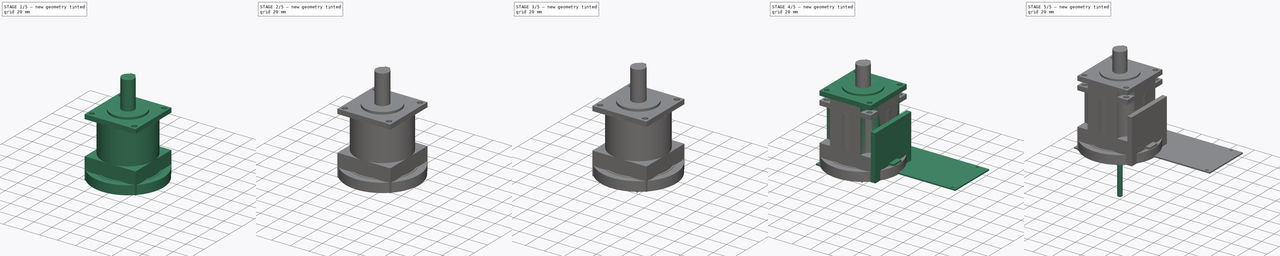
[diagram: build sequence overview — one tinted view per stage of 5, left to right]
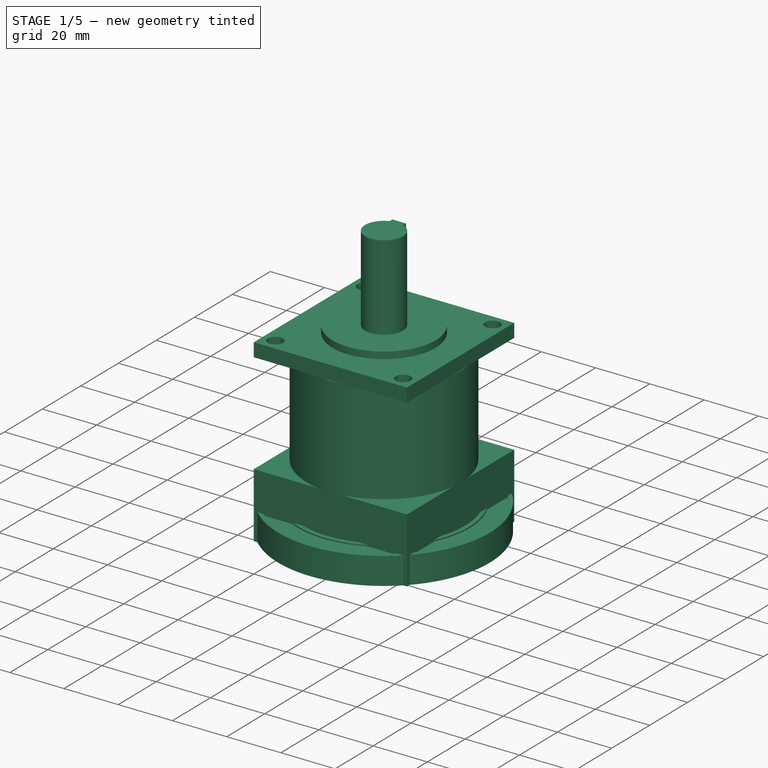
[diagram: stage 1 of 5 — iso view after this stage's code; geometry added in this stage tinted green]
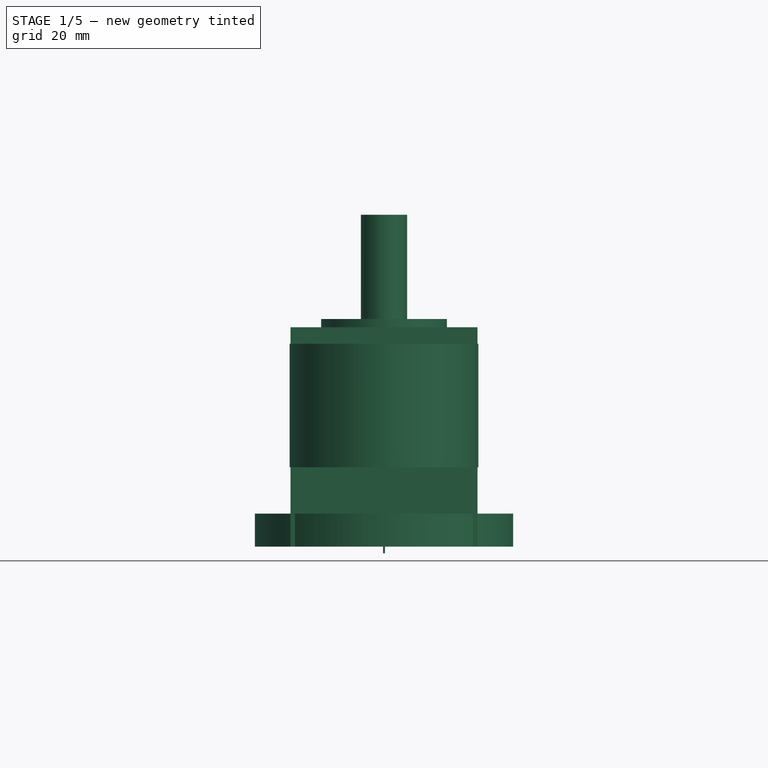
[diagram: stage 1 of 5 — front view after this stage's code; geometry added in this stage tinted green]
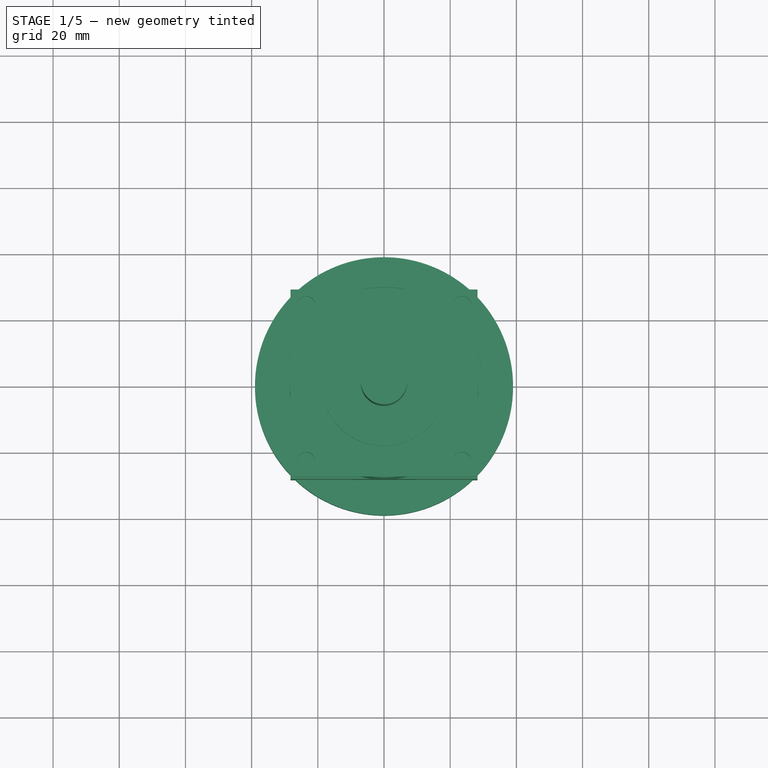
[diagram: stage 1 of 5 — top view after this stage's code; geometry added in this stage tinted green]
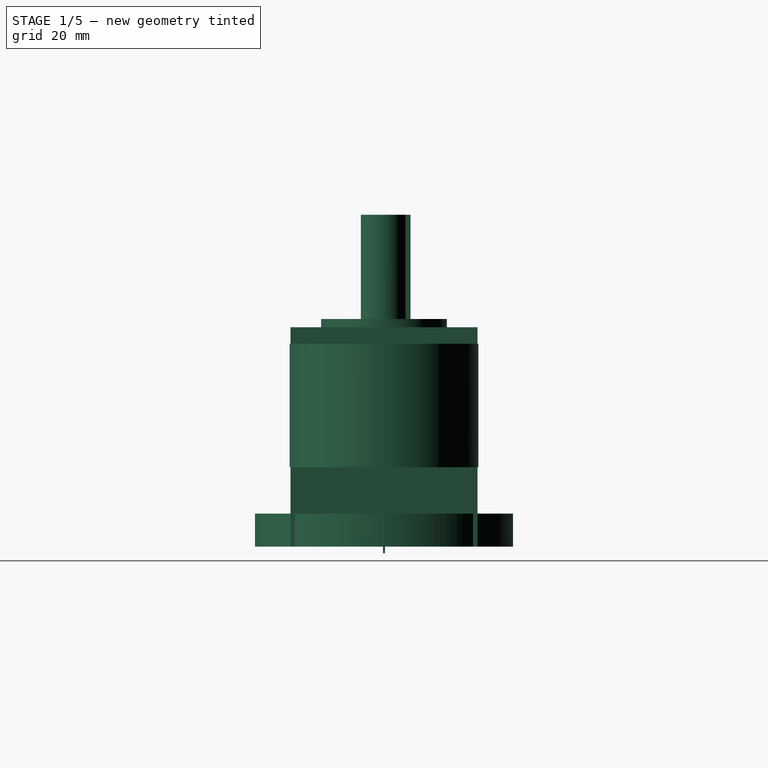
[diagram: stage 1 of 5 — right view after this stage's code; geometry added in this stage tinted green]
FCSTD DOCUMENT  (FreeCAD 0.21R33771 (Git))
Label: standard-parts
License: All rights reserved
LicenseURL: http://en.wikipedia.org/wiki/All_rights_reserved
objects: PartDesign::CoordinateSystem×139, Sketcher::SketchObject×83, PartDesign::Pad×81, PartDesign::Body×65, App::Part×64, Part::Feature×63, Part::Part2DObjectPython×36, App::DocumentObjectGroup×28, PartDesign::Pocket×27, Part::FeaturePython×21, PartDesign::LinearPattern×20, PartDesign::SubShapeBinder×16, PartDesign::Revolution×5, PartDesign::PolarPattern×3, PartDesign::MultiTransform×3, PartDesign::Hole×2, PartDesign::Mirrored×1, Spreadsheet::Sheet×1, App::FeaturePython×1
note: 680 computed .brp shape members not serialized (recipe doc carries the construction recipe); baked Part::Feature solids carry a one-line shape summary decoded from their .brp

FEATURE [PartDesign::CoordinateSystem] LCS_Nema17_22_Base  label="LCS_Nema17_20mm_Base"
  AttacherType = Attacher::AttachEngine3D
FEATURE [PartDesign::CoordinateSystem] LCS_Nema17_22mm_MountFace  label="LCS_Nema17_20mm_MountFace"
  AttacherType = Attacher::AttachEngine3D
  Placement = pos=(0,0,20) rot=(0,0,1;0rad)
  expr: .Placement.Base.z = <<S_Nema17_20mm_Side>>.Constraints.BodyHeight
FEATURE [PartDesign::CoordinateSystem] LCS_Nema17_22mm_ShaftTip  label="LCS_Nema17_20mm_ShaftTip"
  AttacherType = Attacher::AttachEngine3D
  Placement = pos=(0,0,40) rot=(0,0,1;0rad)
  expr: .Placement.Base.z = <<S_Nema17_20mm_Side>>.Constraints.BodyHeight + <<S_Nema17_20mm_Side>>.Constraints.CircleInset + <<S_Nema17_20mm_Side>>.Constraints.ShaftLength
FEATURE [PartDesign::CoordinateSystem] LCS_Nema17_22mm_Hole0  label="LCS_Nema17_20mm_Hole0"
  AttacherType = Attacher::AttachEngine3D
  Placement = pos=(15.5,15.5,20) rot=(0,0,1;0rad)
  expr: .Placement.Base.x = <<S_Nema17_Master_Holes>>.Constraints.HoleSeparation / 2
  expr: .Placement.Base.y = <<S_Nema17_Master_Holes>>.Constraints.HoleSeparation / 2
  expr: .Placement.Base.z = <<S_Nema17_20mm_Side>>.Constraints.BodyHeight
FEATURE [PartDesign::CoordinateSystem] LCS_Nema17_22mm_Hole001  label="LCS_Nema17_20mm_Hole1"
  AttacherType = Attacher::AttachEngine3D
  Placement = pos=(-15.5,15.5,20) rot=(0,0,1;0rad)
  expr: .Placement.Base.x = -<<S_Nema17_Master_Holes>>.Constraints.HoleSeparation / 2
  expr: .Placement.Base.y = <<S_Nema17_Master_Holes>>.Constraints.HoleSeparation / 2
  expr: .Placement.Base.z = <<S_Nema17_20mm_Side>>.Constraints.BodyHeight
FEATURE [PartDesign::CoordinateSystem] LCS_Nema17_22mm_Hole002  label="LCS_Nema17_20mm_Hole2"
  AttacherType = Attacher::AttachEngine3D
  Placement = pos=(15.5,-15.5,20) rot=(0,0,1;0rad)
  expr: .Placement.Base.x = <<S_Nema17_Master_Holes>>.Constraints.HoleSeparation / 2
  expr: .Placement.Base.y = -<<S_Nema17_Master_Holes>>.Constraints.HoleSeparation / 2
  expr: .Placement.Base.z = <<S_Nema17_20mm_Side>>.Constraints.BodyHeight
FEATURE [PartDesign::CoordinateSystem] LCS_Nema17_22mm_Hole003  label="LCS_Nema17_20mm_Hole3"
  AttacherType = Attacher::AttachEngine3D
  Placement = pos=(-15.5,-15.5,20) rot=(0,0,1;0rad)
  expr: .Placement.Base.x = -<<S_Nema17_Master_Holes>>.Constraints.HoleSeparation / 2
  expr: .Placement.Base.y = -<<S_Nema17_Master_Holes>>.Constraints.HoleSeparation / 2
  expr: .Placement.Base.z = <<S_Nema17_20mm_Side>>.Constraints.BodyHeight
FEATURE [PartDesign::CoordinateSystem] LCS_Nema17_42mm_Base  label="LCS_Nema17_33mm_Base"
  AttacherType = Attacher::AttachEngine3D
FEATURE [PartDesign::CoordinateSystem] LCS_Nema17_42mm_MountFace  label="LCS_Nema17_33mm_MountFace"
  AttacherType = Attacher::AttachEngine3D
  Placement = pos=(0,0,33) rot=(0,0,1;0rad)
  expr: .Placement.Base.z = <<S_Nema17_33mm_Side>>.Constraints.BodyHeight
FEATURE [PartDesign::CoordinateSystem] LCS_Nema17_42mm_ShaftTip  label="LCS_Nema17_33mm_ShaftTip"
  AttacherType = Attacher::AttachEngine3D
  Placement = pos=(0,0,53) rot=(0,0,1;0rad)
  expr: .Placement.Base.z = <<S_Nema17_33mm_Side>>.Constraints.BodyHeight + <<S_Nema17_33mm_Side>>.Constraints.CircleInset + <<S_Nema17_33mm_Side>>.Constraints.ShaftLength
FEATURE [PartDesign::CoordinateSystem] LCS_Nema17_42mm_Hole0  label="LCS_Nema17_33mm_Hole0"
  AttacherType = Attacher::AttachEngine3D
  Placement = pos=(15.5,15.5,33) rot=(0,0,1;0rad)
  expr: .Placement.Base.x = <<S_Nema17_Master_Holes>>.Constraints.HoleSeparation / 2
  expr: .Placement.Base.y = <<S_Nema17_Master_Holes>>.Constraints.HoleSeparation / 2
  expr: .Placement.Base.z = <<S_Nema17_33mm_Side>>.Constraints.BodyHeight
FEATURE [PartDesign::CoordinateSystem] LCS_Nema17_42mm_Hole1  label="LCS_Nema17_33mm_Hole1"
  AttacherType = Attacher::AttachEngine3D
  Placement = pos=(-15.5,15.5,33) rot=(0,0,1;0rad)
  expr: .Placement.Base.x = -<<S_Nema17_Master_Holes>>.Constraints.HoleSeparation / 2
  expr: .Placement.Base.y = <<S_Nema17_Master_Holes>>.Constraints.HoleSeparation / 2
  expr: .Placement.Base.z = <<S_Nema17_33mm_Side>>.Constraints.BodyHeight
FEATURE [PartDesign::CoordinateSystem] LCS_Nema17_42mm_Hole2  label="LCS_Nema17_33mm_Hole2"
  AttacherType = Attacher::AttachEngine3D
  Placement = pos=(15.5,-15.5,33) rot=(0,0,1;0rad)
  expr: .Placement.Base.x = <<S_Nema17_Master_Holes>>.Constraints.HoleSeparation / 2
  expr: .Placement.Base.y = -<<S_Nema17_Master_Holes>>.Constraints.HoleSeparation / 2
  expr: .Placement.Base.z = <<S_Nema17_33mm_Side>>.Constraints.BodyHeight
FEATURE [PartDesign::CoordinateSystem] LCS_Nema17_42mm_Hole003  label="LCS_Nema17_33mm_Hole3"
  AttacherType = Attacher::AttachEngine3D
  Placement = pos=(-15.5,-15.5,33) rot=(0,0,1;0rad)
  expr: .Placement.Base.x = -<<S_Nema17_Master_Holes>>.Constraints.HoleSeparation / 2
  expr: .Placement.Base.y = -<<S_Nema17_Master_Holes>>.Constraints.HoleSeparation / 2
  expr: .Placement.Base.z = <<S_Nema17_33mm_Side>>.Constraints.BodyHeight
FEATURE [Sketcher::SketchObject] Sketch  label="S_Bearing_78mm_60mm"
  FullyConstrained = true
  MapMode = 5
  Support = -> [XY_Plane008]
  sketch-geometry (2):
    g0: Circle CenterX=0 CenterY=0 CenterZ=0 NormalX=0 NormalY=0 NormalZ=1 AngleXU=0 Radius=30
    g1: Circle CenterX=0 CenterY=0 CenterZ=0 NormalX=0 NormalY=0 NormalZ=1 AngleXU=0 Radius=39
  constraints (4):
    c: Coincident(g0,g-1)
    c: Coincident(g1,g0)
    c: Diameter(g0) = 60
    c: Diameter(g1) = 78
FEATURE [Sketcher::SketchObject] Sketch008  label="S_Bearing_78mm_60mm_10mm_Groove_Top"
  AttachmentOffset = pos=(0,0,10) rot=(0,0,1;0rad)
  FullyConstrained = true
  MapMode = 5
  Placement = pos=(0,0,10) rot=(0,0,1;0rad)
  Support = -> [XY_Plane008]
  sketch-geometry (2):
    g0: Circle CenterX=0 CenterY=0 CenterZ=0 NormalX=0 NormalY=0 NormalZ=1 AngleXU=0 Radius=31.5
    g1: Circle CenterX=0 CenterY=0 CenterZ=0 NormalX=0 NormalY=0 NormalZ=1 AngleXU=0 Radius=37.5
  constraints (4):
    c: Coincident(g0,g-1)
    c: Coincident(g1,g0)
    c: Diameter(g0) = 63
    c: Diameter(g1) = 75
FEATURE [PartDesign::Pad] Pad006  label="PAD_Bearing_78mm_60mm_10mm"
  Direction = (0,0,1)
  Length = 10
  Length2 = 10
  Profile = -> Sketch
  ReferenceAxis = -> Sketch [N_Axis]
  Type = 0
FEATURE [PartDesign::Pocket] Pocket002  label="PAD_Bearing_78mm_60mm_10mm_Top"
  BaseFeature = -> Pad006
  Direction = (0,0,-1)
  Length = 0.5
  Length2 = 5
  Profile = -> Sketch008
  ReferenceAxis = -> Sketch008 [N_Axis]
  Type = 0
FEATURE [Sketcher::SketchObject] Sketch009  label="S_Bearing_78mm_60mm_10mm_Groove_Bottom"
  FullyConstrained = true
  MapMode = 5
  Support = -> [XY_Plane008]
  sketch-geometry (2):
    g0: Circle CenterX=0 CenterY=0 CenterZ=0 NormalX=0 NormalY=0 NormalZ=1 AngleXU=0 Radius=31.5
    g1: Circle CenterX=0 CenterY=0 CenterZ=0 NormalX=0 NormalY=0 NormalZ=1 AngleXU=0 Radius=37.5
  constraints (4):
    c: Coincident(g0,g-1)
    c: Coincident(g1,g0)
    c: Diameter(g0) = 63
    c: Diameter(g1) = 75
FEATURE [PartDesign::Pocket] Pocket003  label="PAD_Bearing_78mm_60mm_10mm_Bottom"
  BaseFeature = -> Pocket002
  Direction = (0,0,-1)
  Length = 0.5
  Length2 = 5
  Profile = -> Sketch009
  ReferenceAxis = -> Sketch009 [N_Axis]
  Reversed = true
  Type = 0
FEATURE [PartDesign::Body] Body  label="B_Bearing_60mm_78mm_10mm"
  Group = -> [Sketch,Sketch008,Pad006,Pocket002,Sketch009,Pocket003]
  Origin = -> Origin008
  Tip = -> Pocket003
FEATURE [PartDesign::CoordinateSystem] LCS_Bearing_78mm_60mm_Bottom  label="LCS_Bearing_60mm_78mm_10mm_Bottom"
  AttacherType = Attacher::AttachEngine3D
FEATURE [PartDesign::CoordinateSystem] LCS_Bearing_78mm_60mm_Top  label="LCS_Bearing_60mm_78mm_10mm_Top"
  AttacherType = Attacher::AttachEngine3D
  Placement = pos=(0,0,10) rot=(0,0,1;0rad)
FEATURE [PartDesign::CoordinateSystem] LCS_Bearing_78mm_60mm_Center  label="LCS_Bearing_60mm_78mm_10mm_Center"
  AttacherType = Attacher::AttachEngine3D
FEATURE [App::Part] Part002  label="P_Bearing_60mm_78mm_10mm"
  DrawingName = jrobot-3.FCStd
  Group = -> [Body,LCS_Bearing_78mm_60mm_Bottom,LCS_Bearing_78mm_60mm_Top,LCS_Bearing_78mm_60mm_Center]
  Origin = -> Origin007
  PartDescription = B_Bearing_60mm_78mm_10mm
  PartID = jrobot-3
FEATURE [PartDesign::CoordinateSystem] LCS_Bearing_78mm_60mm_Bottom001  label="LCS_Bearing_50mm_65mm_7mm_Bottom"
  AttacherType = Attacher::AttachEngine3D
FEATURE [PartDesign::CoordinateSystem] LCS_Bearing_78mm_60mm_Center001  label="LCS_Bearing_50mm_65mm_7mm_Center"
  AttacherType = Attacher::AttachEngine3D
  Placement = pos=(0,0,3.5) rot=(0,0,1;0rad)
FEATURE [PartDesign::CoordinateSystem] LCS_Bearing_78mm_60mm_Top001  label="LCS_Bearing_50mm_65mm_7mm_Top"
  AttacherType = Attacher::AttachEngine3D
  Placement = pos=(0,0,7) rot=(0,0,1;0rad)
FEATURE [Sketcher::SketchObject] Sketch010  label="S_Bearing_50mm_65mm_7mm"
  FullyConstrained = true
  MapMode = 5
  Support = -> [XY_Plane010]
  sketch-geometry (2):
    g0: Circle CenterX=0 CenterY=0 CenterZ=0 NormalX=0 NormalY=0 NormalZ=1 AngleXU=0 Radius=25
    g1: Circle CenterX=0 CenterY=0 CenterZ=0 NormalX=0 NormalY=0 NormalZ=1 AngleXU=0 Radius=32.5
  constraints (4):
    c: Coincident(g0,g-1)
    c: Coincident(g1,g0)
    c: Diameter(g0) = 50
    c: Diameter(g1) = 65
FEATURE [PartDesign::Pad] Pad007  label="PAD_Bearing_50mm_65mm_7mm"
  Direction = (0,0,1)
  Length = 7
  Length2 = 10
  Profile = -> Sketch010
  ReferenceAxis = -> Sketch010 [N_Axis]
  Type = 0
FEATURE [Sketcher::SketchObject] Sketch011  label="S_Bearing_50mm_65mm_7mm_Groove_Top"
  AttachmentOffset = pos=(0,0,7) rot=(0,0,1;0rad)
  FullyConstrained = true
  MapMode = 5
  Placement = pos=(0,0,7) rot=(0,0,1;0rad)
  Support = -> [XY_Plane010]
  sketch-geometry (2):
    g0: Circle CenterX=0 CenterY=0 CenterZ=0 NormalX=0 NormalY=0 NormalZ=1 AngleXU=0 Radius=26.5
    g1: Circle CenterX=0 CenterY=0 CenterZ=0 NormalX=0 NormalY=0 NormalZ=1 AngleXU=0 Radius=30.5
  constraints (4):
    c: Coincident(g0,g-1)
    c: Coincident(g1,g0)
    c: Diameter(g0) = 53
    c: Diameter(g1) = 61
FEATURE [PartDesign::Pocket] Pocket004  label="PAD_Bearing_50mm_65mm_7mm_Top"
  BaseFeature = -> Pad007
  Direction = (0,0,-1)
  Length = 0.5
  Length2 = 5
  Profile = -> Sketch011
  ReferenceAxis = -> Sketch011 [N_Axis]
  Type = 0
FEATURE [Sketcher::SketchObject] Sketch012  label="S_Bearing_50mm_65mm_7mm_Groove_Bottom"
  FullyConstrained = true
  MapMode = 5
  Support = -> [XY_Plane010]
  sketch-geometry (2):
    g0: Circle CenterX=0 CenterY=0 CenterZ=0 NormalX=0 NormalY=0 NormalZ=1 AngleXU=0 Radius=26.5
    g1: Circle CenterX=0 CenterY=0 CenterZ=0 NormalX=0 NormalY=0 NormalZ=1 AngleXU=0 Radius=31
  constraints (4):
    c: Coincident(g0,g-1)
    c: Coincident(g1,g0)
    c: Diameter(g0) = 53
    c: Diameter(g1) = 62
FEATURE [PartDesign::Pocket] Pocket005  label="PAD_Bearing_50mm_65mm_7mm_Bottom"
  BaseFeature = -> Pocket004
  Direction = (0,0,-1)
  Length = 0.5
  Length2 = 5
  Profile = -> Sketch012
  ReferenceAxis = -> Sketch012 [N_Axis]
  Reversed = true
  Type = 0
FEATURE [PartDesign::Body] Body003  label="B_Bearing_50mm_65mm_7mm"
  Group = -> [Sketch010,Sketch011,Pad007,Pocket004,Sketch012,Pocket005]
  Origin = -> Origin010
  Tip = -> Pocket005
FEATURE [App::Part] Part003  label="P_Bearing_50mm_65mm_7mm"
  DrawingName = standard-parts.FCStd
  Group = -> [Body003,LCS_Bearing_78mm_60mm_Bottom001,LCS_Bearing_78mm_60mm_Top001,LCS_Bearing_78mm_60mm_Center001]
  Origin = -> Origin009
  PartDescription = B_Bearing_50mm_65mm_7mm
  PartID = standard-parts
FEATURE [PartDesign::CoordinateSystem] LCS_Bearing_78mm_60mm_Bottom002  label="LCS_Bearing_17mm_26mm_5mm_Bottom"
  AttacherType = Attacher::AttachEngine3D
FEATURE [PartDesign::CoordinateSystem] LCS_Bearing_78mm_60mm_Center002  label="LCS_Bearing_17mm_26mm_5mm_Center"
  AttacherType = Attacher::AttachEngine3D
  Placement = pos=(0,0,2.5) rot=(0,0,1;0rad)
FEATURE [PartDesign::CoordinateSystem] LCS_Bearing_78mm_60mm_Top002  label="LCS_Bearing_17mm_26mm_5mm_Top"
  AttacherType = Attacher::AttachEngine3D
  Placement = pos=(0,0,5) rot=(0,0,1;0rad)
FEATURE [Sketcher::SketchObject] Sketch013  label="S_Bearing_17mm_26mm_5mm"
  FullyConstrained = true
  MapMode = 5
  Support = -> [XY_Plane012]
  sketch-geometry (2):
    g0: Circle CenterX=0 CenterY=0 CenterZ=0 NormalX=0 NormalY=0 NormalZ=1 AngleXU=0 Radius=8.5
    g1: Circle CenterX=0 CenterY=0 CenterZ=0 NormalX=0 NormalY=0 NormalZ=1 AngleXU=0 Radius=13
  constraints (4):
    c: Coincident(g0,g-1)
    c: Coincident(g1,g0)
    c: Diameter(g0) = 17
    c: Diameter(g1) = 26
FEATURE [PartDesign::Pad] Pad008  label="PAD_Bearing_17mm_26mm_5mm"
  Direction = (0,0,1)
  Length = 5
  Length2 = 10
  Profile = -> Sketch013
  ReferenceAxis = -> Sketch013 [N_Axis]
  Type = 0
FEATURE [Sketcher::SketchObject] Sketch014  label="S_Bearing_17mm_26mm_5mm_Groove_Top"
  AttachmentOffset = pos=(0,0,5) rot=(0,0,1;0rad)
  FullyConstrained = true
  MapMode = 5
  Placement = pos=(0,0,5) rot=(0,0,1;0rad)
  Support = -> [XY_Plane012]
  sketch-geometry (2):
    g0: Circle CenterX=0 CenterY=0 CenterZ=0 NormalX=0 NormalY=0 NormalZ=1 AngleXU=0 Radius=9.5
    g1: Circle CenterX=0 CenterY=0 CenterZ=0 NormalX=0 NormalY=0 NormalZ=1 AngleXU=0 Radius=12
  constraints (4):
    c: Coincident(g0,g-1)
    c: Coincident(g1,g0)
    c: Diameter(g0) = 19
    c: Diameter(g1) = 24
FEATURE [PartDesign::Pocket] Pocket006  label="PAD_Bearing_17mm_26mm_5mm_Top"
  BaseFeature = -> Pad008
  Direction = (0,0,-1)
  Length = 0.5
  Length2 = 5
  Profile = -> Sketch014
  ReferenceAxis = -> Sketch014 [N_Axis]
  Type = 0
FEATURE [Sketcher::SketchObject] Sketch015  label="S_Bearing_17mm_26mm_5mm_Groove_Bottom"
  FullyConstrained = true
  MapMode = 5
  Support = -> [XY_Plane012]
  sketch-geometry (2):
    g0: Circle CenterX=0 CenterY=0 CenterZ=0 NormalX=0 NormalY=0 NormalZ=1 AngleXU=0 Radius=9.5
    g1: Circle CenterX=0 CenterY=0 CenterZ=0 NormalX=0 NormalY=0 NormalZ=1 AngleXU=0 Radius=12
  constraints (4):
    c: Coincident(g0,g-1)
    c: Coincident(g1,g0)
    c: Diameter(g0) = 19
    c: Diameter(g1) = 24
FEATURE [PartDesign::Pocket] Pocket007  label="PAD_Bearing_17mm_26mm_5mm_Bottom"
  BaseFeature = -> Pocket006
  Direction = (0,0,-1)
  Length = 0.5
  Length2 = 5
  Profile = -> Sketch015
  ReferenceAxis = -> Sketch015 [N_Axis]
  Reversed = true
  Type = 0
FEATURE [PartDesign::Body] Body004  label="B_Bearing_17mm_26mm_5mm"
  Group = -> [Sketch013,Sketch014,Pad008,Pocket006,Sketch015,Pocket007]
  Origin = -> Origin012
  Tip = -> Pocket007
FEATURE [App::Part] Part004  label="P_Bearing_17mm_26mm_5mm"
  DrawingName = jrobot-3.FCStd
  Group = -> [Body004,LCS_Bearing_78mm_60mm_Bottom002,LCS_Bearing_78mm_60mm_Top002,LCS_Bearing_78mm_60mm_Center002]
  Origin = -> Origin011
  PartDescription = B_Bearing_17mm_26mm_5mm
  PartID = jrobot-3
FEATURE [PartDesign::CoordinateSystem] LCS_Bearing_78mm_60mm_Bottom003  label="LCS_Bearing_8mm_16mm_4mm_Bottom"
  AttacherType = Attacher::AttachEngine3D
FEATURE [PartDesign::CoordinateSystem] LCS_Bearing_78mm_60mm_Center003  label="LCS_Bearing_8mm_16mm_4mm_Center"
  AttacherType = Attacher::AttachEngine3D
  Placement = pos=(0,0,2) rot=(0,0,1;0rad)
FEATURE [PartDesign::CoordinateSystem] LCS_Bearing_78mm_60mm_Top003  label="LCS_Bearing_8mm_16mm_4mm_Top"
  AttacherType = Attacher::AttachEngine3D
  Placement = pos=(0,0,4) rot=(0,0,1;0rad)
FEATURE [Sketcher::SketchObject] Sketch016  label="S_Bearing_8mm_16mm_4mm"
  FullyConstrained = true
  MapMode = 5
  Support = -> [XY_Plane014]
  sketch-geometry (2):
    g0: Circle CenterX=0 CenterY=0 CenterZ=0 NormalX=0 NormalY=0 NormalZ=1 AngleXU=0 Radius=4
    g1: Circle CenterX=0 CenterY=0 CenterZ=0 NormalX=0 NormalY=0 NormalZ=1 AngleXU=0 Radius=8
  constraints (4):
    c: Coincident(g0,g-1)
    c: Coincident(g1,g0)
    c: Diameter(g0) = 8
    c: Diameter(g1) = 16
FEATURE [PartDesign::Pad] Pad009  label="PAD_Bearing_8mm_16mm_4mm"
  Direction = (0,0,1)
  Length = 4
  Length2 = 10
  Profile = -> Sketch016
  ReferenceAxis = -> Sketch016 [N_Axis]
  Type = 0
FEATURE [Sketcher::SketchObject] Sketch017  label="S_Bearing_8mm_16mm_4mm_Groove_Top"
  AttachmentOffset = pos=(0,0,4) rot=(0,0,1;0rad)
  FullyConstrained = true
  MapMode = 5
  Placement = pos=(0,0,4) rot=(0,0,1;0rad)
  Support = -> [XY_Plane014]
  sketch-geometry (2):
    g0: Circle CenterX=0 CenterY=0 CenterZ=0 NormalX=0 NormalY=0 NormalZ=1 AngleXU=0 Radius=5
    g1: Circle CenterX=0 CenterY=0 CenterZ=0 NormalX=0 NormalY=0 NormalZ=1 AngleXU=0 Radius=7
  constraints (4):
    c: Coincident(g0,g-1)
    c: Coincident(g1,g0)
    c: Diameter(g0) = 10
    c: Diameter(g1) = 14
FEATURE [PartDesign::Pocket] Pocket008  label="PAD_Bearing_8mm_16mm_4mm_Top"
  BaseFeature = -> Pad009
  Direction = (0,0,-1)
  Length = 0.5
  Length2 = 5
  Profile = -> Sketch017
  ReferenceAxis = -> Sketch017 [N_Axis]
  Type = 0
FEATURE [Sketcher::SketchObject] Sketch018  label="S_Bearing_8mm_16mm_4mm_Groove_Bottom"
  FullyConstrained = true
  MapMode = 5
  Support = -> [XY_Plane014]
  sketch-geometry (2):
    g0: Circle CenterX=0 CenterY=0 CenterZ=0 NormalX=0 NormalY=0 NormalZ=1 AngleXU=0 Radius=16
    g1: Circle CenterX=0 CenterY=0 CenterZ=0 NormalX=0 NormalY=0 NormalZ=1 AngleXU=0 Radius=20
  constraints (4):
    c: Coincident(g0,g-1)
    c: Coincident(g1,g0)
    c: Diameter(g0) = 32
    c: Diameter(g1) = 40
FEATURE [PartDesign::Pocket] Pocket009  label="PAD_Bearing_8mm_16mm_4mm_Bottom"
  BaseFeature = -> Pocket008
  Direction = (0,0,-1)
  Length = 0.5
  Length2 = 5
  Profile = -> Sketch018
  ReferenceAxis = -> Sketch018 [N_Axis]
  Reversed = true
  Type = 0
FEATURE [PartDesign::Body] Body005  label="B_Bearing_8mm_16mm_4mm"
  Group = -> [Sketch016,Sketch017,Pad009,Pocket008,Sketch018,Pocket009]
  Origin = -> Origin014
  Tip = -> Pocket009
FEATURE [App::Part] Part005  label="P_Bearing_8mm_16mm_4mm"
  DrawingName = jrobot-3.FCStd
  Group = -> [Body005,LCS_Bearing_78mm_60mm_Bottom003,LCS_Bearing_78mm_60mm_Top003,LCS_Bearing_78mm_60mm_Center003]
  Origin = -> Origin013
  PartDescription = B_Bearing_8mm_16mm_4mm
  PartID = jrobot-3
FEATURE [PartDesign::CoordinateSystem] LCS_Bearing_78mm_60mm_Bottom004  label="LCS_Bearing_5mm_16mm_5mm_Bottom"
  AttacherType = Attacher::AttachEngine3D
FEATURE [PartDesign::CoordinateSystem] LCS_Bearing_78mm_60mm_Center004  label="LCS_Bearing_5mm_16mm_5mm_Center"
  AttacherType = Attacher::AttachEngine3D
  Placement = pos=(0,0,2.5) rot=(0,0,1;0rad)
FEATURE [PartDesign::CoordinateSystem] LCS_Bearing_78mm_60mm_Top004  label="LCS_Bearing_5mm_16mm_5mm_Top"
  AttacherType = Attacher::AttachEngine3D
  Placement = pos=(0,0,5) rot=(0,0,1;0rad)
FEATURE [Sketcher::SketchObject] Sketch019  label="S_Bearing_5mm_16mm_5mm"
  FullyConstrained = true
  MapMode = 5
  Support = -> [XY_Plane016]
  sketch-geometry (2):
    g0: Circle CenterX=0 CenterY=0 CenterZ=0 NormalX=0 NormalY=0 NormalZ=1 AngleXU=0 Radius=2.5
    g1: Circle CenterX=0 CenterY=0 CenterZ=0 NormalX=0 NormalY=0 NormalZ=1 AngleXU=0 Radius=8
  constraints (4):
    c: Coincident(g0,g-1)
    c: Coincident(g1,g0)
    c: Diameter(g0) = 5
    c: Diameter(g1) = 16
FEATURE [PartDesign::Pad] Pad010  label="PAD_Bearing_5mm_16mm_5mm"
  Direction = (0,0,1)
  Length = 5
  Length2 = 10
  Profile = -> Sketch019
  ReferenceAxis = -> Sketch019 [N_Axis]
  Type = 0
FEATURE [Sketcher::SketchObject] Sketch020  label="S_Bearing_5mm_16mm_5mm_Groove_Top"
  AttachmentOffset = pos=(0,0,5) rot=(0,0,1;0rad)
  FullyConstrained = true
  MapMode = 5
  Placement = pos=(0,0,5) rot=(0,0,1;0rad)
  Support = -> [XY_Plane016]
  sketch-geometry (2):
    g0: Circle CenterX=0 CenterY=0 CenterZ=0 NormalX=0 NormalY=0 NormalZ=1 AngleXU=0 Radius=3.5
    g1: Circle CenterX=0 CenterY=0 CenterZ=0 NormalX=0 NormalY=0 NormalZ=1 AngleXU=0 Radius=7
  constraints (4):
    c: Coincident(g0,g-1)
    c: Coincident(g1,g0)
    c: Diameter(g0) = 7
    c: Diameter(g1) = 14
FEATURE [PartDesign::Pocket] Pocket010  label="PAD_Bearing_5mm_16mm_5mm_Top"
  BaseFeature = -> Pad010
  Direction = (0,0,-1)
  Length = 0.5
  Length2 = 5
  Profile = -> Sketch020
  ReferenceAxis = -> Sketch020 [N_Axis]
  Type = 0
FEATURE [Sketcher::SketchObject] Sketch021  label="S_Bearing_5mm_16mm_5mm_Groove_Bottom"
  FullyConstrained = true
  MapMode = 5
  Support = -> [XY_Plane016]
  sketch-geometry (2):
    g0: Circle CenterX=0 CenterY=0 CenterZ=0 NormalX=0 NormalY=0 NormalZ=1 AngleXU=0 Radius=3.5
    g1: Circle CenterX=0 CenterY=0 CenterZ=0 NormalX=0 NormalY=0 NormalZ=1 AngleXU=0 Radius=7
  constraints (4):
    c: Coincident(g0,g-1)
    c: Coincident(g1,g0)
    c: Diameter(g0) = 7
    c: Diameter(g1) = 14
FEATURE [PartDesign::Pocket] Pocket011  label="PAD_Bearing_5mm_16mm_5mm_Bottom"
  BaseFeature = -> Pocket010
  Direction = (0,0,-1)
  Length = 0.5
  Length2 = 5
  Profile = -> Sketch021
  ReferenceAxis = -> Sketch021 [N_Axis]
  Reversed = true
  Type = 0
FEATURE [PartDesign::Body] Body006  label="B_Bearing_5mm_16mm_5mm"
  Group = -> [Sketch019,Sketch020,Pad010,Pocket010,Sketch021,Pocket011]
  Origin = -> Origin016
  Tip = -> Pocket011
FEATURE [App::Part] Part006  label="P_Bearing_5mm_16mm_5mm"
  DrawingName = standard-parts.FCStd
  Group = -> [Body006,LCS_Bearing_78mm_60mm_Bottom004,LCS_Bearing_78mm_60mm_Top004,LCS_Bearing_78mm_60mm_Center004]
  Origin = -> Origin015
  PartDescription = B_Bearing_5mm_16mm_5mm
  PartID = standard-parts
FEATURE [PartDesign::CoordinateSystem] LCS_Bearing_78mm_60mm_Bottom005  label="LCS_Bearing_30mm_42mm_7mm_Bottom"
  AttacherType = Attacher::AttachEngine3D
FEATURE [PartDesign::CoordinateSystem] LCS_Bearing_78mm_60mm_Center005  label="LCS_Bearing_30mm_42mm_7mm_Center"
  AttacherType = Attacher::AttachEngine3D
  Placement = pos=(0,0,3.5) rot=(0,0,1;0rad)
FEATURE [PartDesign::CoordinateSystem] LCS_Bearing_78mm_60mm_Top005  label="LCS_Bearing_30mm_42mm_7mm_Top"
  AttacherType = Attacher::AttachEngine3D
  Placement = pos=(0,0,7) rot=(0,0,1;0rad)
FEATURE [Sketcher::SketchObject] Sketch022  label="S_Bearing_30mm_42mm_7mm"
  FullyConstrained = true
  MapMode = 5
  Support = -> [XY_Plane018]
  sketch-geometry (2):
    g0: Circle CenterX=0 CenterY=0 CenterZ=0 NormalX=0 NormalY=0 NormalZ=1 AngleXU=0 Radius=15
    g1: Circle CenterX=0 CenterY=0 CenterZ=0 NormalX=0 NormalY=0 NormalZ=1 AngleXU=0 Radius=21
  constraints (4):
    c: Coincident(g0,g-1)
    c: Coincident(g1,g0)
    c: Diameter(g0) = 30
    c: Diameter(g1) = 42
FEATURE [PartDesign::Pad] Pad011  label="PAD_Bearing_30mm_42mm_7mm"
  Direction = (0,0,1)
  Length = 7
  Length2 = 10
  Profile = -> Sketch022
  ReferenceAxis = -> Sketch022 [N_Axis]
  Type = 0
FEATURE [Sketcher::SketchObject] Sketch023  label="S_Bearing_30mm_42mm_7mm_Groove_Top"
  AttachmentOffset = pos=(0,0,7) rot=(0,0,1;0rad)
  FullyConstrained = true
  MapMode = 5
  Placement = pos=(0,0,7) rot=(0,0,1;0rad)
  Support = -> [XY_Plane018]
  sketch-geometry (2):
    g0: Circle CenterX=0 CenterY=0 CenterZ=0 NormalX=0 NormalY=0 NormalZ=1 AngleXU=0 Radius=16
    g1: Circle CenterX=0 CenterY=0 CenterZ=0 NormalX=0 NormalY=0 NormalZ=1 AngleXU=0 Radius=20
  constraints (4):
    c: Coincident(g0,g-1)
    c: Coincident(g1,g0)
    c: Diameter(g0) = 32
    c: Diameter(g1) = 40
FEATURE [PartDesign::Pocket] Pocket012  label="PAD_Bearing_30mm_42mm_7mm_Top"
  BaseFeature = -> Pad011
  Direction = (0,0,-1)
  Length = 0.5
  Length2 = 5
  Profile = -> Sketch023
  ReferenceAxis = -> Sketch023 [N_Axis]
  Type = 0
FEATURE [Sketcher::SketchObject] Sketch024  label="S_Bearing_30mm_42mm_7mm_Groove_Bottom"
  FullyConstrained = true
  MapMode = 5
  Support = -> [XY_Plane018]
  sketch-geometry (2):
    g0: Circle CenterX=0 CenterY=0 CenterZ=0 NormalX=0 NormalY=0 NormalZ=1 AngleXU=0 Radius=16
    g1: Circle CenterX=0 CenterY=0 CenterZ=0 NormalX=0 NormalY=0 NormalZ=1 AngleXU=0 Radius=20
  constraints (4):
    c: Coincident(g0,g-1)
    c: Coincident(g1,g0)
    c: Diameter(g0) = 32
    c: Diameter(g1) = 40
FEATURE [PartDesign::Pocket] Pocket013  label="PAD_Bearing_30mm_42mm_7mm_Bottom"
  BaseFeature = -> Pocket012
  Direction = (0,0,-1)
  Length = 0.5
  Length2 = 5
  Profile = -> Sketch024
  ReferenceAxis = -> Sketch024 [N_Axis]
  Reversed = true
  Type = 0
FEATURE [PartDesign::Body] Body010  label="B_Belt_Sprocket_GT2_6mm_5mm"
  Group = -> [Sketch029,Sketch031,Revolution002,Pad014,PolarPattern,Sketch032,Pad015]
  Origin = -> Origin024
  Tip = -> Pad015
FEATURE [App::Part] Part011  label="P_Belt_Sprocket_GT2_6mm_5mm"
  DrawingName = standard-parts.FCStd
  Group = -> [Body010,LCS_Belt_Sprocket_GT2_6mm_5mm,LCS_Belt_Sprocket_GT2_6mm_5mm_Top,LCS_Belt_Sprocket_GT2_6mm_5mm_Center]
  Origin = -> Origin025
  PartDescription = B_Belt_Sprocket_GT2_6mm_5mm
  PartID = standard-parts
FEATURE [PartDesign::CoordinateSystem] LCS_Bearing_78mm_60mm_Bottom006  label="LCS_Bearing_6mm_13mm_3.5mm_Bottom"
  AttacherType = Attacher::AttachEngine3D
FEATURE [PartDesign::CoordinateSystem] LCS_Bearing_78mm_60mm_Center006  label="LCS_Bearing_6mm_13mm_3.5mm_Center"
  AttacherType = Attacher::AttachEngine3D
  Placement = pos=(0,0,1.75) rot=(0,0,1;0rad)
FEATURE [PartDesign::CoordinateSystem] LCS_Bearing_78mm_60mm_Top006  label="LCS_Bearing_6mm_13mm_3.5mm_Top"
  AttacherType = Attacher::AttachEngine3D
  Placement = pos=(0,0,3.5) rot=(0,0,1;0rad)
FEATURE [Sketcher::SketchObject] Sketch048  label="S_Bearing_6mm_13mm_3.5mm"
  FullyConstrained = true
  MapMode = 5
  Support = -> [XY_Plane031]
  sketch-geometry (2):
    g0: Circle CenterX=0 CenterY=0 CenterZ=0 NormalX=0 NormalY=0 NormalZ=1 AngleXU=0 Radius=3
    g1: Circle CenterX=0 CenterY=0 CenterZ=0 NormalX=0 NormalY=0 NormalZ=1 AngleXU=0 Radius=6.5
  constraints (4):
    c: Coincident(g0,g-1)
    c: Coincident(g1,g0)
    c: Diameter(g0) = 6
    c: Diameter(g1) = 13
FEATURE [PartDesign::Pad] Pad021  label="PAD_Bearing_6mm_13mm_3.5mm"
  Direction = (0,0,1)
  Length = 3.5
  Length2 = 10
  Profile = -> Sketch048
  ReferenceAxis = -> Sketch048 [N_Axis]
  Type = 0
FEATURE [Sketcher::SketchObject] Sketch049  label="S_Bearing_6mm_13mm_3.5mm_Groove_Top"
  AttachmentOffset = pos=(0,0,3.5) rot=(0,0,1;0rad)
  FullyConstrained = true
  MapMode = 5
  Placement = pos=(0,0,3.5) rot=(0,0,1;0rad)
  Support = -> [XY_Plane031]
  sketch-geometry (2):
    g0: Circle CenterX=0 CenterY=0 CenterZ=0 NormalX=0 NormalY=0 NormalZ=1 AngleXU=0 Radius=4
    g1: Circle CenterX=0 CenterY=0 CenterZ=0 NormalX=0 NormalY=0 NormalZ=1 AngleXU=0 Radius=5.5
  constraints (4):
    c: Coincident(g0,g-1)
    c: Coincident(g1,g0)
    c: Diameter(g0) = 8
    c: Diameter(g1) = 11
FEATURE [PartDesign::Pocket] Pocket027  label="PAD_Bearing_6mm_13mm_3.5mm_Top"
  BaseFeature = -> Pad021
  Direction = (0,0,-1)
  Length = 0.5
  Length2 = 5
  Profile = -> Sketch049
  ReferenceAxis = -> Sketch049 [N_Axis]
  Type = 0
FEATURE [Sketcher::SketchObject] Sketch050  label="S_Bearing_6mm_13mm_3.5mm_Groove_Bottom"
  FullyConstrained = true
  MapMode = 5
  Support = -> [XY_Plane031]
  sketch-geometry (2):
    g0: Circle CenterX=0 CenterY=0 CenterZ=0 NormalX=0 NormalY=0 NormalZ=1 AngleXU=0 Radius=4
    g1: Circle CenterX=0 CenterY=0 CenterZ=0 NormalX=0 NormalY=0 NormalZ=1 AngleXU=0 Radius=5.5
  constraints (4):
    c: Coincident(g0,g-1)
    c: Coincident(g1,g0)
    c: Diameter(g0) = 8
    c: Diameter(g1) = 11
FEATURE [PartDesign::Pocket] Pocket028  label="PAD_Bearing_6mm_13mm_3.5mm_Bottom"
  BaseFeature = -> Pocket027
  Direction = (0,0,-1)
  Length = 0.5
  Length2 = 5
  Profile = -> Sketch050
  ReferenceAxis = -> Sketch050 [N_Axis]
  Reversed = true
  Type = 0
FEATURE [PartDesign::Body] Body065  label="B_Dupont_MalePCB_2pin"
  Group = -> [Clone2D026,Clone2D027,Pad077,Pad078,LinearPattern017]
  Origin = -> Origin140
  Tip = -> LinearPattern017
FEATURE [App::Part] Part066  label="P_Dupont_MalePCB_2pin"
  DrawingName = standard-parts.FCStd
  Group = -> [Body065,LCS_Dupont_MalePCB_3pin_Origin005,LCS_Dupont_MalePCB_3pin_Top005]
  Origin = -> Origin139
  PartDescription = B_Dupont_MalePCB_2pin
  PartID = standard-parts
FEATURE [Part::Part2DObjectPython] Clone2D028  label="S_Dupont_MalePCB_18x2pin_Body"  # Draft 2D object (typed FeaturePython)
  Fuse = false
  Objects = -> [S_Dupont_Body]
  Scale = (1,1,1)
FEATURE [Part::Part2DObjectPython] Clone2D029  label="S_Dupont_MalePCB_18x2pin_Pin"  # Draft 2D object (typed FeaturePython)
  Fuse = false
  Objects = -> [S_Dupont_Pin]
  Placement = pos=(0,0,-2) rot=(0,0,1;0rad)
  Scale = (1,1,1)
  expr: .Placement.Base.z = -<<S_Dupont_Profile>>.Constraints.PinDescender
FEATURE [PartDesign::CoordinateSystem] LCS_Dupont_MalePCB_3pin_Origin006  label="LCS_Dupont_MalePCB_18x2pin_Origin"
  AttacherType = Attacher::AttachEngine3D
  Placement = pos=(-1.25,-1.25,0) rot=(0,0,1;0rad)
  expr: .Placement.Base.x = -<<S_Dupont_Body>>.Constraints.PinSpacing / 2
  expr: .Placement.Base.y = -<<S_Dupont_Body>>.Constraints.PinSpacing / 2
FEATURE [PartDesign::CoordinateSystem] LCS_Dupont_MalePCB_3pin_Top006  label="LCS_Dupont_MalePCB_18x2pin_Top"
  AttacherType = Attacher::AttachEngine3D
  Placement = pos=(-1.25,-1.25,3) rot=(0,0,1;0rad)
  expr: .Placement.Base.x = -<<S_Dupont_Body>>.Constraints.PinSpacing / 2
  expr: .Placement.Base.y = -<<S_Dupont_Body>>.Constraints.PinSpacing / 2
  expr: .Placement.Base.z = <<S_Dupont_Profile>>.Constraints.PCBHeight
FEATURE [PartDesign::Pad] Pad079  label="PAD_Dupont_MalePCB_18x2pin_Body"
  Direction = (0,0,1)
  Length = 3
  Length2 = 10
  Profile = -> Clone2D028
  ReferenceAxis = -> Clone2D028 [N_Axis]
  Type = 0
  expr: Length = <<S_Dupont_Profile>>.Constraints.PCBHeight
FEATURE [PartDesign::Pad] Pad080  label="PAD_Dupont_MalePCB_18x2pin_Pin"
  BaseFeature = -> Pad079
  Direction = (0,0,1)
  Length = 11.5
  Length2 = 10
  Profile = -> Clone2D029
  ReferenceAxis = -> Clone2D029 [N_Axis]
  Type = 0
  expr: Length = <<S_Dupont_Profile>>.Constraints.PCBHeight + <<S_Dupont_Profile>>.Constraints.PinHeight + <<S_Dupont_Profile>>.Constraints.PinDescender
FEATURE [PartDesign::Body] Body066  label="B_Dupont_MalePCB_18x2pin"
  Group = -> [Clone2D028,Clone2D029,Pad079,Pad080,MultiTransform002,LinearPattern018,LinearPattern019]
  Origin = -> Origin142
  Tip = -> MultiTransform002
FEATURE [App::Part] Part067  label="P_Dupont_MalePCB_18x2pin"
  DrawingName = standard-parts.FCStd
  Group = -> [Body066,LCS_Dupont_MalePCB_3pin_Origin006,LCS_Dupont_MalePCB_3pin_Top006]
  Origin = -> Origin141
  PartDescription = B_Dupont_MalePCB_18x2pin
  PartID = standard-parts
FEATURE [App::DocumentObjectGroup] PCB
  Group = -> [Part066,Part051,Part058,Part059,Part062,Part063,Part067]
FEATURE [App::DocumentObjectGroup] Group028  label="Dupont"
  Group = -> [Group029,Group030,Male,PCB]
FEATURE [App::DocumentObjectGroup] Group026  label="Connectors"
  Group = -> [Part043,Part014,Part044,Group028,USB]
FEATURE [App::DocumentObjectGroup] Group016  label="Electronics"
  Group = -> [Group025,Group026,Group027]
FEATURE [Part::Part2DObjectPython] Clone2D030  label="S_Nema23_Gearbox_FLF57_Base"  # Draft 2D object (typed FeaturePython)
  Fuse = false
  Objects = -> [Sketch055]
  Scale = (1,1,1)
FEATURE [PartDesign::Pad] Pad081  label="PAD_Nema23_Gearbox_FLF57_Base"
  Direction = (0,0,1)
  Length = 24
  Length2 = 10
  Profile = -> Clone2D030
  ReferenceAxis = -> Clone2D030 [N_Axis]
  Type = 0
  expr: Length = <<S_Nema23_Gearbox_FLF57_Profile>>.Constraints.BaseHeight
FEATURE [Sketcher::SketchObject] Sketch090  label="S_Nema23_Gearbox_FLF57_Cylinder"
  AttachmentOffset = pos=(0,0,24) rot=(0,0,1;0rad)
  FullyConstrained = true
  MapMode = 5
  Placement = pos=(0,0,24) rot=(0,0,1;0rad)
  Support = -> [XY_Plane145]
  expr: .AttachmentOffset.Base.z = <<S_Nema23_Gearbox_FLF57_Profile>>.Constraints.BaseHeight
  sketch-geometry (1):
    g0: Circle CenterX=0 CenterY=0 CenterZ=0 NormalX=0 NormalY=0 NormalZ=1 AngleXU=0 Radius=28.5
  constraints (2):
    c: Coincident(g0,g-1)
    c: Diameter(g0) = 57
FEATURE [PartDesign::Pad] Pad082  label="PAD_Nema23_Gearbox_FLF57_Cylinder"
  BaseFeature = -> Pad081
  Direction = (0,0,1)
  Length = 37.3
  Length2 = 10
  Profile = -> Sketch090
  ReferenceAxis = -> Sketch090 [N_Axis]
  Type = 0
  expr: Length = <<S_Nema23_Gearbox_FLF57_Profile>>.Constraints.CylinderHeight
FEATURE [Sketcher::SketchObject] Sketch091  label="S_Nema23_Gearbox_FLF57_Profile"
  FullyConstrained = true
  MapMode = 5
  Placement = pos=(0,0,0) rot=(1,0,0;1.5708rad)
  Support = -> [XZ_Plane144]
  sketch-geometry (5):
    g0: LineSegment StartX=0 StartY=0 StartZ=0 EndX=0 EndY=24 EndZ=0
    g1: LineSegment StartX=0 StartY=24 StartZ=0 EndX=0 EndY=61.3 EndZ=0
    g2: LineSegment StartX=0 StartY=61.3 StartZ=0 EndX=0 EndY=66.3 EndZ=0
    g3: LineSegment StartX=0 StartY=66.3 StartZ=0 EndX=0 EndY=68.8 EndZ=0
    g4: LineSegment StartX=0 StartY=68.8 StartZ=0 EndX=0 EndY=100.3 EndZ=0
  constraints (17):
    c: Coincident(g0,g-1)
    c: PointOnObject(g0,g-2)
    c: Coincident(g1,g0)
    c: PointOnObject(g1,g-2)
    c: Coincident(g2,g1)
    c: PointOnObject(g2,g-2)
    c: Coincident(g3,g2)
    c: PointOnObject(g3,g-2)
    c: Coincident(g4,g3)
    c: PointOnObject(g4,g-2)
    c: DistanceY(g0,g0) = 24  'BaseHeight'
    c: DistanceY(g4,g4) = 31.5  'ShaftLength'
    c: DistanceY(g3,g3) = 2.5  'ShaftOffset'
    c: DistanceY(g0,g2) = 66.3  'TotalHeight'
    c: DistanceY(g2,g2) = 5  'TopHeight'
    c: DistanceY(g1,g1) = 37.3  'CylinderHeight'
    c: DistanceY(g2,g4) = 34
FEATURE [Part::Part2DObjectPython] Clone2D031  label="S_Nema23_Gearbox_FLF57_Top"  # Draft 2D object (typed FeaturePython)
  Fuse = false
  Objects = -> [Sketch055]
  Placement = pos=(0,0,61.3) rot=(0,0,1;0rad)
  Scale = (1,1,1)
  expr: .Placement.Base.z = <<S_Nema23_Gearbox_FLF57_Profile>>.Constraints.BaseHeight + <<S_Nema23_Gearbox_FLF57_Profile>>.Constraints.CylinderHeight
FEATURE [PartDesign::Pad] Pad083  label="PAD_Nema23_Gearbox_FLF57_Top"
  BaseFeature = -> Pad082
  Direction = (0,0,1)
  Length = 5
  Length2 = 10
  Profile = -> Clone2D031
  ReferenceAxis = -> Clone2D031 [N_Axis]
  Type = 0
  expr: Length = <<S_Nema23_Gearbox_FLF57_Profile>>.Constraints.TopHeight
FEATURE [Part::Part2DObjectPython] Clone2D032  label="S_Nema23_Gearbox_FLF57_RaisedFace"  # Draft 2D object (typed FeaturePython)
  Fuse = false
  Objects = -> [Sketch057]
  Placement = pos=(0,0,66.3) rot=(0,0,1;0rad)
  Scale = (1,1,1)
  expr: .Placement.Base.z = <<S_Nema23_Gearbox_FLF57_Profile>>.Constraints.TotalHeight
FEATURE [PartDesign::Pad] Pad084  label="PAD_Nema23_Gearbox_FLF57_RaisedFace"
  BaseFeature = -> Pad083
  Direction = (0,0,1)
  Length = 2.5
  Length2 = 10
  Profile = -> Clone2D032
  ReferenceAxis = -> Clone2D032 [N_Axis]
  Type = 0
  expr: Length = <<S_Nema23_Gearbox_FLF57_Profile>>.Constraints.ShaftOffset
FEATURE [Part::Part2DObjectPython] Clone2D033  label="S_Nema23_Gearbox_FLF57_MountHoles"  # Draft 2D object (typed FeaturePython)
  Fuse = false
  Objects = -> [Sketch056]
  Placement = pos=(0,0,66.3) rot=(0,0,1;0rad)
  Scale = (1,1,1)
  expr: .Placement.Base.z = <<S_Nema23_Gearbox_FLF57_Profile>>.Constraints.TotalHeight
FEATURE [PartDesign::Hole] Hole001  label="HOLE_Nema23_Gearbox_FLF57_MountHoles"
  BaseFeature = -> Pad084
  CustomThreadClearance = 0
  Depth = 25
  DepthType = 0
  Diameter = 5.5
  DrillForDepth = false
  DrillPoint = 1
  DrillPointAngle = 118
  HoleCutCountersinkAngle = 90
  HoleCutCustomValues = false
  HoleCutDepth = 0
  HoleCutDiameter = 6.1
  HoleCutType = 0
  ModelThread = false
  Profile = -> Clone2D033
  Tapered = false
  TaperedAngle = 90
  ThreadClass = 0
  ThreadDepth = 25
  ThreadDepthType = 0
  ThreadDirection = 0
  ThreadFit = 0
  ThreadSize = 13
  ThreadType = 1
  Threaded = false
  UseCustomThreadClearance = false
FEATURE [Sketcher::SketchObject] Sketch092  label="S_PAD_Nema23_Gearbox_FLF57_Shaft"
  AttachmentOffset = pos=(0,0,68.8) rot=(0,0,1;0rad)
  FullyConstrained = true
  MapMode = 5
  Placement = pos=(0,0,68.8) rot=(0,0,1;0rad)
  Support = -> [XY_Plane145]
  expr: .AttachmentOffset.Base.z = <<S_Nema23_Gearbox_FLF57_Profile>>.Constraints.TotalHeight + <<S_Nema23_Gearbox_FLF57_Profile>>.Constraints.ShaftOffset
  sketch-geometry (4):
    g0: ArcOfCircle CenterX=0 CenterY=0 CenterZ=0 NormalX=0 NormalY=0 NormalZ=1 AngleXU=0 Radius=7 StartAngle=1.936 EndAngle=7.48877
    g1: LineSegment StartX=-2.5 StartY=6.53835 StartZ=0 EndX=-2.5 EndY=8 EndZ=0
    g2: LineSegment StartX=-2.5 StartY=8 StartZ=0 EndX=2.5 EndY=8 EndZ=0
    g3: LineSegment StartX=2.5 StartY=8 StartZ=0 EndX=2.5 EndY=6.53835 EndZ=0
  constraints (12):
    c: Coincident(g0,g-1)
    c: Horizontal(g0,g0)
    c: Diameter(g0) = 14
    c: Coincident(g1,g0)
    c: Vertical(g1)
    c: Coincident(g2,g1)
    c: Horizontal(g2)
    c: Coincident(g3,g2)
    c: Coincident(g3,g0)
    c: Vertical(g3)
    c: DistanceX(g2,g2) = 5
    c: DistanceY(g0,g2) = 8
FEATURE [PartDesign::Pad] Pad085  label="PAD_Nema23_Gearbox_FLF57_Shaft"
  BaseFeature = -> Hole001
  Direction = (0,0,1)
  Length = 31.5
  Length2 = 10
  Profile = -> Sketch092
  ReferenceAxis = -> Sketch092 [N_Axis]
  Type = 0
  expr: Length = Sketch091.Constraints.ShaftLength
FEATURE [Part::Part2DObjectPython] Clone2D034  label="S_Nema23_Gearbox_FLF57_BottomHole"  # Draft 2D object (typed FeaturePython)
  Fuse = false
  Objects = -> [Sketch057]
  Scale = (1,1,1)
FEATURE [PartDesign::Pocket] Pocket039  label="POCKET_Nema23_Gearbox_FLF57_BottomHole"
  BaseFeature = -> Pad085
  Direction = (0,0,-1)
  Length = 30
  Length2 = 5
  Profile = -> Clone2D034
  ReferenceAxis = -> Clone2D034 [N_Axis]
  Reversed = true
  Type = 0
FEATURE [PartDesign::Body] Body067  label="B_Nema23_Gearbox_FLF57"
  Group = -> [Clone2D030,Pad081,Sketch090,Pad082,Sketch091,Clone2D031,Pad083,Clone2D032,Pad084,Clone2D033,Hole001,Sketch092,Pad085,Clone2D034,Pocket039]
  Origin = -> Origin144
  Tip = -> Pocket039
FEATURE [PartDesign::CoordinateSystem] LCS_Nema23_Gearbox_FLF57_Origin
  AttacherType = Attacher::AttachEngine3D
FEATURE [PartDesign::CoordinateSystem] LCS_Nema23_Gearbox_FLF57_MountFace
  AttacherType = Attacher::AttachEngine3D
  Placement = pos=(0,0,66.3) rot=(0,0,1;0rad)
  expr: .Placement.Base.z = <<S_Nema23_Gearbox_FLF57_Profile>>.Constraints.TotalHeight
FEATURE [App::Part] Part068  label="P_Nema23_Gearbox_FLF57"
  Group = -> [Body067,LCS_Nema23_Gearbox_FLF57_Origin,LCS_Nema23_Gearbox_FLF57_MountFace]
  Origin = -> Origin143
FEATURE [App::DocumentObjectGroup] Group017  label="Group_Nema23"
  Group = -> [Group018,Part015,Part016,Part068]
FEATURE [App::DocumentObjectGroup] Group023  label="Stepper"
  Group = -> [Group002,Group017]
FEATURE [App::DocumentObjectGroup] Group022  label="Motors"
  Group = -> [Group023]
FEATURE [App::DocumentObjectGroup] Group031  label="Machined"
  Group = -> [Part002,Part003,Part004,Part005,Part006,Part007,Part012]
FEATURE [Sketcher::SketchObject] Sketch093
  FullyConstrained = true
  Placement = pos=(0,0,0) rot=(1,0,0;1.5708rad)
  expr: Constraints[15] = .Constraints.BallDiameter / 2
  expr: Constraints[17] = .Constraints.BallDiameter / 4
  sketch-geometry (6):
    g0: LineSegment StartX=5 StartY=0 StartZ=0 EndX=5 EndY=3.5 EndZ=0
    g1: LineSegment StartX=5 StartY=3.5 StartZ=0 EndX=6 EndY=3.5 EndZ=0
    g2: LineSegment StartX=5 StartY=0 StartZ=0 EndX=6 EndY=0 EndZ=0
    g3: LineSegment StartX=6 StartY=0 StartZ=0 EndX=6 EndY=0.883975 EndZ=0
    g4: LineSegment StartX=6 StartY=3.5 StartZ=0 EndX=6 EndY=2.61603 EndZ=0
    g5: ArcOfCircle CenterX=6.5 CenterY=1.75 CenterZ=0 NormalX=0 NormalY=0 NormalZ=1 AngleXU=0 Radius=1 StartAngle=2.0944 EndAngle=4.18879
  constraints (19):
    c: PointOnObject(g0,g-1)
    c: Vertical(g0)
    c: Coincident(g1,g0)
    c: Horizontal(g1)
    c: Coincident(g2,g0)
    c: PointOnObject(g2,g-1)
    c: Coincident(g3,g2)
    c: Vertical(g3)
    c: Coincident(g4,g1)
    c: Coincident(g5,g4)
    c: Coincident(g5,g3)
    c: Vertical(g4)
    c: Vertical(g1,g2)
    c: Equal(g3,g4)
    c: Diameter(g5) = 2  'BallDiameter'
    c: DistanceX(g2,g2) = 1
    c: DistanceX(g-1,g0) = 5  'BearingID'
    c: DistanceX(g3,g5) = 0.5
    c: DistanceY(g0,g0) = 3.5
FEATURE [Sketcher::SketchObject] Sketch095
  FullyConstrained = true
  Placement = pos=(0,0,0) rot=(1,0,0;1.5708rad)
  expr: Constraints[0] = <<P_Bearing_Printed_Parameters>>.BallDiameter
  expr: Constraints[1] = (<<P_Bearing_Printed_Parameters>>.OD + <<P_Bearing_Printed_Parameters>>.ID) / 2
  expr: Constraints[2] = <<P_Bearing_Printed_Parameters>>.Depth / 2
  sketch-geometry (1):
    g0: Circle CenterX=12.5 CenterY=2.5 CenterZ=0 NormalX=0 NormalY=0 NormalZ=1 AngleXU=0 Radius=1
  constraints (3):
    c: Diameter(g0) = 2
    c: DistanceX(g-1,g0) = 12.5
    c: DistanceY(g-1,g0) = 2.5
FEATURE [Sketcher::SketchObject] Sketch094
  ExternalGeometry = -> [Sketch095]
  FullyConstrained = true
  Placement = pos=(0,0,0) rot=(1,0,0;1.5708rad)
  sketch-geometry (6):
    g0: LineSegment StartX=13 StartY=0 StartZ=0 EndX=14.5 EndY=0 EndZ=0
    g1: LineSegment StartX=14.5 StartY=0 StartZ=0 EndX=14.5 EndY=5 EndZ=0
    g2: LineSegment StartX=14.5 StartY=5 StartZ=0 EndX=13 EndY=5 EndZ=0
    g3: LineSegment StartX=13 StartY=5 StartZ=0 EndX=13 EndY=3.36603 EndZ=0
    g4: LineSegment StartX=13 StartY=0 StartZ=0 EndX=13 EndY=1.63397 EndZ=0
    g5: ArcOfCircle CenterX=12.5 CenterY=2.5 CenterZ=0 NormalX=0 NormalY=0 NormalZ=1 AngleXU=0 Radius=1 StartAngle=5.23599 EndAngle=7.33038
  constraints (18):
    c: PointOnObject(g0,g-1)
    c: PointOnObject(g0,g-1)
    c: Coincident(g0,g1)
    c: Vertical(g1)
    c: Coincident(g1,g2)
    c: Horizontal(g2)
    c: Coincident(g2,g3)
    c: Vertical(g3)
    c: Coincident(g0,g4)
    c: Vertical(g4)
    c: Coincident(g5,g3)
    c: Coincident(g5,g4)
    c: Vertical(g3,g4)
    c: Coincident(g5,g-3)
    c: Equal(g5,g-3)
    c: Equal(g3,g4)
    c: DistanceX(g5,g3) = 0.5
    c: DistanceX(g0,g0) = 1.5
FEATURE [Spreadsheet::Sheet] Spreadsheet  label="P_Bearing_Printed_Parameters"
  NominalSize = 0
  cells = A1='ID; A2='OD; A3='Balls; A4='Ball Diameter; A5='Depth; B8='ID; C8='OD; D8='Balls; E8='BallDiameter; F8='Depth; A9==hiddenref(Part069.NominalSize.String); B9(ID)==.B11; C9(OD)==.C11; D9(Balls)==.D11; E9(BallDiameter)==.E11; F9(Depth)==.F11; A10='Small; B10=5; C10=10; D10=5; E10=2; F10=5; A11='Medium; B11=10; C11=15; D11=8; E11=2; F11=5; A12='Large; B12=20; C12=25; D12=10; E12=2; F12=5
  expr: .NominalSize.Enum = cells[<<A10:|>>]
  expr: .cells.Bind.B9.ZZ9 = tuple(.cells; <<B>> + str(hiddenref(Part069.NominalSize) + 10); <<ZZ>> + str(hiddenref(Part069.NominalSize) + 10))
FEATURE [App::DocumentObjectGroup] Group033  label="MasterSketches"
  Group = -> [Sketch093,Sketch094,Sketch095,Spreadsheet]
FEATURE [Part::Part2DObjectPython] Clone2D035  label="Sketch095 (2D)"  # Draft 2D object (typed FeaturePython)
  Fuse = false
  Objects = -> [Sketch095]
  Placement = pos=(0,0,0) rot=(1,0,0;1.5708rad)
  Scale = (1,1,1)
FEATURE [PartDesign::Revolution] Revolution004
  Angle = 360
  Axis = (0,2e-16,1)
  Base = (0,0,0)
  Placement = pos=(0,0,0) rot=(1,0,0;1.5708rad)
  Profile = -> Clone2D035
  ReferenceAxis = -> Clone2D035 [V_Axis]
  Reversed = true
FEATURE [PartDesign::Body] Body068  label="Body"
  Group = -> [Clone2D035,Revolution004]
  Origin = -> Origin146
  Tip = -> Revolution004
FEATURE [PartDesign::CoordinateSystem] LCS_Bearing_Printed_Inner_Origin
  AttacherType = Attacher::AttachEngine3D
FEATURE [App::FeaturePython] Variables  # WARN: FeaturePython — macro-defined, semantics opaque (R4)
  Type = App::PropertyContainer
FEATURE [PartDesign::Body] Body069
  Origin = -> Origin147
FEATURE [App::Part] Part069  label="P_Bearing_Printed_Inner_6mm_13mm_3.5mm"
  Group = -> [Body068,LCS_Bearing_Printed_Inner_Origin,Variables,Body069]
  NominalSize = 1
  Origin = -> Origin145
  expr: .NominalSize.Enum = Spreadsheet.cells[<<A10:|>>]
FEATURE [App::DocumentObjectGroup] Group032  label="3dPrinted"
  Group = -> [Group033,Part069]
FEATURE [App::DocumentObjectGroup] Group003  label="Bearings"
  Group = -> [Group031,Group032]
FEATURE [App::DocumentObjectGroup] Group  label="Parts"
  Group = -> [Group003,Group004,Group016,Group019,Group022]
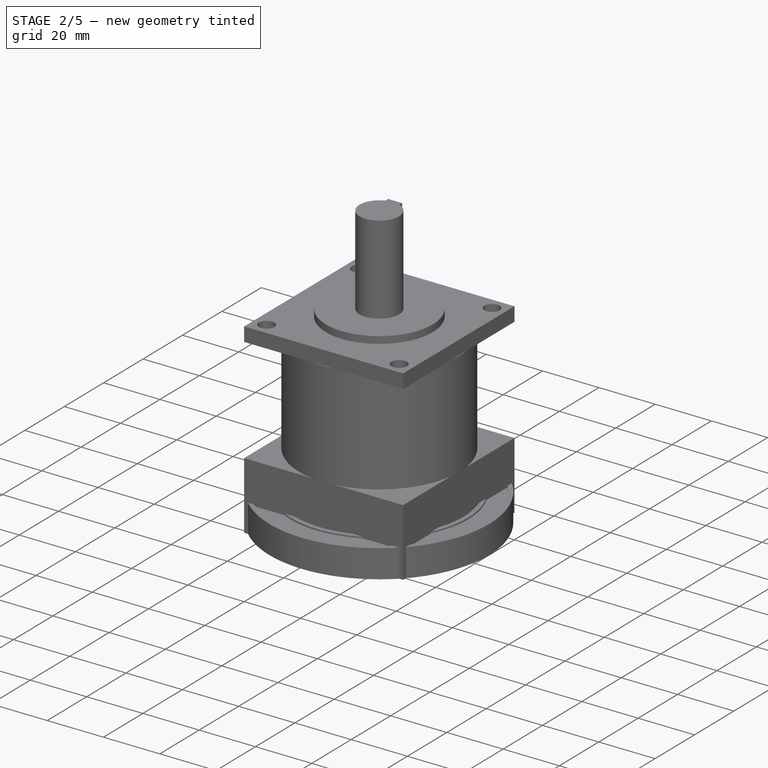
[diagram: stage 2 of 5 — iso view after this stage's code; geometry added in this stage tinted green]
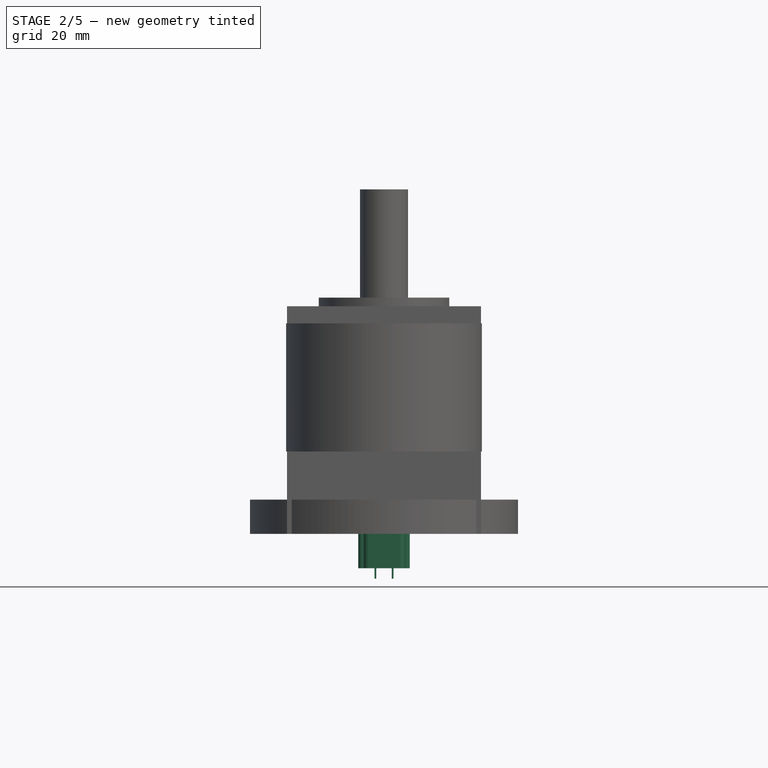
[diagram: stage 2 of 5 — front view after this stage's code; geometry added in this stage tinted green]
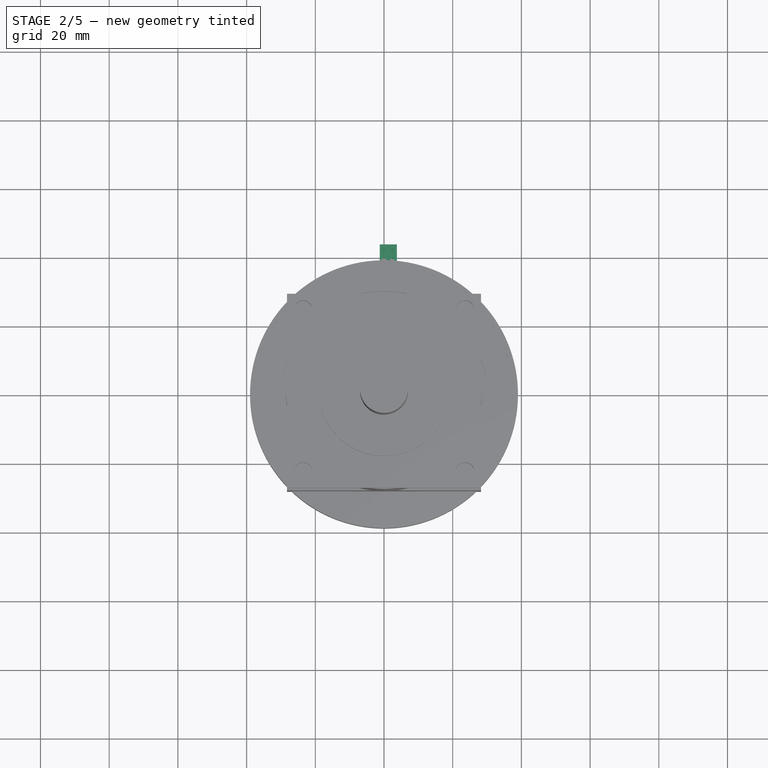
[diagram: stage 2 of 5 — top view after this stage's code; geometry added in this stage tinted green]
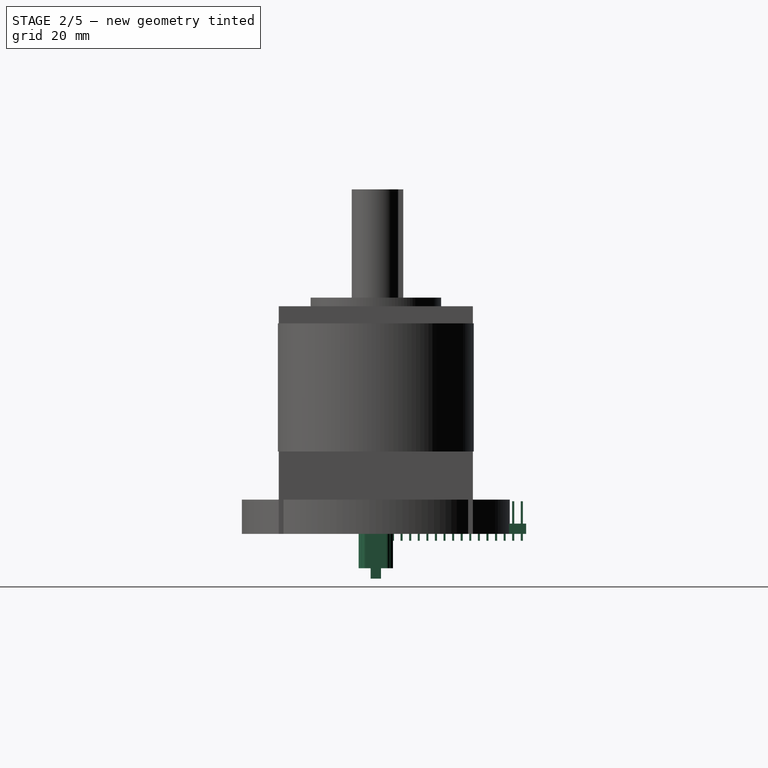
[diagram: stage 2 of 5 — right view after this stage's code; geometry added in this stage tinted green]
FEATURE [PartDesign::Body] Body057  label="B_Dupont_Male_6pin"
  Group = -> [Clone2D010,Clone2D011,Pad055,Pad056,LinearPattern009]
  Origin = -> Origin122
  Tip = -> LinearPattern009
FEATURE [App::Part] Part057  label="P_Dupont_Male_6pin"
  DrawingName = standard-parts.FCStd
  Group = -> [Body057,LCS_Dupont_Male_3pin_Origin002,LCS_Dupont_Male_3pin_Top002]
  Origin = -> Origin121
  PartDescription = B_Dupont_Male_6pin
  PartID = standard-parts
FEATURE [Part::Part2DObjectPython] Clone2D012  label="S_Dupont_MalePCB_3pin_Body"  # Draft 2D object (typed FeaturePython)
  Fuse = false
  Objects = -> [S_Dupont_Body]
  Scale = (1,1,1)
FEATURE [Part::Part2DObjectPython] Clone2D013  label="S_Dupont_MalePCB_3pin_Pin"  # Draft 2D object (typed FeaturePython)
  Fuse = false
  Objects = -> [S_Dupont_Pin]
  Placement = pos=(0,0,-2) rot=(0,0,1;0rad)
  Scale = (1,1,1)
  expr: .Placement.Base.z = -<<S_Dupont_Profile>>.Constraints.PinDescender
FEATURE [PartDesign::Pad] Pad057  label="PAD_Dupont_MalePCB_3pin_Body"
  Direction = (0,0,1)
  Length = 3
  Length2 = 10
  Profile = -> Clone2D012
  ReferenceAxis = -> Clone2D012 [N_Axis]
  Type = 0
  expr: Length = <<S_Dupont_Profile>>.Constraints.PCBHeight
FEATURE [PartDesign::Pad] Pad058  label="PAD_Dupont_MalePCB_3pin_Pin"
  BaseFeature = -> Pad057
  Direction = (0,0,1)
  Length = 11.5
  Length2 = 10
  Profile = -> Clone2D013
  ReferenceAxis = -> Clone2D013 [N_Axis]
  Type = 0
  expr: Length = <<S_Dupont_Profile>>.Constraints.PCBHeight + <<S_Dupont_Profile>>.Constraints.PinHeight + <<S_Dupont_Profile>>.Constraints.PinDescender
FEATURE [PartDesign::LinearPattern] LinearPattern010  label="PAT_Dupont_MalePCB_3pin"
  BaseFeature = -> Pad058
  Direction = -> Clone2D012 [V_Axis]
  Length = 5
  Occurrences = 3
  Originals = -> [Pad057,Pad058]
  expr: Length = <<S_Dupont_Body>>.Constraints.PinSpacing * 2
FEATURE [PartDesign::Body] Body051  label="B_Dupont_MalePCB_3pin"
  Group = -> [Clone2D012,Clone2D013,Pad057,Pad058,LinearPattern010]
  Origin = -> Origin112
  Tip = -> LinearPattern010
FEATURE [PartDesign::CoordinateSystem] LCS_Dupont_MalePCB_3pin_Origin
  AttacherType = Attacher::AttachEngine3D
  Placement = pos=(-1.25,-1.25,0) rot=(0,0,1;0rad)
  expr: .Placement.Base.x = -<<S_Dupont_Body>>.Constraints.PinSpacing / 2
  expr: .Placement.Base.y = -<<S_Dupont_Body>>.Constraints.PinSpacing / 2
FEATURE [PartDesign::CoordinateSystem] LCS_Dupont_MalePCB_3pin_Top
  AttacherType = Attacher::AttachEngine3D
  Placement = pos=(-1.25,-1.25,3) rot=(0,0,1;0rad)
  expr: .Placement.Base.x = -<<S_Dupont_Body>>.Constraints.PinSpacing / 2
  expr: .Placement.Base.y = -<<S_Dupont_Body>>.Constraints.PinSpacing / 2
  expr: .Placement.Base.z = <<S_Dupont_Profile>>.Constraints.PCBHeight
FEATURE [App::Part] Part051  label="P_Dupont_MalePCB_3pin"
  DrawingName = standard-parts.FCStd
  Group = -> [Body051,LCS_Dupont_MalePCB_3pin_Origin,LCS_Dupont_MalePCB_3pin_Top]
  Origin = -> Origin109
  PartDescription = B_Dupont_MalePCB_3pin
  PartID = standard-parts
FEATURE [Part::Part2DObjectPython] Clone2D014  label="S_Dupont_MalePCB_4pin_Body"  # Draft 2D object (typed FeaturePython)
  Fuse = false
  Objects = -> [S_Dupont_Body]
  Scale = (1,1,1)
FEATURE [Part::Part2DObjectPython] Clone2D015  label="S_Dupont_MalePCB_4pin_Pin"  # Draft 2D object (typed FeaturePython)
  Fuse = false
  Objects = -> [S_Dupont_Pin]
  Placement = pos=(0,0,-2) rot=(0,0,1;0rad)
  Scale = (1,1,1)
  expr: .Placement.Base.z = -<<S_Dupont_Profile>>.Constraints.PinDescender
FEATURE [PartDesign::CoordinateSystem] LCS_Dupont_MalePCB_3pin_Origin001  label="LCS_Dupont_MalePCB_4pin_Origin"
  AttacherType = Attacher::AttachEngine3D
  Placement = pos=(-1.25,-1.25,0) rot=(0,0,1;0rad)
  expr: .Placement.Base.x = -<<S_Dupont_Body>>.Constraints.PinSpacing / 2
  expr: .Placement.Base.y = -<<S_Dupont_Body>>.Constraints.PinSpacing / 2
FEATURE [PartDesign::CoordinateSystem] LCS_Dupont_MalePCB_3pin_Top001  label="LCS_Dupont_MalePCB_4pin_Top"
  AttacherType = Attacher::AttachEngine3D
  Placement = pos=(-1.25,-1.25,3) rot=(0,0,1;0rad)
  expr: .Placement.Base.x = -<<S_Dupont_Body>>.Constraints.PinSpacing / 2
  expr: .Placement.Base.y = -<<S_Dupont_Body>>.Constraints.PinSpacing / 2
  expr: .Placement.Base.z = <<S_Dupont_Profile>>.Constraints.PCBHeight
FEATURE [PartDesign::Pad] Pad059  label="PAD_Dupont_MalePCB_4pin_Body"
  Direction = (0,0,1)
  Length = 3
  Length2 = 10
  Profile = -> Clone2D014
  ReferenceAxis = -> Clone2D014 [N_Axis]
  Type = 0
  expr: Length = <<S_Dupont_Profile>>.Constraints.PCBHeight
FEATURE [PartDesign::Pad] Pad060  label="PAD_Dupont_MalePCB_4pin_Pin"
  BaseFeature = -> Pad059
  Direction = (0,0,1)
  Length = 11.5
  Length2 = 10
  Profile = -> Clone2D015
  ReferenceAxis = -> Clone2D015 [N_Axis]
  Type = 0
  expr: Length = <<S_Dupont_Profile>>.Constraints.PCBHeight + <<S_Dupont_Profile>>.Constraints.PinHeight + <<S_Dupont_Profile>>.Constraints.PinDescender
FEATURE [PartDesign::LinearPattern] LinearPattern011  label="PAT_Dupont_MalePCB_4pin"
  BaseFeature = -> Pad060
  Direction = -> Clone2D014 [V_Axis]
  Length = 7.5
  Occurrences = 4
  Originals = -> [Pad059,Pad060]
  expr: Length = <<S_Dupont_Body>>.Constraints.PinSpacing * 3
FEATURE [PartDesign::Body] Body058  label="B_Dupont_MalePCB_4pin"
  Group = -> [Clone2D014,Clone2D015,Pad059,Pad060,LinearPattern011]
  Origin = -> Origin124
  Tip = -> LinearPattern011
FEATURE [App::Part] Part058  label="P_Dupont_MalePCB_4pin"
  DrawingName = standard-parts.FCStd
  Group = -> [Body058,LCS_Dupont_MalePCB_3pin_Origin001,LCS_Dupont_MalePCB_3pin_Top001]
  Origin = -> Origin123
  PartDescription = B_Dupont_MalePCB_4pin
  PartID = standard-parts
FEATURE [Part::Part2DObjectPython] Clone2D016  label="S_Dupont_MalePCB_6pin_Body"  # Draft 2D object (typed FeaturePython)
  Fuse = false
  Objects = -> [S_Dupont_Body]
  Scale = (1,1,1)
FEATURE [Part::Part2DObjectPython] Clone2D017  label="S_Dupont_MalePCB_6pin_Pin"  # Draft 2D object (typed FeaturePython)
  Fuse = false
  Objects = -> [S_Dupont_Pin]
  Placement = pos=(0,0,-2) rot=(0,0,1;0rad)
  Scale = (1,1,1)
  expr: .Placement.Base.z = -<<S_Dupont_Profile>>.Constraints.PinDescender
FEATURE [PartDesign::CoordinateSystem] LCS_Dupont_MalePCB_3pin_Origin002  label="LCS_Dupont_MalePCB_6pin_Origin"
  AttacherType = Attacher::AttachEngine3D
  Placement = pos=(-1.25,-1.25,0) rot=(0,0,1;0rad)
  expr: .Placement.Base.x = -<<S_Dupont_Body>>.Constraints.PinSpacing / 2
  expr: .Placement.Base.y = -<<S_Dupont_Body>>.Constraints.PinSpacing / 2
FEATURE [PartDesign::CoordinateSystem] LCS_Dupont_MalePCB_3pin_Top002  label="LCS_Dupont_MalePCB_6pin_Top"
  AttacherType = Attacher::AttachEngine3D
  Placement = pos=(-1.25,-1.25,3) rot=(0,0,1;0rad)
  expr: .Placement.Base.x = -<<S_Dupont_Body>>.Constraints.PinSpacing / 2
  expr: .Placement.Base.y = -<<S_Dupont_Body>>.Constraints.PinSpacing / 2
  expr: .Placement.Base.z = <<S_Dupont_Profile>>.Constraints.PCBHeight
FEATURE [PartDesign::Pad] Pad061  label="PAD_Dupont_MalePCB_6pin_Body"
  Direction = (0,0,1)
  Length = 3
  Length2 = 10
  Profile = -> Clone2D016
  ReferenceAxis = -> Clone2D016 [N_Axis]
  Type = 0
  expr: Length = <<S_Dupont_Profile>>.Constraints.PCBHeight
FEATURE [PartDesign::Pad] Pad062  label="PAD_Dupont_MalePCB_6pin_Pin"
  BaseFeature = -> Pad061
  Direction = (0,0,1)
  Length = 11.5
  Length2 = 10
  Profile = -> Clone2D017
  ReferenceAxis = -> Clone2D017 [N_Axis]
  Type = 0
  expr: Length = <<S_Dupont_Profile>>.Constraints.PCBHeight + <<S_Dupont_Profile>>.Constraints.PinHeight + <<S_Dupont_Profile>>.Constraints.PinDescender
FEATURE [PartDesign::LinearPattern] LinearPattern012  label="PAT_Dupont_MalePCB_6pin"
  BaseFeature = -> Pad062
  Direction = -> Clone2D016 [V_Axis]
  Length = 12.5
  Occurrences = 6
  Originals = -> [Pad061,Pad062]
  expr: Length = <<S_Dupont_Body>>.Constraints.PinSpacing * 5
FEATURE [PartDesign::Body] Body059  label="B_Dupont_MalePCB_6pin"
  Group = -> [Clone2D016,Clone2D017,Pad061,Pad062,LinearPattern012]
  Origin = -> Origin126
  Tip = -> LinearPattern012
FEATURE [App::Part] Part059  label="P_Dupont_MalePCB_6pin"
  DrawingName = standard-parts.FCStd
  Group = -> [Body059,LCS_Dupont_MalePCB_3pin_Origin002,LCS_Dupont_MalePCB_3pin_Top002]
  Origin = -> Origin125
  PartDescription = B_Dupont_MalePCB_6pin
  PartID = standard-parts
FEATURE [Sketcher::SketchObject] Sketch083  label="S_Power_Female_2.1mm_5.5mm_Body"
  FullyConstrained = true
  MapMode = 5
  Support = -> [XY_Plane097]
  sketch-geometry (2):
    g0: Circle CenterX=0 CenterY=0 CenterZ=0 NormalX=0 NormalY=0 NormalZ=1 AngleXU=0 Radius=5
    g1: Circle CenterX=0 CenterY=0 CenterZ=0 NormalX=0 NormalY=0 NormalZ=1 AngleXU=0 Radius=2.75
  constraints (4):
    c: Diameter(g0) = 10
    c: Coincident(g0,g-1)
    c: Coincident(g1,g0)
    c: Diameter(g1) = 5.5
FEATURE [PartDesign::Pad] Pad063  label="PAD_Power_Female_2.1mm_5.5mm_Body"
  Direction = (0,0,1)
  Length = 4.5
  Length2 = 10
  Profile = -> Sketch083
  ReferenceAxis = -> Sketch083 [N_Axis]
  Type = 0
FEATURE [Sketcher::SketchObject] Sketch084  label="S_Power_Female_2.1mm_5.5mm_Shaft"
  FullyConstrained = true
  MapMode = 5
  Support = -> [XY_Plane097]
  sketch-geometry (6):
    g0: ArcOfCircle CenterX=0 CenterY=0 CenterZ=0 NormalX=0 NormalY=0 NormalZ=1 AngleXU=0 Radius=3.75 StartAngle=0.494934 EndAngle=2.64666
    g1: LineSegment StartX=-3.3 StartY=1.78115 StartZ=0 EndX=3.3 EndY=1.78115 EndZ=0
    g2: LineSegment StartX=3.3 StartY=1.78115 StartZ=0 EndX=3.3 EndY=-1.78115 EndZ=0
    g3: LineSegment StartX=3.3 StartY=-1.78115 StartZ=0 EndX=-3.3 EndY=-1.78115 EndZ=0
    g4: LineSegment StartX=-3.3 StartY=-1.78115 StartZ=0 EndX=-3.3 EndY=1.78115 EndZ=0
    g5: ArcOfCircle CenterX=0 CenterY=0 CenterZ=0 NormalX=0 NormalY=0 NormalZ=1 AngleXU=0 Radius=3.75 StartAngle=3.63653 EndAngle=5.78825
  constraints (17):
    c: Coincident(g0,g-1)
    c: Diameter(g0) = 7.5
    c: Coincident(g1,g2)
    c: Coincident(g2,g3)
    c: Coincident(g3,g4)
    c: Coincident(g4,g1)
    c: Horizontal(g1)
    c: Horizontal(g3)
    c: Vertical(g2)
    c: Vertical(g4)
    c: DistanceX(g3,g2) = 6.6
    c: Coincident(g5,g2)
    c: Coincident(g0,g1)
    c: Equal(g0,g5)
    c: Coincident(g0,g1)
    c: PointOnObject(g5,g3)
    c: Coincident(g0,g5)
FEATURE [PartDesign::Pad] Pad064  label="PAD_Power_Female_2.1mm_5.5mm_Shaft"
  BaseFeature = -> Pad063
  Direction = (0,0,1)
  Length = 9
  Length2 = 10
  Profile = -> Sketch084
  ReferenceAxis = -> Sketch084 [N_Axis]
  Reversed = true
  Type = 0
FEATURE [Sketcher::SketchObject] Sketch085  label="S_Power_Female_2.1mm_5.5mm_Wires"
  AttachmentOffset = pos=(0,0,-9) rot=(0,0,1;0rad)
  FullyConstrained = true
  MapMode = 5
  Placement = pos=(0,0,-9) rot=(0,0,1;0rad)
  Support = -> [XY_Plane097]
  sketch-geometry (8):
    g0: LineSegment StartX=-2.75 StartY=1.5 StartZ=0 EndX=-2.25 EndY=1.5 EndZ=0
    g1: LineSegment StartX=-2.25 StartY=1.5 StartZ=0 EndX=-2.25 EndY=-1.5 EndZ=0
    g2: LineSegment StartX=-2.25 StartY=-1.5 StartZ=0 EndX=-2.75 EndY=-1.5 EndZ=0
    g3: LineSegment StartX=-2.75 StartY=-1.5 StartZ=0 EndX=-2.75 EndY=1.5 EndZ=0
    g4: LineSegment StartX=2.25 StartY=1.5 StartZ=0 EndX=2.75 EndY=1.5 EndZ=0
    g5: LineSegment StartX=2.75 StartY=1.5 StartZ=0 EndX=2.75 EndY=-1.5 EndZ=0
    g6: LineSegment StartX=2.75 StartY=-1.5 StartZ=0 EndX=2.25 EndY=-1.5 EndZ=0
    g7: LineSegment StartX=2.25 StartY=-1.5 StartZ=0 EndX=2.25 EndY=1.5 EndZ=0
  constraints (22):
    c: Coincident(g0,g1)
    c: Coincident(g1,g2)
    c: Coincident(g2,g3)
    c: Coincident(g3,g0)
    c: Horizontal(g0)
    c: Horizontal(g2)
    c: Vertical(g1)
    c: Vertical(g3)
    c: Coincident(g4,g5)
    c: Coincident(g5,g6)
    c: Coincident(g6,g7)
    c: Coincident(g7,g4)
    c: Horizontal(g4)
    c: Horizontal(g6)
    c: Vertical(g5)
    c: Equal(g0,g4)
    c: Horizontal(g6,g1)
    c: DistanceX(g0,g4) = 5
    c: DistanceX(g6,g6) = 0.5
    c: DistanceY(g5,g5) = 3
    c: Symmetric(g0,g4,g-2)
    c: Symmetric(g4,g6,g-1)
FEATURE [PartDesign::Pad] Pad065  label="PAD_Power_Female_2.1mm_5.5mm_Wires"
  BaseFeature = -> Pad064
  Direction = (0,0,1)
  Length = 4
  Length2 = 10
  Profile = -> Sketch085
  ReferenceAxis = -> Sketch085 [N_Axis]
  Reversed = true
  Type = 0
FEATURE [PartDesign::Body] Body044  label="B_Power_Female_2.1mm_5.5mm"
  Group = -> [Sketch083,Pad063,Sketch084,Pad064,Sketch085,Pad065]
  Origin = -> Origin096
  Tip = -> Pad065
FEATURE [PartDesign::CoordinateSystem] LCS_Power_Female_2_1mm_5_5mm_Origin  label="LCS_Power_Female_2.1mm_5.5mm_Origin"
  AttacherType = Attacher::AttachEngine3D
FEATURE [App::Part] Part044  label="P_Power_Female_2.1mm_5.5mm"
  DrawingName = standard-parts.FCStd
  Group = -> [Body044,LCS_Power_Female_2_1mm_5_5mm_Origin]
  Origin = -> Origin095
  PartDescription = B_Power_Female_2.1mm_5.5mm
  PartID = standard-parts
FEATURE [Sketcher::SketchObject] Sketch086  label="S_USB_B_Male_Body_Top"
  FullyConstrained = true
  MapMode = 5
  Support = -> [XY_Plane129]
  sketch-geometry (7):
    g0: LineSegment StartX=-4 StartY=1.85 StartZ=0 EndX=-4 EndY=-3.6 EndZ=0
    g1: LineSegment StartX=-4 StartY=-3.6 StartZ=0 EndX=4 EndY=-3.6 EndZ=0
    g2: LineSegment StartX=4 StartY=-3.6 StartZ=0 EndX=4 EndY=1.85 EndZ=0
    g3: LineSegment StartX=4 StartY=1.85 StartZ=0 EndX=2.25 EndY=3.6 EndZ=0
    g4: LineSegment StartX=2.25 StartY=3.6 StartZ=0 EndX=-2.25 EndY=3.6 EndZ=0
    g5: LineSegment StartX=-2.25 StartY=3.6 StartZ=0 EndX=-4 EndY=1.85 EndZ=0
    g6: GeomPoint X=-2.25 Y=-3.6 Z=0
  constraints (17):
    c: Vertical(g0)
    c: Coincident(g0,g1)
    c: Coincident(g1,g2)
    c: Vertical(g2)
    c: Coincident(g2,g3)
    c: Coincident(g3,g4)
    c: Coincident(g4,g5)
    c: Coincident(g5,g0)
    c: Symmetric(g0,g1,g-2)
    c: Symmetric(g3,g4,g-2)
    c: Equal(g3,g5)
    c: DistanceY(g1,g3) = 7.2
    c: DistanceX(g1,g1) = 8
    c: Angle(g0,g5) = 2.35619
    c: DistanceX(g4,g4) = 4.5
    c: PointOnObject(g6,g1)
    c: Symmetric(g4,g6,g-1)
FEATURE [PartDesign::Pad] Pad066  label="PAD_USB_B_Male_Body_Top"
  Direction = (0,0,1)
  Length = 13
  Length2 = 10
  Profile = -> Sketch086
  ReferenceAxis = -> Sketch086 [N_Axis]
  Type = 0
FEATURE [Sketcher::SketchObject] Sketch087  label="S_USB_B_Male_Body_Body"
  FullyConstrained = true
  MapMode = 5
  Support = -> [XY_Plane129]
  sketch-geometry (12):
    g0: LineSegment StartX=-4.5 StartY=5 StartZ=0 EndX=4.5 EndY=5 EndZ=0
    g1: LineSegment StartX=6 StartY=3.5 StartZ=0 EndX=6 EndY=-3.5 EndZ=0
    g2: LineSegment StartX=4.5 StartY=-5 StartZ=0 EndX=-4.5 EndY=-5 EndZ=0
    g3: LineSegment StartX=-6 StartY=-3.5 StartZ=0 EndX=-6 EndY=3.5 EndZ=0
    g4: ArcOfCircle CenterX=-4.5 CenterY=3.5 CenterZ=0 NormalX=0 NormalY=0 NormalZ=1 AngleXU=0 Radius=1.5 StartAngle=1.5708 EndAngle=3.14159
    g5: GeomPoint X=-6 Y=5 Z=0
    g6: ArcOfCircle CenterX=4.5 CenterY=3.5 CenterZ=0 NormalX=0 NormalY=0 NormalZ=1 AngleXU=0 Radius=1.5 StartAngle=0 EndAngle=1.5708
    g7: GeomPoint X=6 Y=5 Z=0
    g8: ArcOfCircle CenterX=4.5 CenterY=-3.5 CenterZ=0 NormalX=0 NormalY=0 NormalZ=1 AngleXU=0 Radius=1.5 StartAngle=4.71239 EndAngle=6.28319
    g9: GeomPoint X=6 Y=-5 Z=0
    g10: ArcOfCircle CenterX=-4.5 CenterY=-3.5 CenterZ=0 NormalX=0 NormalY=0 NormalZ=1 AngleXU=0 Radius=1.5 StartAngle=3.14159 EndAngle=4.71239
    g11: GeomPoint X=-6 Y=-5 Z=0
  constraints (27):
    c: Horizontal(g0)
    c: Horizontal(g2)
    c: Vertical(g1)
    c: Vertical(g3)
    c: DistanceY(g9,g7) = 10
    c: DistanceX(g11,g9) = 12
    c: Symmetric(g5,g9,g-1)
    c: PointOnObject(g5,g0)
    c: PointOnObject(g5,g3)
    c: Tangent(g0,g4) = 1.5708
    c: Tangent(g3,g4) = 1.5708
    c: PointOnObject(g7,g0)
    c: PointOnObject(g7,g1)
    c: Tangent(g0,g6) = 1.5708
    c: Tangent(g1,g6) = 1.5708
    c: PointOnObject(g9,g1)
    c: PointOnObject(g9,g2)
    c: Tangent(g1,g8) = 1.5708
    c: Tangent(g2,g8) = 1.5708
    c: PointOnObject(g11,g2)
    c: PointOnObject(g11,g3)
    c: Tangent(g2,g10) = 1.5708
    c: Tangent(g3,g10) = 1.5708
    c: Equal(g4,g6)
    c: Equal(g6,g8)
    c: Equal(g8,g10)
    c: Diameter(g4) = 3
FEATURE [PartDesign::Pad] Pad067  label="_USB_B_Male_Body_Body"
  BaseFeature = -> Pad066
  Direction = (0,0,1)
  Length = 10
  Length2 = 10
  Profile = -> Sketch087
  ReferenceAxis = -> Sketch087 [N_Axis]
  Reversed = true
  Type = 0
FEATURE [PartDesign::Body] B_USB_B_Male
  Group = -> [Sketch086,Pad066,Sketch087,Pad067]
  Origin = -> Origin128
  Tip = -> Pad067
FEATURE [Sketcher::SketchObject] Sketch088  label="S_USB_A_Male_Top"
  FullyConstrained = true
  MapMode = 5
  Support = -> [XY_Plane131]
  sketch-geometry (5):
    g0: LineSegment StartX=-6 StartY=2.25 StartZ=0 EndX=-6 EndY=-2.25 EndZ=0
    g1: LineSegment StartX=-6 StartY=-2.25 StartZ=0 EndX=6 EndY=-2.25 EndZ=0
    g2: LineSegment StartX=6 StartY=-2.25 StartZ=0 EndX=6 EndY=2.25 EndZ=0
    g3: LineSegment StartX=6 StartY=2.25 StartZ=0 EndX=-6 EndY=2.25 EndZ=0
    g4: GeomPoint X=0 Y=0 Z=0
  constraints (12):
    c: Coincident(g0,g1)
    c: Coincident(g1,g2)
    c: Coincident(g2,g3)
    c: Coincident(g3,g0)
    c: Horizontal(g1)
    c: Horizontal(g3)
    c: Vertical(g0)
    c: Vertical(g2)
    c: Symmetric(g1,g0,g4)
    c: Coincident(g4,g-1)
    c: DistanceX(g3,g3) = 12
    c: DistanceY(g2,g2) = 4.5
FEATURE [PartDesign::Pad] Pad068  label="PAD_USB_A_Male_Top"
  Direction = (0,0,1)
  Length = 13
  Length2 = 10
  Profile = -> Sketch088
  ReferenceAxis = -> Sketch088 [N_Axis]
  Type = 0
FEATURE [Sketcher::SketchObject] Sketch089  label="S_USB_A_Male_Body"
  FullyConstrained = true
  MapMode = 5
  Support = -> [XY_Plane131]
  sketch-geometry (13):
    g0: LineSegment StartX=-7.5 StartY=3 StartZ=0 EndX=-7.5 EndY=-3 EndZ=0
    g1: LineSegment StartX=-6.5 StartY=-4 StartZ=0 EndX=6.5 EndY=-4 EndZ=0
    g2: LineSegment StartX=7.5 StartY=-3 StartZ=0 EndX=7.5 EndY=3 EndZ=0
    g3: LineSegment StartX=6.5 StartY=4 StartZ=0 EndX=-6.5 EndY=4 EndZ=0
    g4: GeomPoint X=0 Y=0 Z=0
    g5: ArcOfCircle CenterX=-6.5 CenterY=3 CenterZ=0 NormalX=0 NormalY=0 NormalZ=1 AngleXU=0 Radius=1 StartAngle=1.5708 EndAngle=3.14159
    g6: GeomPoint X=-7.5 Y=4 Z=0
    g7: ArcOfCircle CenterX=6.5 CenterY=3 CenterZ=0 NormalX=0 NormalY=0 NormalZ=1 AngleXU=0 Radius=1 StartAngle=1e-16 EndAngle=1.5708
    g8: GeomPoint X=7.5 Y=4 Z=0
    g9: ArcOfCircle CenterX=6.5 CenterY=-3 CenterZ=0 NormalX=0 NormalY=0 NormalZ=1 AngleXU=0 Radius=1 StartAngle=4.71239 EndAngle=6.28319
    g10: GeomPoint X=7.5 Y=-4 Z=0
    g11: ArcOfCircle CenterX=-6.5 CenterY=-3 CenterZ=0 NormalX=0 NormalY=0 NormalZ=1 AngleXU=0 Radius=1 StartAngle=3.14159 EndAngle=4.71239
    g12: GeomPoint X=-7.5 Y=-4 Z=0
  constraints (28):
    c: Horizontal(g1)
    c: Horizontal(g3)
    c: Vertical(g0)
    c: Vertical(g2)
    c: Symmetric(g10,g6,g4)
    c: Coincident(g4,g-1)
    c: DistanceY(g10,g8) = 8
    c: DistanceX(g6,g8) = 15
    c: PointOnObject(g6,g0)
    c: PointOnObject(g6,g3)
    c: Tangent(g0,g5) = -1.5708
    c: Tangent(g3,g5) = -1.5708
    c: PointOnObject(g8,g2)
    c: PointOnObject(g8,g3)
    c: Tangent(g2,g7) = -1.5708
    c: Tangent(g3,g7) = -1.5708
    c: PointOnObject(g10,g1)
    c: PointOnObject(g10,g2)
    c: Tangent(g1,g9) = -1.5708
    c: Tangent(g2,g9) = -1.5708
    c: PointOnObject(g12,g0)
    c: PointOnObject(g12,g1)
    c: Tangent(g0,g11) = -1.5708
    c: Tangent(g1,g11) = -1.5708
    c: Equal(g5,g7)
    c: Equal(g7,g9)
    c: Equal(g9,g11)
    c: Diameter(g5) = 2
FEATURE [PartDesign::Pad] Pad069  label="PAD_USB_A_Male_Body"
  BaseFeature = -> Pad068
  Direction = (0,0,1)
  Length = 10
  Length2 = 10
  Profile = -> Sketch089
  ReferenceAxis = -> Sketch089 [N_Axis]
  Reversed = true
  Type = 0
FEATURE [PartDesign::Body] Body060  label="B_USB_A_Male"
  Group = -> [Sketch088,Pad068,Sketch089,Pad069]
  Origin = -> Origin130
  Tip = -> Pad069
FEATURE [PartDesign::CoordinateSystem] LCS_USB_A_Male_Origin
  AttacherType = Attacher::AttachEngine3D
FEATURE [App::Part] Part061  label="P_USB_A_Male"
  DrawingName = standard-parts.FCStd
  Group = -> [Body060,LCS_USB_A_Male_Origin]
  Origin = -> Origin129
  PartDescription = B_USB_A_Male
  PartID = standard-parts
FEATURE [PartDesign::CoordinateSystem] LCS_USB_B_Male_Origin
  AttacherType = Attacher::AttachEngine3D
FEATURE [App::Part] Part060  label="P_USB_B_Male"
  DrawingName = standard-parts.FCStd
  Group = -> [B_USB_B_Male,LCS_USB_B_Male_Origin]
  Origin = -> Origin127
  PartDescription = B_USB_B_Male
  PartID = standard-parts
FEATURE [App::DocumentObjectGroup] USB
  Group = -> [Part060,Part061]
FEATURE [Part::Part2DObjectPython] Clone2D018  label="S_Dupont_MalePCB_8pin_Body"  # Draft 2D object (typed FeaturePython)
  Fuse = false
  Objects = -> [S_Dupont_Body]
  Scale = (1,1,1)
FEATURE [Part::Part2DObjectPython] Clone2D019  label="S_Dupont_MalePCB_8pin_Pin"  # Draft 2D object (typed FeaturePython)
  Fuse = false
  Objects = -> [S_Dupont_Pin]
  Placement = pos=(0,0,-2) rot=(0,0,1;0rad)
  Scale = (1,1,1)
  expr: .Placement.Base.z = -<<S_Dupont_Profile>>.Constraints.PinDescender
FEATURE [PartDesign::CoordinateSystem] LCS_Dupont_MalePCB_3pin_Origin003  label="LCS_Dupont_MalePCB_8pin_Origin"
  AttacherType = Attacher::AttachEngine3D
  Placement = pos=(-1.25,-1.25,0) rot=(0,0,1;0rad)
  expr: .Placement.Base.x = -<<S_Dupont_Body>>.Constraints.PinSpacing / 2
  expr: .Placement.Base.y = -<<S_Dupont_Body>>.Constraints.PinSpacing / 2
FEATURE [PartDesign::CoordinateSystem] LCS_Dupont_MalePCB_3pin_Top003  label="LCS_Dupont_MalePCB_8pin_Top"
  AttacherType = Attacher::AttachEngine3D
  Placement = pos=(-1.25,-1.25,3) rot=(0,0,1;0rad)
  expr: .Placement.Base.x = -<<S_Dupont_Body>>.Constraints.PinSpacing / 2
  expr: .Placement.Base.y = -<<S_Dupont_Body>>.Constraints.PinSpacing / 2
  expr: .Placement.Base.z = <<S_Dupont_Profile>>.Constraints.PCBHeight
FEATURE [PartDesign::Pad] Pad070  label="PAD_Dupont_MalePCB_8pin_Body"
  Direction = (0,0,1)
  Length = 3
  Length2 = 10
  Profile = -> Clone2D018
  ReferenceAxis = -> Clone2D018 [N_Axis]
  Type = 0
  expr: Length = <<S_Dupont_Profile>>.Constraints.PCBHeight
FEATURE [PartDesign::Pad] Pad071  label="PAD_Dupont_MalePCB_8pin_Pin"
  BaseFeature = -> Pad070
  Direction = (0,0,1)
  Length = 11.5
  Length2 = 10
  Profile = -> Clone2D019
  ReferenceAxis = -> Clone2D019 [N_Axis]
  Type = 0
  expr: Length = <<S_Dupont_Profile>>.Constraints.PCBHeight + <<S_Dupont_Profile>>.Constraints.PinHeight + <<S_Dupont_Profile>>.Constraints.PinDescender
FEATURE [PartDesign::LinearPattern] LinearPattern013  label="PAT_Dupont_MalePCB_8pin"
  BaseFeature = -> Pad071
  Direction = -> Clone2D018 [V_Axis]
  Length = 17.5
  Occurrences = 8
  Originals = -> [Pad070,Pad071]
  expr: Length = <<S_Dupont_Body>>.Constraints.PinSpacing * 7
FEATURE [PartDesign::Body] Body061  label="B_Dupont_MalePCB_8pin"
  Group = -> [Clone2D018,Clone2D019,Pad070,Pad071,LinearPattern013]
  Origin = -> Origin132
  Tip = -> LinearPattern013
FEATURE [App::Part] Part062  label="P_Dupont_MalePCB_8pin"
  DrawingName = standard-parts.FCStd
  Group = -> [Body061,LCS_Dupont_MalePCB_3pin_Origin003,LCS_Dupont_MalePCB_3pin_Top003]
  Origin = -> Origin131
  PartDescription = B_Dupont_MalePCB_8pin
  PartID = standard-parts
FEATURE [Part::Part2DObjectPython] Clone2D020  label="S_Dupont_MalePCB_10pin_Body"  # Draft 2D object (typed FeaturePython)
  Fuse = false
  Objects = -> [S_Dupont_Body]
  Scale = (1,1,1)
FEATURE [Part::Part2DObjectPython] Clone2D021  label="S_Dupont_MalePCB_10pin_Pin"  # Draft 2D object (typed FeaturePython)
  Fuse = false
  Objects = -> [S_Dupont_Pin]
  Placement = pos=(0,0,-2) rot=(0,0,1;0rad)
  Scale = (1,1,1)
  expr: .Placement.Base.z = -<<S_Dupont_Profile>>.Constraints.PinDescender
FEATURE [PartDesign::CoordinateSystem] LCS_Dupont_MalePCB_3pin_Origin004  label="LCS_Dupont_MalePCB_10pin_Origin"
  AttacherType = Attacher::AttachEngine3D
  Placement = pos=(-1.25,-1.25,0) rot=(0,0,1;0rad)
  expr: .Placement.Base.x = -<<S_Dupont_Body>>.Constraints.PinSpacing / 2
  expr: .Placement.Base.y = -<<S_Dupont_Body>>.Constraints.PinSpacing / 2
FEATURE [PartDesign::CoordinateSystem] LCS_Dupont_MalePCB_3pin_Top004  label="LCS_Dupont_MalePCB_10pin_Top"
  AttacherType = Attacher::AttachEngine3D
  Placement = pos=(0,-1.25,3) rot=(0,0,1;0rad)
  expr: .Placement.Base.y = -<<S_Dupont_Body>>.Constraints.PinSpacing / 2
  expr: .Placement.Base.z = <<S_Dupont_Profile>>.Constraints.PCBHeight
FEATURE [PartDesign::Pad] Pad072  label="PAD_Dupont_MalePCB_10pin_Body"
  Direction = (0,0,1)
  Length = 3
  Length2 = 10
  Profile = -> Clone2D020
  ReferenceAxis = -> Clone2D020 [N_Axis]
  Type = 0
  expr: Length = <<S_Dupont_Profile>>.Constraints.PCBHeight
FEATURE [PartDesign::Pad] Pad073  label="PAD_Dupont_MalePCB_10pin_Pin"
  BaseFeature = -> Pad072
  Direction = (0,0,1)
  Length = 11.5
  Length2 = 10
  Profile = -> Clone2D021
  ReferenceAxis = -> Clone2D021 [N_Axis]
  Type = 0
  expr: Length = <<S_Dupont_Profile>>.Constraints.PCBHeight + <<S_Dupont_Profile>>.Constraints.PinHeight + <<S_Dupont_Profile>>.Constraints.PinDescender
FEATURE [PartDesign::LinearPattern] LinearPattern014  label="PAT_Dupont_MalePCB_10pin"
  BaseFeature = -> Pad073
  Direction = -> Clone2D020 [V_Axis]
  Length = 22.5
  Occurrences = 10
  Originals = -> [Pad072,Pad073]
  expr: Length = <<S_Dupont_Body>>.Constraints.PinSpacing * 9
FEATURE [PartDesign::Body] Body062  label="B_Dupont_MalePCB_10pin"
  Group = -> [Clone2D020,Clone2D021,Pad072,Pad073,LinearPattern014]
  Origin = -> Origin134
  Tip = -> LinearPattern014
FEATURE [App::Part] Part063  label="P_Dupont_MalePCB_10pin"
  DrawingName = standard-parts.FCStd
  Group = -> [Body062,LCS_Dupont_MalePCB_3pin_Origin004,LCS_Dupont_MalePCB_3pin_Top004]
  Origin = -> Origin133
  PartDescription = B_Dupont_MalePCB_10pin
  PartID = standard-parts
FEATURE [Part::Part2DObjectPython] Clone2D022  label="S_Dupont_Male_3pin_Body002"  # Draft 2D object (typed FeaturePython)
  Fuse = false
  Objects = -> [S_Dupont_Body]
  Scale = (1,1,1)
FEATURE [Part::Part2DObjectPython] Clone2D023  label="S_Dupont_Male_3pin_Pin002"  # Draft 2D object (typed FeaturePython)
  Fuse = false
  Objects = -> [S_Dupont_Pin]
  Placement = pos=(0,0,14.2) rot=(0,0,1;0rad)
  Scale = (1,1,1)
  expr: .Placement.Base.z = <<S_Dupont_Profile>>.Constraints.BodyHeight
FEATURE [PartDesign::CoordinateSystem] LCS_Dupont_Male_3pin_Origin003  label="LCS_Dupont_Male_2pin_Origin"
  AttacherType = Attacher::AttachEngine3D
  Placement = pos=(-1.25,-1.25,0) rot=(0,0,1;0rad)
  expr: .Placement.Base.x = -<<S_Dupont_Body>>.Constraints.PinSpacing / 2
  expr: .Placement.Base.y = -<<S_Dupont_Body>>.Constraints.PinSpacing / 2
FEATURE [PartDesign::CoordinateSystem] LCS_Dupont_Male_3pin_Top003  label="LCS_Dupont_Male_2pin_Top"
  AttacherType = Attacher::AttachEngine3D
  Placement = pos=(-1.25,-1.25,14.2) rot=(0,0,1;0rad)
  expr: .Placement.Base.x = -<<S_Dupont_Body>>.Constraints.PinSpacing / 2
  expr: .Placement.Base.y = -<<S_Dupont_Body>>.Constraints.PinSpacing / 2
  expr: .Placement.Base.z = <<S_Dupont_Profile>>.Constraints.BodyHeight
FEATURE [PartDesign::Pad] Pad074  label="PAD_Dupont_Male_2pin_Body"
  Direction = (0,0,1)
  Length = 14.2
  Length2 = 10
  Profile = -> Clone2D022
  ReferenceAxis = -> Clone2D022 [N_Axis]
  Type = 0
  expr: Length = <<S_Dupont_Profile>>.Constraints.BodyHeight
FEATURE [PartDesign::Pad] Pad075  label="PAD_Dupont_Male_2pin_Pin"
  BaseFeature = -> Pad074
  Direction = (0,0,1)
  Length = 6.5
  Length2 = 10
  Profile = -> Clone2D023
  ReferenceAxis = -> Clone2D023 [N_Axis]
  Type = 0
  expr: Length = <<S_Dupont_Profile>>.Constraints.PinHeight
FEATURE [PartDesign::LinearPattern] LinearPattern015  label="PAT_Dupont_Male_2pin"
  BaseFeature = -> Pad075
  Direction = -> Clone2D022 [V_Axis]
  Length = 2.5
  Occurrences = 2
  Originals = -> [Pad074,Pad075]
  expr: Length = <<S_Dupont_Body>>.Constraints.PinSpacing
FEATURE [PartDesign::Body] Body063  label="B_Dupont_Male_2pin"
  Group = -> [Clone2D022,Clone2D023,Pad074,Pad075,LinearPattern015]
  Origin = -> Origin136
  Tip = -> LinearPattern015
FEATURE [App::Part] Part064  label="P_Dupont_Male_2pin"
  DrawingName = standard-parts.FCStd
  Group = -> [Body063,LCS_Dupont_Male_3pin_Origin003,LCS_Dupont_Male_3pin_Top003]
  Origin = -> Origin135
  PartDescription = B_Dupont_Male_2pin
  PartID = standard-parts
FEATURE [App::DocumentObjectGroup] Male
  Group = -> [Part064,Part048,Part056,Part057]
FEATURE [Part::Part2DObjectPython] Clone2D024  label="S_Dupont_Body_Female_2pin"  # Draft 2D object (typed FeaturePython)
  Fuse = false
  Objects = -> [S_Dupont_Body]
  Scale = (1,1,1)
FEATURE [Part::Part2DObjectPython] Clone2D025  label="S_Dupont_Pin_Female_2pin"  # Draft 2D object (typed FeaturePython)
  Fuse = false
  Objects = -> [S_Dupont_Pin]
  Scale = (1,1,1)
FEATURE [PartDesign::CoordinateSystem] LCS_Dupont_Female_3pin_Origin003  label="LCS_Dupont_Female_2pin_Origin"
  AttacherType = Attacher::AttachEngine3D
  Placement = pos=(-1.25,-1.25,0) rot=(0,0,1;0rad)
  expr: .Placement.Base.x = -<<S_Dupont_Body>>.Constraints.PinSpacing / 2
  expr: .Placement.Base.y = -<<S_Dupont_Body>>.Constraints.PinSpacing / 2
FEATURE [PartDesign::CoordinateSystem] LCS_Dupont_Female_3pin_Top003  label="LCS_Dupont_Female_2pin_Top"
  AttacherType = Attacher::AttachEngine3D
  Placement = pos=(-1.25,-1.25,14.2) rot=(0,0,1;0rad)
  expr: .Placement.Base.x = -<<S_Dupont_Body>>.Constraints.PinSpacing / 2
  expr: .Placement.Base.y = -<<S_Dupont_Body>>.Constraints.PinSpacing / 2
  expr: .Placement.Base.z = <<S_Dupont_Profile>>.Constraints.BodyHeight
FEATURE [PartDesign::Pad] Pad076  label="PAD_Dupont_Body_Female_2pin"
  Direction = (0,0,1)
  Length = 14.2
  Length2 = 10
  Profile = -> Clone2D024
  ReferenceAxis = -> Clone2D024 [N_Axis]
  Type = 0
  expr: Length = <<S_Dupont_Profile>>.Constraints.BodyHeight
FEATURE [PartDesign::Pocket] Pocket038  label="POCKET_Dupont_Pin_Female_2pin"
  BaseFeature = -> Pad076
  Direction = (0,0,-1)
  Length = 14.2
  Length2 = 5
  Profile = -> Clone2D025
  ReferenceAxis = -> Clone2D025 [N_Axis]
  Reversed = true
  Type = 0
  expr: Length = <<S_Dupont_Profile>>.Constraints.BodyHeight
FEATURE [PartDesign::LinearPattern] LinearPattern016  label="PAT_Dupont_Female_2pin"
  BaseFeature = -> Pocket038
  Direction = -> Clone2D024 [V_Axis]
  Length = 2.5
  Occurrences = 2
  Originals = -> [Pad076,Pocket038]
  expr: Length = <<S_Dupont_Body>>.Constraints.PinSpacing * 1
FEATURE [PartDesign::Body] Body064  label="B_Dupont_Female_2pin"
  Group = -> [Clone2D024,Clone2D025,Pad076,Pocket038,LinearPattern016]
  Origin = -> Origin138
  Tip = -> LinearPattern016
FEATURE [App::Part] Part065  label="P_Dupont_Female_2pin"
  DrawingName = standard-parts.FCStd
  Group = -> [Body064,LCS_Dupont_Female_3pin_Origin003,LCS_Dupont_Female_3pin_Top003]
  Origin = -> Origin137
  PartDescription = B_Dupont_Female_2pin
  PartID = standard-parts
FEATURE [App::DocumentObjectGroup] Group030  label="Female"
  Group = -> [Part065,Part045,Part054,Part055]
FEATURE [Part::Part2DObjectPython] Clone2D026  label="S_Dupont_MalePCB_2pin_Body"  # Draft 2D object (typed FeaturePython)
  Fuse = false
  Objects = -> [S_Dupont_Body]
  Scale = (1,1,1)
FEATURE [Part::Part2DObjectPython] Clone2D027  label="S_Dupont_MalePCB_2pin_Pin"  # Draft 2D object (typed FeaturePython)
  Fuse = false
  Objects = -> [S_Dupont_Pin]
  Placement = pos=(0,0,-2) rot=(0,0,1;0rad)
  Scale = (1,1,1)
  expr: .Placement.Base.z = -<<S_Dupont_Profile>>.Constraints.PinDescender
FEATURE [PartDesign::CoordinateSystem] LCS_Dupont_MalePCB_3pin_Origin005  label="LCS_Dupont_MalePCB_2pin_Origin"
  AttacherType = Attacher::AttachEngine3D
  Placement = pos=(-1.25,-1.25,0) rot=(0,0,1;0rad)
  expr: .Placement.Base.x = -<<S_Dupont_Body>>.Constraints.PinSpacing / 2
  expr: .Placement.Base.y = -<<S_Dupont_Body>>.Constraints.PinSpacing / 2
FEATURE [PartDesign::CoordinateSystem] LCS_Dupont_MalePCB_3pin_Top005  label="LCS_Dupont_MalePCB_2pin_Top"
  AttacherType = Attacher::AttachEngine3D
  Placement = pos=(-1.25,-1.25,3) rot=(0,0,1;0rad)
  expr: .Placement.Base.x = -<<S_Dupont_Body>>.Constraints.PinSpacing / 2
  expr: .Placement.Base.y = -<<S_Dupont_Body>>.Constraints.PinSpacing / 2
  expr: .Placement.Base.z = <<S_Dupont_Profile>>.Constraints.PCBHeight
FEATURE [PartDesign::Pad] Pad077  label="PAD_Dupont_MalePCB_2pin_Body"
  Direction = (0,0,1)
  Length = 3
  Length2 = 10
  Profile = -> Clone2D026
  ReferenceAxis = -> Clone2D026 [N_Axis]
  Type = 0
  expr: Length = <<S_Dupont_Profile>>.Constraints.PCBHeight
FEATURE [PartDesign::Pad] Pad078  label="PAD_Dupont_MalePCB_2pin_Pin"
  BaseFeature = -> Pad077
  Direction = (0,0,1)
  Length = 11.5
  Length2 = 10
  Profile = -> Clone2D027
  ReferenceAxis = -> Clone2D027 [N_Axis]
  Type = 0
  expr: Length = <<S_Dupont_Profile>>.Constraints.PCBHeight + <<S_Dupont_Profile>>.Constraints.PinHeight + <<S_Dupont_Profile>>.Constraints.PinDescender
FEATURE [PartDesign::LinearPattern] LinearPattern017  label="PAT_Dupont_MalePCB_2pin"
  BaseFeature = -> Pad078
  Direction = -> Clone2D026 [V_Axis]
  Length = 2.5
  Occurrences = 2
  Originals = -> [Pad077,Pad078]
  expr: Length = <<S_Dupont_Body>>.Constraints.PinSpacing * 1
FEATURE [PartDesign::LinearPattern] LinearPattern018
  Direction = -> Y_Axis142
  Length = 42.5
  Occurrences = 18
  expr: Length = <<S_Dupont_Body>>.Constraints.PinSpacing * 17
FEATURE [PartDesign::LinearPattern] LinearPattern019
  Direction = -> X_Axis142
  Length = 2.5
  Occurrences = 2
  expr: Length = <<S_Dupont_Body>>.Constraints.PinSpacing * 1
FEATURE [PartDesign::MultiTransform] MultiTransform002  label="PAT_Dupont_MalePCB_18x2pin"
  BaseFeature = -> Pad080
  Originals = -> [Pad079,Pad080]
  Transformations = -> [LinearPattern018,LinearPattern019]
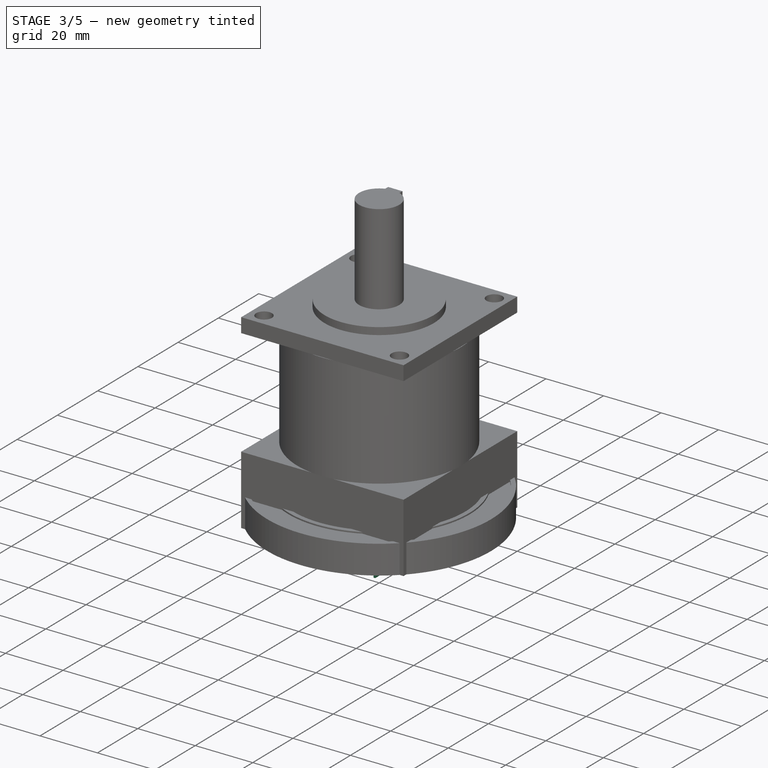
[diagram: stage 3 of 5 — iso view after this stage's code; geometry added in this stage tinted green]
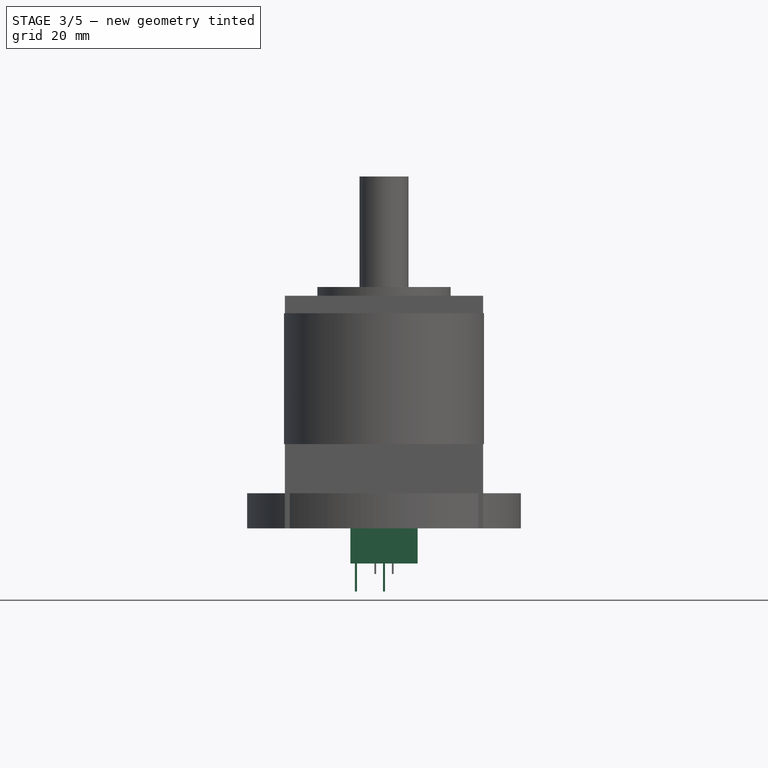
[diagram: stage 3 of 5 — front view after this stage's code; geometry added in this stage tinted green]
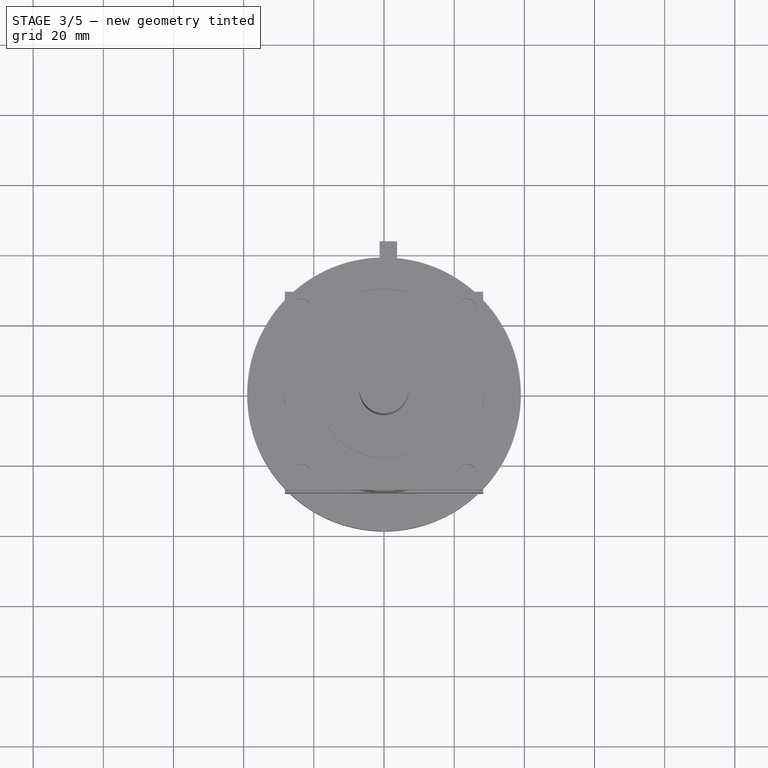
[diagram: stage 3 of 5 — top view after this stage's code; geometry added in this stage tinted green]
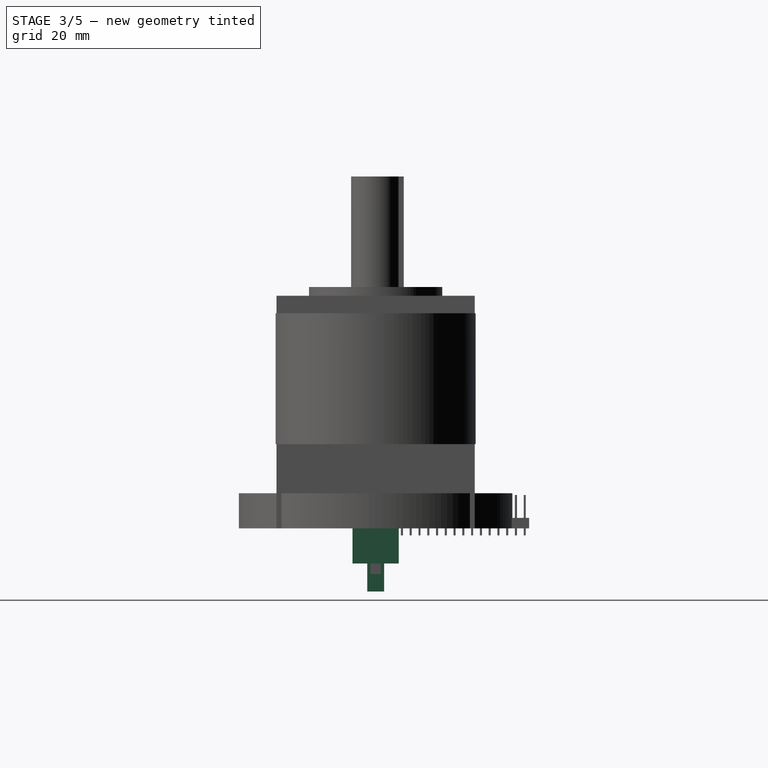
[diagram: stage 3 of 5 — right view after this stage's code; geometry added in this stage tinted green]
FEATURE [PartDesign::Body] Body012  label="B_Bearing_6mm_13mm_3.5mm"
  Group = -> [Sketch048,Sketch049,Pad021,Pocket027,Sketch050,Pocket028]
  Origin = -> Origin031
  Tip = -> Pocket028
FEATURE [App::Part] Part012  label="P_Bearing_6mm_13mm_3.5mm"
  DrawingName = jrobot-3.FCStd
  Group = -> [Body012,LCS_Bearing_78mm_60mm_Bottom006,LCS_Bearing_78mm_60mm_Top006,LCS_Bearing_78mm_60mm_Center006]
  Origin = -> Origin030
  PartDescription = B_Bearing_5mm_16mm_5mm
  PartID = jrobot-3
FEATURE [Sketcher::SketchObject] Sketch051  label="S_Fan_30mm_Body"
  FullyConstrained = true
  MapMode = 5
  Support = -> [XY_Plane033]
  sketch-geometry (12):
    g0: LineSegment StartX=-15 StartY=15 StartZ=0 EndX=15 EndY=15 EndZ=0
    g1: LineSegment StartX=15 StartY=15 StartZ=0 EndX=15 EndY=-15 EndZ=0
    g2: LineSegment StartX=15 StartY=-15 StartZ=0 EndX=-15 EndY=-15 EndZ=0
    g3: LineSegment StartX=-15 StartY=-15 StartZ=0 EndX=-15 EndY=15 EndZ=0
    g4: Circle CenterX=0 CenterY=0 CenterZ=0 NormalX=0 NormalY=0 NormalZ=1 AngleXU=0 Radius=14
    g5: Circle CenterX=-11.875 CenterY=11.875 CenterZ=0 NormalX=0 NormalY=0 NormalZ=1 AngleXU=0 Radius=1.5
    g6: Circle CenterX=11.875 CenterY=11.875 CenterZ=0 NormalX=0 NormalY=0 NormalZ=1 AngleXU=0 Radius=1.5
    g7: Circle CenterX=-11.875 CenterY=-11.875 CenterZ=0 NormalX=0 NormalY=0 NormalZ=1 AngleXU=0 Radius=1.5
    g8: Circle CenterX=11.875 CenterY=-11.875 CenterZ=0 NormalX=0 NormalY=0 NormalZ=1 AngleXU=0 Radius=1.5
    g9: LineSegment StartX=-15 StartY=15 StartZ=0 EndX=-11.875 EndY=11.875 EndZ=0
    g10: LineSegment StartX=11.875 StartY=11.875 StartZ=0 EndX=15 EndY=15 EndZ=0
    g11: LineSegment StartX=-11.875 StartY=-11.875 StartZ=0 EndX=-15 EndY=-15 EndZ=0
  constraints (31):
    c: Coincident(g0,g1)
    c: Coincident(g1,g2)
    c: Coincident(g2,g3)
    c: Coincident(g3,g0)
    c: Horizontal(g0)
    c: Horizontal(g2)
    c: Vertical(g1)
    c: Vertical(g3)
    c: Coincident(g4,g-1)
    c: Symmetric(g0,g1,g4)
    c: DistanceX(g0,g0) = 30
    c: Equal(g0,g1)
    c: Diameter(g4) = 28
    c: Diameter(g5) = 3
    c: Equal(g5,g6)
    c: Equal(g6,g8)
    c: Equal(g8,g7)
    c: Horizontal(g6,g5)
    c: Horizontal(g8,g7)
    c: Vertical(g7,g5)
    c: DistanceX(g5,g6) = 23.75
    c: DistanceY(g7,g5) = 23.75
    c: Vertical(g8,g6)
    c: Coincident(g9,g0)
    c: Coincident(g9,g5)
    c: Coincident(g10,g6)
    c: Coincident(g10,g0)
    c: Equal(g9,g10)
    c: Coincident(g11,g7)
    c: Coincident(g11,g2)
    c: Equal(g11,g9)
FEATURE [PartDesign::Pad] Pad022  label="PAD_Fan_30mm_Body"
  Direction = (0,0,1)
  Length = 10
  Length2 = 10
  Profile = -> Sketch051
  ReferenceAxis = -> Sketch051 [N_Axis]
  Type = 0
FEATURE [Sketcher::SketchObject] Sketch052  label="S_Fan_30mm_Blade"
  AttachmentOffset = pos=(0,0,1) rot=(0,0,1;0rad)
  FullyConstrained = false
  MapMode = 5
  Placement = pos=(0,0,1) rot=(0,0,1;0rad)
  Support = -> [XY_Plane033]
  sketch-geometry (4):
    g0: ArcOfCircle CenterX=0 CenterY=0 CenterZ=0 NormalX=0 NormalY=0 NormalZ=1 AngleXU=0 Radius=8.5 StartAngle=0.218064 EndAngle=6.28319
    g1: LineSegment StartX=8.5 StartY=-2.1e-15 StartZ=0 EndX=14.1437 EndY=-2.1e-15 EndZ=0
    g2: LineSegment StartX=14.1437 StartY=-2.1e-15 StartZ=0 EndX=13.9721 EndY=3.60798 EndZ=0
    g3: LineSegment StartX=13.9721 StartY=3.60798 StartZ=0 EndX=8.2987 EndY=1.83889 EndZ=0
  constraints (8):
    c: Coincident(g0,g-1)
    c: Diameter(g0) = 17
    c: PointOnObject(g1,g-1)
    c: Horizontal(g1)
    c: Coincident(g1,g2)
    c: Coincident(g2,g3)
    c: Coincident(g0,g1)
    c: Coincident(g0,g3)
FEATURE [PartDesign::Pad] Pad023  label="PAD_Fan_30mm_Blade"
  BaseFeature = -> Pad022
  Direction = (0,0,1)
  Length = 8
  Length2 = 10
  Profile = -> Sketch052
  ReferenceAxis = -> Sketch052 [N_Axis]
  Type = 0
FEATURE [PartDesign::CoordinateSystem] LCS_Fan_30mm_Bottom
  AttacherType = Attacher::AttachEngine3D
FEATURE [PartDesign::CoordinateSystem] LCS_Fan_30mm_Top
  AttacherType = Attacher::AttachEngine3D
  Placement = pos=(0,0,10) rot=(0,0,1;0rad)
FEATURE [PartDesign::CoordinateSystem] LCS_Origin008  label="LCS_LimitSwitch_Origin"
  AttacherType = Attacher::AttachEngine3D
  MapMode = 2
  Support = -> [X_Axis035]
FEATURE [PartDesign::CoordinateSystem] LCS_Fan_30mm_Bolt1
  AttacherType = Attacher::AttachEngine3D
  MapMode = 11
  Placement = pos=(-11.875,11.875,10) rot=(0,0,1;1.5708rad)
FEATURE [Sketcher::SketchObject] S_LimitSwitch  label="S_LimitSwitch_Base"
  FullyConstrained = true
  sketch-geometry (4):
    g0: LineSegment StartX=-20 StartY=8.5 StartZ=0 EndX=20 EndY=8.5 EndZ=0
    g1: LineSegment StartX=20 StartY=8.5 StartZ=0 EndX=20 EndY=-8.5 EndZ=0
    g2: LineSegment StartX=20 StartY=-8.5 StartZ=0 EndX=-20 EndY=-8.5 EndZ=0
    g3: LineSegment StartX=-20 StartY=-8.5 StartZ=0 EndX=-20 EndY=8.5 EndZ=0
  constraints (11):
    c: Coincident(g0,g1)
    c: Coincident(g1,g2)
    c: Coincident(g2,g3)
    c: Coincident(g3,g0)
    c: Horizontal(g0)
    c: Horizontal(g2)
    c: Vertical(g1)
    c: Vertical(g3)
    c: Symmetric(g1,g0,g-1)
    c: DistanceX(g0,g0) = 40
    c: DistanceY(g1,g1) = 17
FEATURE [PartDesign::Pad] Pad024  label="PAD_LimitSwitch_Base"
  Direction = (0,0,1)
  Length = 2
  Length2 = 10
  Profile = -> S_LimitSwitch
  ReferenceAxis = -> S_LimitSwitch [N_Axis]
  Type = 0
FEATURE [Sketcher::SketchObject] Sketch053  label="S_LimitSwitch_Components"
  AttachmentOffset = pos=(0,0,2) rot=(0,0,1;0rad)
  ExternalGeometry = -> [S_LimitSwitch]
  FullyConstrained = true
  MapMode = 5
  Placement = pos=(0,0,2) rot=(0,0,1;0rad)
  Support = -> [XY_Plane035]
  sketch-geometry (12):
    g0: LineSegment StartX=13.3 StartY=8 StartZ=0 EndX=13.3 EndY=1.3 EndZ=0
    g1: LineSegment StartX=13.3 StartY=1.3 StartZ=0 EndX=0.5 EndY=1.3 EndZ=0
    g2: LineSegment StartX=0.5 StartY=1.3 StartZ=0 EndX=0.5 EndY=8 EndZ=0
    g3: LineSegment StartX=-17 StartY=6.5 StartZ=0 EndX=-9.5 EndY=6.5 EndZ=0
    g4: LineSegment StartX=-9.5 StartY=6.5 StartZ=0 EndX=-9.5 EndY=-6 EndZ=0
    g5: LineSegment StartX=-9.5 StartY=-6 StartZ=0 EndX=-17 EndY=-6 EndZ=0
    g6: LineSegment StartX=-17 StartY=-6 StartZ=0 EndX=-17 EndY=6.5 EndZ=0
    g7: LineSegment StartX=2 StartY=8 StartZ=0 EndX=17 EndY=12 EndZ=0
    g8: LineSegment StartX=17 StartY=12 StartZ=0 EndX=16.5 EndY=12 EndZ=0
    g9: LineSegment StartX=16.5 StartY=12 StartZ=0 EndX=1.5 EndY=8 EndZ=0
    g10: LineSegment StartX=0.5 StartY=8 StartZ=0 EndX=1.5 EndY=8 EndZ=0
    g11: LineSegment StartX=2 StartY=8 StartZ=0 EndX=13.3 EndY=8 EndZ=0
  constraints (36):
    c: Coincident(g0,g1)
    c: Coincident(g1,g2)
    c: Horizontal(g1)
    c: Vertical(g0)
    c: Vertical(g2)
    c: Coincident(g3,g4)
    c: Coincident(g4,g5)
    c: Coincident(g5,g6)
    c: Coincident(g6,g3)
    c: Horizontal(g3)
    c: Horizontal(g5)
    c: Vertical(g4)
    c: Vertical(g6)
    c: DistanceY(g6,g6) = 12.5
    c: DistanceX(g3,g3) = 7.5
    c: DistanceX(g2,g0) = 12.8
    c: DistanceY(g2,g2) = 6.7
    c: DistanceX(g0,g-4) = 6.7
    c: DistanceY(g0,g-4) = 0.5
    c: DistanceY(g3,g-3) = 2
    c: DistanceX(g-3,g3) = 3
    c: Coincident(g7,g8)
    c: Coincident(g8,g9)
    c: Horizontal(g8)
    c: DistanceY(g0,g7) = 4
    c: DistanceX(g7,g-4) = 18
    c: DistanceX(g7,g-4) = 3
    c: Coincident(g10,g2)
    c: Coincident(g10,g9)
    c: Coincident(g11,g7)
    c: Coincident(g11,g0)
    c: Horizontal(g11)
    c: Horizontal(g10)
    c: DistanceX(g8,g8) = 0.5
    c: DistanceX(g9,g7) = 0.5
    c: Equal(g2,g0)
FEATURE [PartDesign::Pad] Pad025  label="PAD_LimitSwitch_Components"
  BaseFeature = -> Pad024
  Direction = (0,0,1)
  Length = 5
  Length2 = 10
  Profile = -> Sketch053
  ReferenceAxis = -> Sketch053 [N_Axis]
  Type = 0
FEATURE [Sketcher::SketchObject] Sketch054  label="S_LimitSwitch_Holes"
  AttachmentOffset = pos=(0,0,3) rot=(0,0,1;0rad)
  ExternalGeometry = -> [S_LimitSwitch]
  FullyConstrained = true
  Placement = pos=(0,0,3) rot=(0,0,1;0rad)
  sketch-geometry (2):
    g0: Circle CenterX=16.5 CenterY=5.8 CenterZ=0 NormalX=0 NormalY=0 NormalZ=1 AngleXU=0 Radius=1.5
    g1: Circle CenterX=-2.75 CenterY=5.8 CenterZ=0 NormalX=0 NormalY=0 NormalZ=1 AngleXU=0 Radius=1.5
  constraints (8):
    c: Equal(g0,g1)
    c: Diameter(g0) = 3
    c: DistanceX(g1,g0) = 19.25  'HoleSeparation'
    c: Horizontal(g1,g0)
    c: DistanceY(g0,g-4) = 2.7  'HoleDiameter'
    c: DistanceX(g0,g-4) = 3.5
    c: DistanceY(g-1,g1) = 5.8  'LimitSwitchOffset'
    c: DistanceX(g1,g-1) = 2.75  'LimitSwitch0X'
FEATURE [PartDesign::Pocket] Pocket029  label="POCKET_LimitSwitch_Holes"
  BaseFeature = -> Pad025
  Direction = (0,0,-1)
  Length = 5
  Length2 = 5
  Profile = -> Sketch054
  ReferenceAxis = -> Sketch054 [N_Axis]
  Type = 0
FEATURE [PartDesign::CoordinateSystem] LCS_LimitSwitch_Hole0
  AttacherType = Attacher::AttachEngine3D
  MapMode = 11
  Placement = pos=(-2.75,5.8,0) rot=(0,0,1;1.5708rad)
  Support = -> [Pocket029]
  expr: .Placement.Base.x = -<<S_LimitSwitch_Holes>>.Constraints.LimitSwitch0X
  expr: .Placement.Base.y = <<S_LimitSwitch_Holes>>.Constraints.LimitSwitchOffset
FEATURE [PartDesign::CoordinateSystem] LCS_LimitSwitch_Hole1
  AttacherType = Attacher::AttachEngine3D
  MapMode = 11
  Placement = pos=(16.5,5.8,0) rot=(0,0,1;1.5708rad)
  Support = -> [Pocket029]
  expr: .Placement.Base.x = -<<S_LimitSwitch_Holes>>.Constraints.LimitSwitch0X + <<S_LimitSwitch_Holes>>.Constraints.HoleSeparation
  expr: .Placement.Base.y = <<S_LimitSwitch_Holes>>.Constraints.LimitSwitchOffset
FEATURE [PartDesign::PolarPattern] PolarPattern001
  Angle = 360
  Axis = -> Sketch052 [N_Axis]
  BaseFeature = -> Pad023
  Occurrences = 9
  Originals = -> [Pad023]
FEATURE [Sketcher::SketchObject] Sketch072  label="S_HeatSink_15mm_Body"
  FullyConstrained = true
  MapMode = 5
  Support = -> [XY_Plane071]
  sketch-geometry (4):
    g0: LineSegment StartX=-6.875 StartY=6.875 StartZ=0 EndX=6.875 EndY=6.875 EndZ=0
    g1: LineSegment StartX=6.875 StartY=6.875 StartZ=0 EndX=6.875 EndY=-6.875 EndZ=0
    g2: LineSegment StartX=6.875 StartY=-6.875 StartZ=0 EndX=-6.875 EndY=-6.875 EndZ=0
    g3: LineSegment StartX=-6.875 StartY=-6.875 StartZ=0 EndX=-6.875 EndY=6.875 EndZ=0
  constraints (11):
    c: Coincident(g0,g1)
    c: Coincident(g1,g2)
    c: Coincident(g2,g3)
    c: Coincident(g3,g0)
    c: Horizontal(g0)
    c: Horizontal(g2)
    c: Vertical(g1)
    c: Vertical(g3)
    c: Equal(g0,g1)
    c: Symmetric(g0,g1,g-1)
    c: DistanceY(g3,g3) = 13.75
FEATURE [PartDesign::Pad] Pad039  label="PAD_HeatSink_15mm_Body"
  Direction = (0,0,1)
  Length = 10
  Length2 = 10
  Profile = -> Sketch072
  ReferenceAxis = -> Sketch072 [N_Axis]
  Type = 0
FEATURE [Sketcher::SketchObject] Sketch073  label="S_HeatSink_15mm_Fins"
  AttachmentOffset = pos=(0,-5,10) rot=(0,0,1;0rad)
  FullyConstrained = true
  MapMode = 5
  Placement = pos=(0,-5,10) rot=(0,0,1;0rad)
  Support = -> [XY_Plane071]
  sketch-geometry (4):
    g0: LineSegment StartX=-10 StartY=0.5 StartZ=0 EndX=10 EndY=0.5 EndZ=0
    g1: LineSegment StartX=10 StartY=0.5 StartZ=0 EndX=10 EndY=-0.5 EndZ=0
    g2: LineSegment StartX=10 StartY=-0.5 StartZ=0 EndX=-10 EndY=-0.5 EndZ=0
    g3: LineSegment StartX=-10 StartY=-0.5 StartZ=0 EndX=-10 EndY=0.5 EndZ=0
  constraints (11):
    c: Coincident(g0,g1)
    c: Coincident(g1,g2)
    c: Coincident(g2,g3)
    c: Coincident(g3,g0)
    c: Horizontal(g0)
    c: Horizontal(g2)
    c: Vertical(g1)
    c: Vertical(g3)
    c: DistanceY(g1,g1) = 1
    c: Symmetric(g0,g1,g-1)
    c: DistanceX(g2,g2) = 20
FEATURE [PartDesign::Pocket] Pocket034  label="POCKET_HeatSink_15mm_Fins"
  BaseFeature = -> Pad039
  Direction = (0,0,-1)
  Length = 9
  Length2 = 5
  Profile = -> Sketch073
  ReferenceAxis = -> Sketch073 [N_Axis]
  Type = 0
FEATURE [PartDesign::LinearPattern] LinearPattern001  label="PAT_HeatSink_15mm001_Body"
  BaseFeature = -> Pocket034
  Direction = -> Sketch073 [V_Axis]
  Length = 10
  Occurrences = 6
  Originals = -> [Pocket034]
FEATURE [PartDesign::Body] Body018  label="B_Arduino_CNCShield"
  Group = -> [Sketch075,Pad041,Sketch076,Pad042,MultiTransform001,LinearPattern002,LinearPattern003,Sketch077,Pad043,Sketch078,Hole]
  Origin = -> Origin067
  Tip = -> Hole
FEATURE [PartDesign::CoordinateSystem] LCS_Arduino_CNCShield_Hole0
  AttacherType = Attacher::AttachEngine3D
  MapMode = 11
  Placement = pos=(-18.75,23,1.5) rot=(0,0,1;1.5708rad)
  Support = -> [Hole]
FEATURE [PartDesign::CoordinateSystem] LCS_Arduino_CNCShield_Hole1
  AttacherType = Attacher::AttachEngine3D
  MapMode = 11
  Placement = pos=(-18.75,-24,1.5) rot=(0,0,1;1.5708rad)
  Support = -> [Hole]
FEATURE [App::Part] Part039  label="P_Arduino_CNCShield"
  DrawingName = standard-parts.FCStd
  Group = -> [Body018,LCS_Arduino_CNCShield_Origin,LCS_Arduino_CNCShield_MotorDriver0,LCS_Arduino_CNCShield_MotorDriver1,LCS_Arduino_CNCShield_MotorDriver2,LCS_Arduino_CNCShield_MotorDriver3,LCS_Arduino_CNCShield_Hole0,LCS_Arduino_CNCShield_Hole1]
  Origin = -> Origin063
  PartDescription = B_Arduino_CNCShield
  PartID = standard-parts
FEATURE [PartDesign::Body] Body021  label="B_M3_10_Screw"
  Origin = -> Origin071
FEATURE [App::Part] Part017  label="P_M3_10_Screw"
  BomKey = a
  DrawingName = standard-parts.FCStd
  DrawingRevision = a
  FileName = a
  Group = -> [Screw002,LCS_M3_10,Body021]
  Origin = -> Origin039
  PartDescription = B_M3_10_Screw
  PartID = standard-parts
FEATURE [PartDesign::Body] Body022  label="B_M3_12_Screw"
  Origin = -> Origin072
FEATURE [App::Part] Part018  label="P_M3_12_Screw"
  BomKey = a
  DrawingName = standard-parts.FCStd
  DrawingRevision = a
  FileName = a
  Group = -> [Screw003,LCS_M3_12_Screw,Body022]
  Origin = -> Origin040
  PartDescription = B_M3_12_Screw
  PartID = standard-parts
FEATURE [PartDesign::Body] Body023  label="B_M3_14_Screw"
  Origin = -> Origin073
FEATURE [App::Part] Part019  label="P_M3_14_Screw"
  DrawingName = standard-parts.FCStd
  Group = -> [Screw004,LCS_M3_14_Screw,Body023]
  Origin = -> Origin041
  PartDescription = B_M3_14_Screw
  PartID = standard-parts
FEATURE [PartDesign::Body] Body024  label="B_M3_16_Screw"
  Origin = -> Origin074
FEATURE [App::Part] Part020  label="P_M3_16_Screw"
  DrawingName = standard-parts.FCStd
  Group = -> [Screw,LCS_M3_16_Screw,Body024]
  Origin = -> Origin042
  PartDescription = B_M3_16_Screw
  PartID = standard-parts
FEATURE [PartDesign::Body] Body025  label="B_M3_20_Screw"
  Origin = -> Origin075
FEATURE [App::Part] Part021  label="P_M3_20_Screw"
  Group = -> [Screw005,LCS_M3_20_Screw,Body025]
  Origin = -> Origin043
FEATURE [PartDesign::Body] Body026  label="B_M3_25_Screw"
  Origin = -> Origin076
FEATURE [App::Part] Part022  label="P_M3_25_Screw"
  Group = -> [Screw006,LCS_M3_25_Screw,Body026]
  Origin = -> Origin044
FEATURE [PartDesign::Body] Body027  label="B_M3_30_Screw"
  Origin = -> Origin077
FEATURE [App::Part] Part023  label="P_M3_30_Screw"
  Group = -> [Screw007,LCS_M3_30_Screw,Body027]
  Origin = -> Origin045
FEATURE [PartDesign::Body] Body028  label="B_M3_Nut"
  Origin = -> Origin078
FEATURE [App::Part] Part024  label="P_M3_Nut"
  DrawingName = standard-parts.FCStd
  Group = -> [Nut,LCS_M3_Nut,Body028]
  Origin = -> Origin046
  PartDescription = B_M3_Nut
  PartID = standard-parts
FEATURE [App::DocumentObjectGroup] Group021  label="M3"
  Group = -> [Part017,Part018,Part019,Part020,Part021,Part022,Part023,Part024]
FEATURE [PartDesign::Body] Body029  label="B_M5_8_Screw"
  Origin = -> Origin079
FEATURE [App::Part] Part025  label="P_M5_8_Screw"
  Group = -> [Screw008,LCS_M5_10_Screw,Body029]
  Origin = -> Origin047
FEATURE [PartDesign::Body] Body030  label="B_M5_10_Screw"
  Origin = -> Origin080
FEATURE [App::Part] Part026  label="P_M5_10_Screw"
  Group = -> [LCS_M5_10_Screw001,Screw009,Body030]
  Origin = -> Origin048
FEATURE [PartDesign::Body] Body031  label="B_M5_12_Screw"
  Origin = -> Origin081
FEATURE [App::Part] Part027  label="P_M5_12_Screw"
  Group = -> [Screw010,LCS_M5_12_Screw,Body031]
  Origin = -> Origin049
FEATURE [PartDesign::Body] Body032  label="B_M5_14_Screw"
  Origin = -> Origin082
FEATURE [App::Part] Part028  label="P_M5_14_Screw"
  Group = -> [LCS_M5_14_Screw,Screw011,Body032]
  Origin = -> Origin050
FEATURE [PartDesign::Body] Body033  label="B_M5_16_Screw"
  Origin = -> Origin083
FEATURE [App::Part] Part029  label="P_M5_16_Screw"
  Group = -> [LCS_M5_17_Screw,Screw012,Body033]
  Origin = -> Origin051
FEATURE [PartDesign::Body] Body034  label="B_M5_20_Screw"
  Origin = -> Origin084
FEATURE [App::Part] Part030  label="P_M5_20_Screw"
  DrawingName = standard-parts.FCStd
  Group = -> [Screw013,LCS_M5_20_Screw,Body034]
  Origin = -> Origin052
  PartDescription = B_M5_20_Screw
  PartID = standard-parts
FEATURE [PartDesign::Body] Body035  label="B_M5_25_Screw"
  Origin = -> Origin085
FEATURE [App::Part] Part031  label="P_M5_25_Screw"
  DrawingName = standard-parts.FCStd
  Group = -> [Screw014,LCS_M5_25_Screw,Body035]
  Origin = -> Origin053
  PartDescription = B_M5_25_Screw
  PartID = standard-parts
FEATURE [PartDesign::Body] Body036  label="B_M5_30_Screw"
  Origin = -> Origin086
FEATURE [App::Part] Part032  label="P_M5_30_Screw"
  Group = -> [Screw015,LCS_M5_30_Screw,Body036]
  Origin = -> Origin054
FEATURE [PartDesign::Body] Body037  label="B_M5_35_Screw"
  Origin = -> Origin087
FEATURE [App::Part] Part033  label="P_M5_35_Screw"
  Group = -> [Screw016,LCS_M5_35_Screw,Body037]
  Origin = -> Origin055
FEATURE [PartDesign::Body] Body038  label="B_M5_40_Screw"
  Origin = -> Origin088
FEATURE [App::Part] Part034  label="P_M5_40_Screw"
  Group = -> [Screw017,LCS_M5_40_Screw,Body038]
  Origin = -> Origin056
FEATURE [PartDesign::Body] Body039  label="B_M5_45_Screw"
  Origin = -> Origin089
FEATURE [App::Part] Part035  label="P_M5_45_Screw"
  Group = -> [Screw018,LCS_M5_45_Screw,Body039]
  Origin = -> Origin057
FEATURE [PartDesign::Body] Body040  label="B_M5_50_Screw"
  Origin = -> Origin090
FEATURE [App::Part] Part036  label="P_M5_50_Screw"
  Group = -> [Screw019,LCS_M5_45_Screw001,Body040]
  Origin = -> Origin058
FEATURE [PartDesign::Body] Body041  label="B_M5_Nut"
  Origin = -> Origin091
FEATURE [App::Part] Part037  label="P_M5_Nut"
  DrawingName = standard-parts.FCStd
  Group = -> [Nut001,LCS_M3_Nut001,Body041]
  Origin = -> Origin059
  PartDescription = B_M5_Nut
  PartID = standard-parts
FEATURE [App::DocumentObjectGroup] Group020  label="M5"
  Group = -> [Part025,Part026,Part027,Part028,Part029,Part030,Part031,Part032,Part033,Part034,Part035,Part036,Part037]
FEATURE [App::DocumentObjectGroup] Group019  label="Fasteners"
  Group = -> [Group021,Group020]
FEATURE [PartDesign::Body] Body042  label="P_Arduino Mega 2560 v107"
  Origin = -> Origin092
FEATURE [App::Part] Arduino_Mega_2560_v50  label="P_Arduino Mega 2560 v106"
  BomKey = standard-parts-arduino-mega-2560
  DrawingName = standard-parts.FCStd
  DrawingRevision = 1
  FileName = https://www.aliexpress.us/item/3256806429802997.html
  Group = -> [Part__Feature,Part__Feature001,Part__Feature002,Part__Feature003,Part__Feature004,Part__Feature005,Part__Feature006,Part__Feature007,Part__Feature008,Part__Feature009,Part__Feature010,Part__Feature011,Part__Feature012,Part__Feature013,Part__Feature014,Part__Feature015,Part__Feature016,Part__Feature017,Part__Feature018,Part__Feature019,Part__Feature020,Part__Feature021,Part__Feature022,+40 more]
  Origin = -> Origin062
  PartDescription = P_Arduino Mega 2560 v107
  PartID = standard-parts
FEATURE [Sketcher::SketchObject] Sketch079  label="S_Switch_KCD1-101_Body"
  FullyConstrained = true
  MapMode = 5
  Support = -> [XY_Plane095]
  sketch-geometry (4):
    g0: LineSegment StartX=-10.5 StartY=7.5 StartZ=0 EndX=10.5 EndY=7.5 EndZ=0
    g1: LineSegment StartX=10.5 StartY=7.5 StartZ=0 EndX=10.5 EndY=-7.5 EndZ=0
    g2: LineSegment StartX=10.5 StartY=-7.5 StartZ=0 EndX=-10.5 EndY=-7.5 EndZ=0
    g3: LineSegment StartX=-10.5 StartY=-7.5 StartZ=0 EndX=-10.5 EndY=7.5 EndZ=0
  constraints (11):
    c: Coincident(g0,g1)
    c: Coincident(g1,g2)
    c: Coincident(g2,g3)
    c: Coincident(g3,g0)
    c: Horizontal(g0)
    c: Horizontal(g2)
    c: Vertical(g1)
    c: Vertical(g3)
    c: Symmetric(g1,g0,g-1)
    c: DistanceX(g0,g0) = 21
    c: DistanceY(g1,g1) = 15
FEATURE [Sketcher::SketchObject] Sketch080  label="S_Switch_KCD1-101_Inner"
  FullyConstrained = true
  MapMode = 5
  Support = -> [XY_Plane095]
  sketch-geometry (5):
    g0: LineSegment StartX=-9.6 StartY=-6.6 StartZ=0 EndX=-9.6 EndY=6.6 EndZ=0
    g1: LineSegment StartX=-9.6 StartY=6.6 StartZ=0 EndX=9.6 EndY=6.6 EndZ=0
    g2: LineSegment StartX=9.6 StartY=6.6 StartZ=0 EndX=9.6 EndY=-6.6 EndZ=0
    g3: LineSegment StartX=9.6 StartY=-6.6 StartZ=0 EndX=-9.6 EndY=-6.6 EndZ=0
    g4: GeomPoint X=0 Y=0 Z=0
  constraints (12):
    c: Coincident(g0,g1)
    c: Coincident(g1,g2)
    c: Coincident(g2,g3)
    c: Coincident(g3,g0)
    c: Horizontal(g1)
    c: Horizontal(g3)
    c: Vertical(g0)
    c: Vertical(g2)
    c: Symmetric(g1,g0,g4)
    c: Coincident(g4,g-1)
    c: DistanceY(g2,g2) = 13.2
    c: DistanceX(g1,g1) = 19.2
FEATURE [Sketcher::SketchObject] Sketch081  label="S_Switch_KCD1-101_Spades"
  AttachmentOffset = pos=(0,0,-10) rot=(0,0,1;0rad)
  FullyConstrained = true
  MapMode = 5
  Placement = pos=(0,0,-10) rot=(0,0,1;0rad)
  Support = -> [XY_Plane095]
  sketch-geometry (10):
    g0: LineSegment StartX=-0.3 StartY=2.4 StartZ=0 EndX=-0.3 EndY=-2.4 EndZ=0
    g1: LineSegment StartX=-0.3 StartY=-2.4 StartZ=0 EndX=0.3 EndY=-2.4 EndZ=0
    g2: LineSegment StartX=0.3 StartY=-2.4 StartZ=0 EndX=0.3 EndY=2.4 EndZ=0
    g3: LineSegment StartX=0.3 StartY=2.4 StartZ=0 EndX=-0.3 EndY=2.4 EndZ=0
    g4: GeomPoint X=0 Y=0 Z=0
    g5: LineSegment StartX=-8.3 StartY=2.4 StartZ=0 EndX=-8.3 EndY=-2.4 EndZ=0
    g6: LineSegment StartX=-8.3 StartY=-2.4 StartZ=0 EndX=-7.7 EndY=-2.4 EndZ=0
    g7: LineSegment StartX=-7.7 StartY=-2.4 StartZ=0 EndX=-7.7 EndY=2.4 EndZ=0
    g8: LineSegment StartX=-7.7 StartY=2.4 StartZ=0 EndX=-8.3 EndY=2.4 EndZ=0
    g9: GeomPoint X=-8 Y=0 Z=0
  constraints (24):
    c: Coincident(g0,g1)
    c: Coincident(g1,g2)
    c: Coincident(g2,g3)
    c: Coincident(g3,g0)
    c: Horizontal(g1)
    c: Vertical(g0)
    c: Symmetric(g1,g0,g4)
    c: Symmetric(g2,g1,g-1)
    c: DistanceX(g3,g3) = 0.6
    c: DistanceY(g0,g0) = 4.8
    c: Coincident(g5,g6)
    c: Coincident(g6,g7)
    c: Coincident(g7,g8)
    c: Coincident(g8,g5)
    c: Horizontal(g6)
    c: Horizontal(g8)
    c: Vertical(g5)
    c: Vertical(g7)
    c: Symmetric(g6,g5,g9)
    c: PointOnObject(g9,g-1)
    c: Horizontal(g7,g0)
    c: Equal(g8,g3)
    c: DistanceX(g9,g4) = 8
    c: Coincident(g4,g-1)
FEATURE [Sketcher::SketchObject] Sketch082  label="S_Switch_KCD1-101_Switch"
  AttachmentOffset = pos=(0,2.5,0) rot=(0,0,1;0rad)
  FullyConstrained = true
  MapMode = 5
  Placement = pos=(0,-6e-16,2.5) rot=(1,0,0;1.5708rad)
  Support = -> [XZ_Plane094]
  sketch-geometry (5):
    g0: LineSegment StartX=-8 StartY=0 StartZ=0 EndX=0 EndY=0 EndZ=0
    g1: LineSegment StartX=0 StartY=0 StartZ=0 EndX=8 EndY=3 EndZ=0
    g2: LineSegment StartX=8 StartY=3 StartZ=0 EndX=8 EndY=-1 EndZ=0
    g3: LineSegment StartX=8 StartY=-1 StartZ=0 EndX=-8 EndY=-1 EndZ=0
    g4: LineSegment StartX=-8 StartY=-1 StartZ=0 EndX=-8 EndY=0 EndZ=0
  constraints (13):
    c: PointOnObject(g0,g-1)
    c: Coincident(g0,g-1)
    c: Coincident(g0,g1)
    c: Coincident(g1,g2)
    c: Vertical(g2)
    c: Coincident(g2,g3)
    c: Coincident(g3,g4)
    c: Coincident(g4,g0)
    c: Vertical(g4)
    c: Symmetric(g3,g2,g-2)
    c: DistanceY(g2,g2) = 4
    c: DistanceX(g3,g3) = 16
    c: DistanceY(g4,g4) = 1
FEATURE [PartDesign::Pad] Pad044  label="PAD_Switch_KCD1-101_Body"
  Direction = (0,0,1)
  Length = 2
  Length2 = 10
  Profile = -> Sketch079
  ReferenceAxis = -> Sketch079 [N_Axis]
  Type = 0
FEATURE [PartDesign::Pad] Pad045  label="PAD_Switch_KCD1-101_Inner"
  BaseFeature = -> Pad044
  Direction = (0,0,1)
  Length = 10
  Length2 = 10
  Profile = -> Sketch080
  ReferenceAxis = -> Sketch080 [N_Axis]
  Reversed = true
  Type = 0
FEATURE [PartDesign::Pad] Pad046  label="PAD_Switch_KCD1-101_Spades"
  BaseFeature = -> Pad045
  Direction = (0,0,1)
  Length = 8
  Length2 = 10
  Profile = -> Sketch081
  ReferenceAxis = -> Sketch081 [N_Axis]
  Reversed = true
  Type = 0
FEATURE [PartDesign::Pad] Pad047  label="PAD_Switch_KCD1-101_Switch"
  BaseFeature = -> Pad046
  Direction = (0,-1,2e-16)
  Length = 10
  Length2 = 10
  Midplane = true
  Profile = -> Sketch082
  ReferenceAxis = -> Sketch082 [N_Axis]
  Type = 0
FEATURE [PartDesign::Body] Body043  label="B_Switch_KCD1-101"
  Group = -> [Sketch079,Sketch080,Sketch081,Sketch082,Pad044,Pad045,Pad046,Pad047]
  Origin = -> Origin094
  Tip = -> Pad047
FEATURE [PartDesign::CoordinateSystem] LCS_Switch_KCD1_101_Origin  label="LCS_Switch_KCD1-101_Origin"
  AttacherType = Attacher::AttachEngine3D
FEATURE [App::Part] Part043  label="P_Switch_KCD1-101"
  DrawingName = standard-parts.FCStd
  FileName = https://www.amazon.com/KCD1-101-Household-appliances-Lawnmowers-Equipment/dp/B0C4Y4Y91H/ref=asc_df_B0C4Y4Y91H/?tag=hyprod-20&linkCode=df0&hvadid=673701256474&hvpos=&hvnetw=g&hvrand=7792557792486784832&hvpone=&hvptwo=&hvqmt=&hvdev=c&hvdvcmdl=&hvlocint=&hvlocphy=9032966&hvtargid=pla-2202363349096&psc=1&mcid=291b4805616134288be7e233f1004efe
  Group = -> [Body043,LCS_Switch_KCD1_101_Origin]
  Origin = -> Origin093
  PartDescription = B_Switch_KCD1-101
  PartID = standard-parts
FEATURE [App::DocumentObjectGroup] Group025  label="Arduino"
  Group = -> [Arduino_Mega_2560_v50,Part039,Part040,Part041]
FEATURE [App::DocumentObjectGroup] Group027  label="HeatDissipation"
  Group = -> [Part013,Part042]
FEATURE [Sketcher::SketchObject] S_Dupont_Body
  FullyConstrained = true
  sketch-geometry (4):
    g0: LineSegment StartX=-1.25 StartY=1.25 StartZ=0 EndX=1.25 EndY=1.25 EndZ=0
    g1: LineSegment StartX=1.25 StartY=1.25 StartZ=0 EndX=1.25 EndY=-1.25 EndZ=0
    g2: LineSegment StartX=1.25 StartY=-1.25 StartZ=0 EndX=-1.25 EndY=-1.25 EndZ=0
    g3: LineSegment StartX=-1.25 StartY=-1.25 StartZ=0 EndX=-1.25 EndY=1.25 EndZ=0
  constraints (11):
    c: Coincident(g0,g1)
    c: Coincident(g1,g2)
    c: Coincident(g2,g3)
    c: Coincident(g3,g0)
    c: Horizontal(g0)
    c: Horizontal(g2)
    c: Vertical(g1)
    c: Vertical(g3)
    c: DistanceX(g0,g0) = 2.5  'PinSpacing'
    c: Equal(g1,g0)
    c: Symmetric(g0,g1,g-1)
FEATURE [Sketcher::SketchObject] S_Dupont_Pin
  FullyConstrained = true
  sketch-geometry (4):
    g0: LineSegment StartX=-0.3 StartY=0.3 StartZ=0 EndX=0.3 EndY=0.3 EndZ=0
    g1: LineSegment StartX=0.3 StartY=0.3 StartZ=0 EndX=0.3 EndY=-0.3 EndZ=0
    g2: LineSegment StartX=0.3 StartY=-0.3 StartZ=0 EndX=-0.3 EndY=-0.3 EndZ=0
    g3: LineSegment StartX=-0.3 StartY=-0.3 StartZ=0 EndX=-0.3 EndY=0.3 EndZ=0
  constraints (11):
    c: Coincident(g0,g1)
    c: Coincident(g1,g2)
    c: Coincident(g2,g3)
    c: Coincident(g3,g0)
    c: Horizontal(g0)
    c: Horizontal(g2)
    c: Vertical(g1)
    c: Vertical(g3)
    c: Symmetric(g0,g1,g-1)
    c: Equal(g0,g1)
    c: DistanceX(g0,g0) = 0.6
FEATURE [Part::Part2DObjectPython] Clone2D  label="S_Dupont_Body_Female_3pin"  # Draft 2D object (typed FeaturePython)
  Fuse = false
  Objects = -> [S_Dupont_Body]
  Scale = (1,1,1)
FEATURE [PartDesign::Pad] Pad048  label="PAD_Dupont_Body_Female_3pin"
  Direction = (0,0,1)
  Length = 14.2
  Length2 = 10
  Profile = -> Clone2D
  ReferenceAxis = -> Clone2D [N_Axis]
  Type = 0
  expr: Length = <<S_Dupont_Profile>>.Constraints.BodyHeight
FEATURE [Part::Part2DObjectPython] Clone2D001  label="S_Dupont_Pin_Female_3pin"  # Draft 2D object (typed FeaturePython)
  Fuse = false
  Objects = -> [S_Dupont_Pin]
  Scale = (1,1,1)
FEATURE [PartDesign::Pocket] Pocket035  label="POCKET_Dupont_Pin_Female_3pin"
  BaseFeature = -> Pad048
  Direction = (0,0,-1)
  Length = 14.2
  Length2 = 5
  Profile = -> Clone2D001
  ReferenceAxis = -> Clone2D001 [N_Axis]
  Reversed = true
  Type = 0
  expr: Length = <<S_Dupont_Profile>>.Constraints.BodyHeight
FEATURE [PartDesign::LinearPattern] LinearPattern004  label="PAT_Dupont_Female_3pin"
  BaseFeature = -> Pocket035
  Direction = -> Clone2D [V_Axis]
  Length = 5
  Occurrences = 3
  Originals = -> [Pad048,Pocket035]
FEATURE [PartDesign::Body] Body045  label="B_Dupont_Female_3pin"
  Group = -> [Clone2D,Clone2D001,Pad048,Pocket035,LinearPattern004]
  Origin = -> Origin098
  Tip = -> LinearPattern004
FEATURE [PartDesign::CoordinateSystem] LCS_Dupont_Male_3pin_Origin
  AttacherType = Attacher::AttachEngine3D
  Placement = pos=(-1.25,-1.25,0) rot=(0,0,1;0rad)
  expr: .Placement.Base.x = -<<S_Dupont_Body>>.Constraints.PinSpacing / 2
  expr: .Placement.Base.y = -<<S_Dupont_Body>>.Constraints.PinSpacing / 2
FEATURE [PartDesign::CoordinateSystem] LCS_Dupont_Male_3pin_Top
  AttacherType = Attacher::AttachEngine3D
  Placement = pos=(-1.25,-1.25,14.2) rot=(0,0,1;0rad)
  expr: .Placement.Base.x = -<<S_Dupont_Body>>.Constraints.PinSpacing / 2
  expr: .Placement.Base.y = -<<S_Dupont_Body>>.Constraints.PinSpacing / 2
  expr: .Placement.Base.z = <<S_Dupont_Profile>>.Constraints.BodyHeight
FEATURE [Sketcher::SketchObject] S_Dupont_Profile
  FullyConstrained = true
  sketch-geometry (4):
    g0: LineSegment StartX=0 StartY=0 StartZ=0 EndX=0 EndY=14.2 EndZ=0
    g1: LineSegment StartX=0 StartY=14.2 StartZ=0 EndX=0 EndY=20.7 EndZ=0
    g2: LineSegment StartX=0 StartY=0 StartZ=0 EndX=0 EndY=-3 EndZ=0
    g3: LineSegment StartX=0 StartY=-3 StartZ=0 EndX=0 EndY=-5 EndZ=0
  constraints (12):
    c: Coincident(g0,g-1)
    c: PointOnObject(g0,g-2)
    c: Coincident(g1,g0)
    c: PointOnObject(g1,g-2)
    c: DistanceY(g0,g0) = 14.2  'BodyHeight'
    c: DistanceY(g1,g1) = 6.5  'PinHeight'
    c: Coincident(g2,g0)
    c: PointOnObject(g2,g-2)
    c: DistanceY(g2,g2) = 3  'PCBHeight'
    c: Coincident(g3,g2)
    c: PointOnObject(g3,g-2)
    c: DistanceY(g3,g3) = 2  'PinDescender'
FEATURE [App::DocumentObjectGroup] Group029  label="G_Dupont_Master"
  Group = -> [S_Dupont_Body,S_Dupont_Pin,S_Dupont_Profile]
FEATURE [PartDesign::CoordinateSystem] LCS_Dupont_Female_3pin_Origin
  AttacherType = Attacher::AttachEngine3D
  Placement = pos=(-1.25,2.5,0) rot=(0,0,1;0rad)
  expr: .Placement.Base.x = -<<S_Dupont_Body>>.Constraints.PinSpacing / 2
  expr: .Placement.Base.y = <<S_Dupont_Body>>.Constraints.PinSpacing * 2 / 2
FEATURE [PartDesign::CoordinateSystem] LCS_Dupont_Female_3pin_Top
  AttacherType = Attacher::AttachEngine3D
  Placement = pos=(-1.25,2.5,14.2) rot=(0,0,1;0rad)
  expr: .Placement.Base.x = -<<S_Dupont_Body>>.Constraints.PinSpacing / 2
  expr: .Placement.Base.y = <<S_Dupont_Body>>.Constraints.PinSpacing * 2 / 2
  expr: .Placement.Base.z = <<S_Dupont_Profile>>.Constraints.BodyHeight
FEATURE [App::Part] Part045  label="P_Dupont_Female_3pin"
  DrawingName = standard-parts.FCStd
  Group = -> [Body045,LCS_Dupont_Female_3pin_Origin,LCS_Dupont_Female_3pin_Top]
  Origin = -> Origin097
  PartDescription = B_Dupont_Female_3pin
  PartID = standard-parts
FEATURE [Part::Part2DObjectPython] Clone2D002  label="S_Dupont_Body_Female_4pin"  # Draft 2D object (typed FeaturePython)
  Fuse = false
  Scale = (1,1,1)
FEATURE [Part::Part2DObjectPython] Clone2D003  label="S_Dupont_Pin_Female_4pin"  # Draft 2D object (typed FeaturePython)
  Fuse = false
  Scale = (1,1,1)
FEATURE [PartDesign::CoordinateSystem] LCS_Dupont_Female_3pin_Origin001  label="LCS_Dupont_Female_4pin_Origin"
  AttacherType = Attacher::AttachEngine3D
  Placement = pos=(-1.25,3.75,0) rot=(0,0,1;0rad)
  expr: .Placement.Base.x = -<<S_Dupont_Body>>.Constraints.PinSpacing / 2
  expr: .Placement.Base.y = <<S_Dupont_Body>>.Constraints.PinSpacing * 3 / 2
FEATURE [PartDesign::CoordinateSystem] LCS_Dupont_Female_3pin_Top001  label="LCS_Dupont_Female_4pin_Top"
  AttacherType = Attacher::AttachEngine3D
  Placement = pos=(-1.25,3.75,14.2) rot=(0,0,1;0rad)
  expr: .Placement.Base.x = -<<S_Dupont_Body>>.Constraints.PinSpacing / 2
  expr: .Placement.Base.y = <<S_Dupont_Body>>.Constraints.PinSpacing * 3 / 2
  expr: .Placement.Base.z = <<S_Dupont_Profile>>.Constraints.BodyHeight
FEATURE [PartDesign::Pad] Pad049  label="PAD_Dupont_Body_Female_4pin"
  Direction = (0,0,1)
  Length = 14.2
  Length2 = 10
  Profile = -> Clone2D002
  ReferenceAxis = -> Clone2D002 [N_Axis]
  Type = 0
  expr: Length = <<S_Dupont_Profile>>.Constraints.BodyHeight
FEATURE [PartDesign::Pocket] Pocket036  label="POCKET_Dupont_Pin_Female_4pin"
  BaseFeature = -> Pad049
  Direction = (0,0,-1)
  Length = 14.2
  Length2 = 5
  Profile = -> Clone2D003
  ReferenceAxis = -> Clone2D003 [N_Axis]
  Reversed = true
  Type = 0
  expr: Length = <<S_Dupont_Profile>>.Constraints.BodyHeight
FEATURE [PartDesign::LinearPattern] LinearPattern005  label="PAT_Dupont_Female_4pin"
  BaseFeature = -> Pocket036
  Direction = -> Clone2D002 [V_Axis]
  Length = 7.5
  Occurrences = 4
  Originals = -> [Pad049,Pocket036]
  expr: Length = <<S_Dupont_Body>>.Constraints.PinSpacing * 3
FEATURE [PartDesign::Body] Body054  label="B_Dupont_Female_4pin"
  Group = -> [Clone2D002,Clone2D003,Pad049,Pocket036,LinearPattern005]
  Origin = -> Origin116
  Tip = -> LinearPattern005
FEATURE [App::Part] Part054  label="P_Dupont_Female_4pin"
  DrawingName = standard-parts.FCStd
  Group = -> [Body054,LCS_Dupont_Female_3pin_Origin001,LCS_Dupont_Female_3pin_Top001]
  Origin = -> Origin115
  PartDescription = B_Dupont_Female_4pin
  PartID = standard-parts
FEATURE [Part::Part2DObjectPython] Clone2D004  label="S_Dupont_Body_Female_6pin"  # Draft 2D object (typed FeaturePython)
  Fuse = false
  Objects = -> [S_Dupont_Body]
  Scale = (1,1,1)
FEATURE [Part::Part2DObjectPython] Clone2D005  label="S_Dupont_Pin_Female_6pin"  # Draft 2D object (typed FeaturePython)
  Fuse = false
  Objects = -> [S_Dupont_Pin]
  Scale = (1,1,1)
FEATURE [PartDesign::CoordinateSystem] LCS_Dupont_Female_3pin_Origin002  label="LCS_Dupont_Female_6pin_Origin"
  AttacherType = Attacher::AttachEngine3D
  Placement = pos=(-1.25,6.25,0) rot=(0,0,1;0rad)
  expr: .Placement.Base.x = -<<S_Dupont_Body>>.Constraints.PinSpacing / 2
  expr: .Placement.Base.y = <<S_Dupont_Body>>.Constraints.PinSpacing * 5 / 2
FEATURE [PartDesign::CoordinateSystem] LCS_Dupont_Female_3pin_Top002  label="LCS_Dupont_Female_6pin_Top"
  AttacherType = Attacher::AttachEngine3D
  Placement = pos=(-1.25,6.25,14.2) rot=(0,0,1;0rad)
  expr: .Placement.Base.x = -<<S_Dupont_Body>>.Constraints.PinSpacing / 2
  expr: .Placement.Base.y = <<S_Dupont_Body>>.Constraints.PinSpacing * 5 / 2
  expr: .Placement.Base.z = <<S_Dupont_Profile>>.Constraints.BodyHeight
FEATURE [PartDesign::Pad] Pad050  label="PAD_Dupont_Body_Female_6pin"
  Direction = (0,0,1)
  Length = 14.2
  Length2 = 10
  Profile = -> Clone2D004
  ReferenceAxis = -> Clone2D004 [N_Axis]
  Type = 0
  expr: Length = <<S_Dupont_Profile>>.Constraints.BodyHeight
FEATURE [PartDesign::Pocket] Pocket037  label="POCKET_Dupont_Pin_Female_6pin"
  BaseFeature = -> Pad050
  Direction = (0,0,-1)
  Length = 14.2
  Length2 = 5
  Profile = -> Clone2D005
  ReferenceAxis = -> Clone2D005 [N_Axis]
  Reversed = true
  Type = 0
  expr: Length = <<S_Dupont_Profile>>.Constraints.BodyHeight
FEATURE [PartDesign::LinearPattern] LinearPattern006  label="PAT_Dupont_Female_6pin"
  BaseFeature = -> Pocket037
  Direction = -> Clone2D004 [V_Axis]
  Length = 12.5
  Occurrences = 6
  Originals = -> [Pad050,Pocket037]
  expr: Length = <<S_Dupont_Body>>.Constraints.PinSpacing * 5
FEATURE [PartDesign::Body] Body055  label="B_Dupont_Female_6pin"
  Group = -> [Clone2D004,Clone2D005,Pad050,Pocket037,LinearPattern006]
  Origin = -> Origin118
  Tip = -> LinearPattern006
FEATURE [App::Part] Part055  label="P_Dupont_Female_6pin"
  DrawingName = standard-parts.FCStd
  Group = -> [Body055,LCS_Dupont_Female_3pin_Origin002,LCS_Dupont_Female_3pin_Top002]
  Origin = -> Origin117
  PartDescription = B_Dupont_Female_6pin
  PartID = standard-parts
FEATURE [Part::Part2DObjectPython] Clone2D006  label="S_Dupont_Male_3pin_Body"  # Draft 2D object (typed FeaturePython)
  Fuse = false
  Objects = -> [S_Dupont_Body]
  Scale = (1,1,1)
FEATURE [Part::Part2DObjectPython] Clone2D007  label="S_Dupont_Male_3pin_Pin"  # Draft 2D object (typed FeaturePython)
  Fuse = false
  Objects = -> [S_Dupont_Pin]
  Placement = pos=(0,0,14.2) rot=(0,0,1;0rad)
  Scale = (1,1,1)
  expr: .Placement.Base.z = <<S_Dupont_Profile>>.Constraints.BodyHeight
FEATURE [PartDesign::Pad] Pad051  label="PAD_Dupont_Male_3pin_Body"
  Direction = (0,0,1)
  Length = 14.2
  Length2 = 10
  Profile = -> Clone2D006
  ReferenceAxis = -> Clone2D006 [N_Axis]
  Type = 0
  expr: Length = <<S_Dupont_Profile>>.Constraints.BodyHeight
FEATURE [PartDesign::Pad] Pad052  label="PAD_Dupont_Male_3pin_Pin"
  BaseFeature = -> Pad051
  Direction = (0,0,1)
  Length = 6.5
  Length2 = 10
  Profile = -> Clone2D007
  ReferenceAxis = -> Clone2D007 [N_Axis]
  Type = 0
  expr: Length = <<S_Dupont_Profile>>.Constraints.PinHeight
FEATURE [PartDesign::LinearPattern] LinearPattern007  label="PAT_Dupont_Male_3pin"
  BaseFeature = -> Pad052
  Direction = -> Clone2D006 [V_Axis]
  Length = 5
  Occurrences = 3
  Originals = -> [Pad051,Pad052]
  expr: Length = <<S_Dupont_Body>>.Constraints.PinSpacing * 2
FEATURE [PartDesign::Body] Body049  label="B_Dupont_Male_3pin"
  Group = -> [Clone2D006,Clone2D007,Pad051,Pad052,LinearPattern007]
  Origin = -> Origin107
  Tip = -> LinearPattern007
FEATURE [App::Part] Part048  label="P_Dupont_Male_3pin"
  DrawingName = standard-parts.FCStd
  Group = -> [Body049,LCS_Dupont_Male_3pin_Origin,LCS_Dupont_Male_3pin_Top]
  Origin = -> Origin103
  PartDescription = B_Dupont_Male_3pin
  PartID = standard-parts
FEATURE [Part::Part2DObjectPython] Clone2D008  label="S_Dupont_Male_3pin_Body001"  # Draft 2D object (typed FeaturePython)
  Fuse = false
  Objects = -> [S_Dupont_Body]
  Scale = (1,1,1)
FEATURE [Part::Part2DObjectPython] Clone2D009  label="S_Dupont_Male_3pin_Pin001"  # Draft 2D object (typed FeaturePython)
  Fuse = false
  Objects = -> [S_Dupont_Pin]
  Placement = pos=(0,0,14.2) rot=(0,0,1;0rad)
  Scale = (1,1,1)
  expr: .Placement.Base.z = <<S_Dupont_Profile>>.Constraints.BodyHeight
FEATURE [PartDesign::CoordinateSystem] LCS_Dupont_Male_3pin_Origin001  label="LCS_Dupont_Male_4pin_Origin"
  AttacherType = Attacher::AttachEngine3D
  Placement = pos=(-1.25,-1.25,0) rot=(0,0,1;0rad)
  expr: .Placement.Base.x = -<<S_Dupont_Body>>.Constraints.PinSpacing / 2
  expr: .Placement.Base.y = -<<S_Dupont_Body>>.Constraints.PinSpacing / 2
FEATURE [PartDesign::CoordinateSystem] LCS_Dupont_Male_3pin_Top001  label="LCS_Dupont_Male_4pin_Top"
  AttacherType = Attacher::AttachEngine3D
  Placement = pos=(-1.25,-1.25,14.2) rot=(0,0,1;0rad)
  expr: .Placement.Base.x = -<<S_Dupont_Body>>.Constraints.PinSpacing / 2
  expr: .Placement.Base.y = -<<S_Dupont_Body>>.Constraints.PinSpacing / 2
  expr: .Placement.Base.z = <<S_Dupont_Profile>>.Constraints.BodyHeight
FEATURE [PartDesign::Pad] Pad053  label="PAD_Dupont_Male_4pin_Body"
  Direction = (0,0,1)
  Length = 14.2
  Length2 = 10
  Profile = -> Clone2D008
  ReferenceAxis = -> Clone2D008 [N_Axis]
  Type = 0
  expr: Length = <<S_Dupont_Profile>>.Constraints.BodyHeight
FEATURE [PartDesign::Pad] Pad054  label="PAD_Dupont_Male_4pin_Pin"
  BaseFeature = -> Pad053
  Direction = (0,0,1)
  Length = 6.5
  Length2 = 10
  Profile = -> Clone2D009
  ReferenceAxis = -> Clone2D009 [N_Axis]
  Type = 0
  expr: Length = <<S_Dupont_Profile>>.Constraints.PinHeight
FEATURE [PartDesign::LinearPattern] LinearPattern008  label="PAT_Dupont_Male_4pin"
  BaseFeature = -> Pad054
  Direction = -> Clone2D008 [V_Axis]
  Length = 7.5
  Occurrences = 4
  Originals = -> [Pad053,Pad054]
  expr: Length = <<S_Dupont_Body>>.Constraints.PinSpacing * 3
FEATURE [PartDesign::Body] Body056  label="B_Dupont_Male_4pin"
  Group = -> [Clone2D008,Clone2D009,Pad053,Pad054,LinearPattern008]
  Origin = -> Origin120
  Tip = -> LinearPattern008
FEATURE [App::Part] Part056  label="P_Dupont_Male_4pin"
  DrawingName = standard-parts.FCStd
  Group = -> [Body056,LCS_Dupont_Male_3pin_Origin001,LCS_Dupont_Male_3pin_Top001]
  Origin = -> Origin119
  PartDescription = B_Dupont_Male_4pin
  PartID = standard-parts
FEATURE [Part::Part2DObjectPython] Clone2D010  label="S_Dupont_Male_6pin_Body"  # Draft 2D object (typed FeaturePython)
  Fuse = false
  Objects = -> [S_Dupont_Body]
  Scale = (1,1,1)
FEATURE [Part::Part2DObjectPython] Clone2D011  label="S_Dupont_Male_6pin_Pin"  # Draft 2D object (typed FeaturePython)
  Fuse = false
  Objects = -> [S_Dupont_Pin]
  Placement = pos=(0,0,14.2) rot=(0,0,1;0rad)
  Scale = (1,1,1)
  expr: .Placement.Base.z = <<S_Dupont_Profile>>.Constraints.BodyHeight
FEATURE [PartDesign::CoordinateSystem] LCS_Dupont_Male_3pin_Origin002  label="LCS_Dupont_Male_6pin_Origin"
  AttacherType = Attacher::AttachEngine3D
  Placement = pos=(-1.25,-1.25,0) rot=(0,0,1;0rad)
  expr: .Placement.Base.x = -<<S_Dupont_Body>>.Constraints.PinSpacing / 2
  expr: .Placement.Base.y = -<<S_Dupont_Body>>.Constraints.PinSpacing / 2
FEATURE [PartDesign::CoordinateSystem] LCS_Dupont_Male_3pin_Top002  label="LCS_Dupont_Male_6pin_Top"
  AttacherType = Attacher::AttachEngine3D
  Placement = pos=(-1.25,-1.25,14.2) rot=(0,0,1;0rad)
  expr: .Placement.Base.x = -<<S_Dupont_Body>>.Constraints.PinSpacing / 2
  expr: .Placement.Base.y = -<<S_Dupont_Body>>.Constraints.PinSpacing / 2
  expr: .Placement.Base.z = <<S_Dupont_Profile>>.Constraints.BodyHeight
FEATURE [PartDesign::Pad] Pad055  label="PAD_Dupont_Male_6pin_Body"
  Direction = (0,0,1)
  Length = 14.2
  Length2 = 10
  Profile = -> Clone2D010
  ReferenceAxis = -> Clone2D010 [N_Axis]
  Type = 0
  expr: Length = <<S_Dupont_Profile>>.Constraints.BodyHeight
FEATURE [PartDesign::Pad] Pad056  label="PAD_Dupont_Male_6pin_Pin"
  BaseFeature = -> Pad055
  Direction = (0,0,1)
  Length = 6.5
  Length2 = 10
  Profile = -> Clone2D011
  ReferenceAxis = -> Clone2D011 [N_Axis]
  Type = 0
  expr: Length = <<S_Dupont_Profile>>.Constraints.PinHeight
FEATURE [PartDesign::LinearPattern] LinearPattern009  label="PAT_Dupont_Male_6pin"
  BaseFeature = -> Pad056
  Direction = -> Clone2D010 [V_Axis]
  Length = 12.5
  Occurrences = 6
  Originals = -> [Pad055,Pad056]
  expr: Length = <<S_Dupont_Body>>.Constraints.PinSpacing * 5
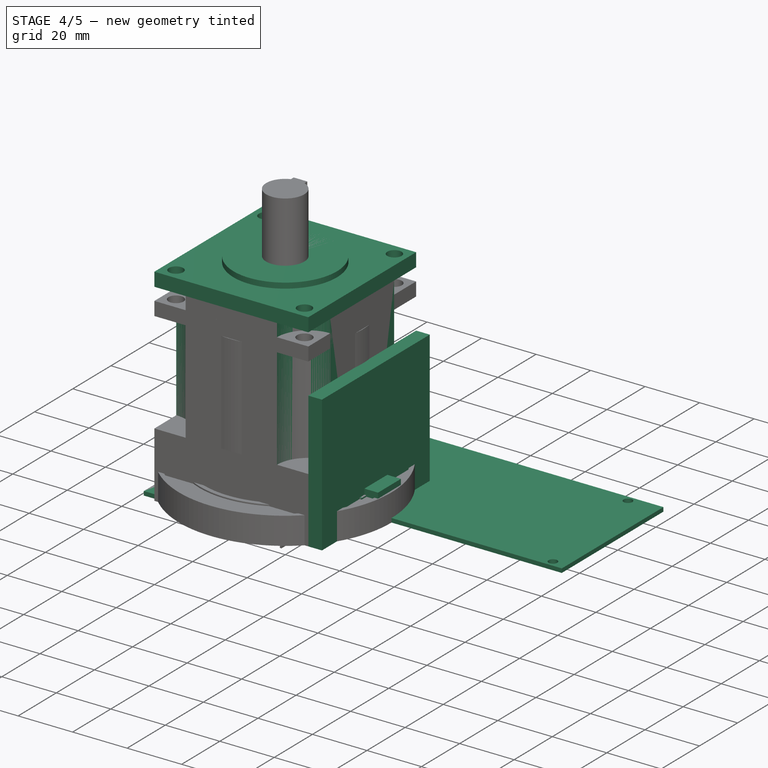
[diagram: stage 4 of 5 — iso view after this stage's code; geometry added in this stage tinted green]
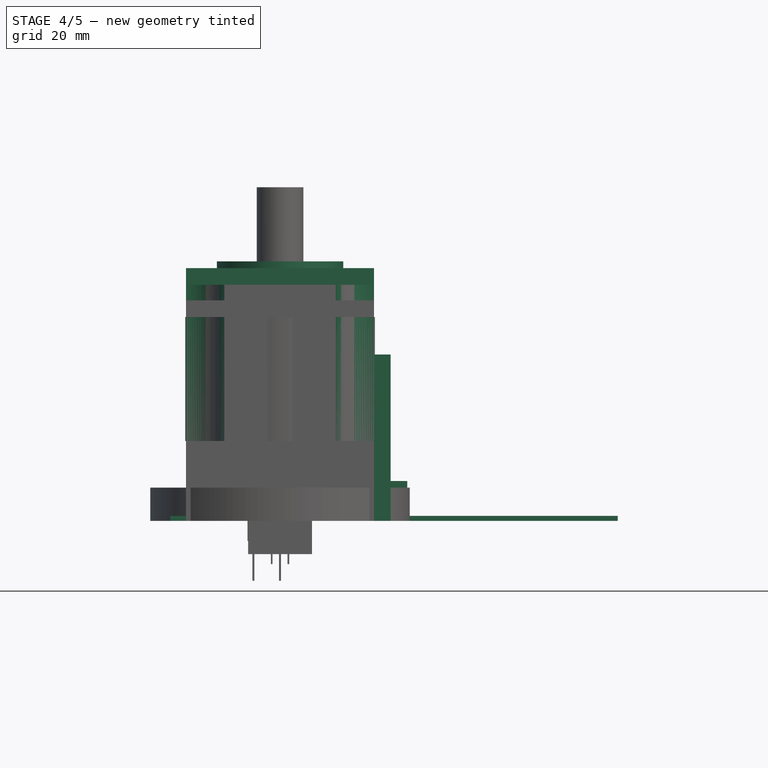
[diagram: stage 4 of 5 — front view after this stage's code; geometry added in this stage tinted green]
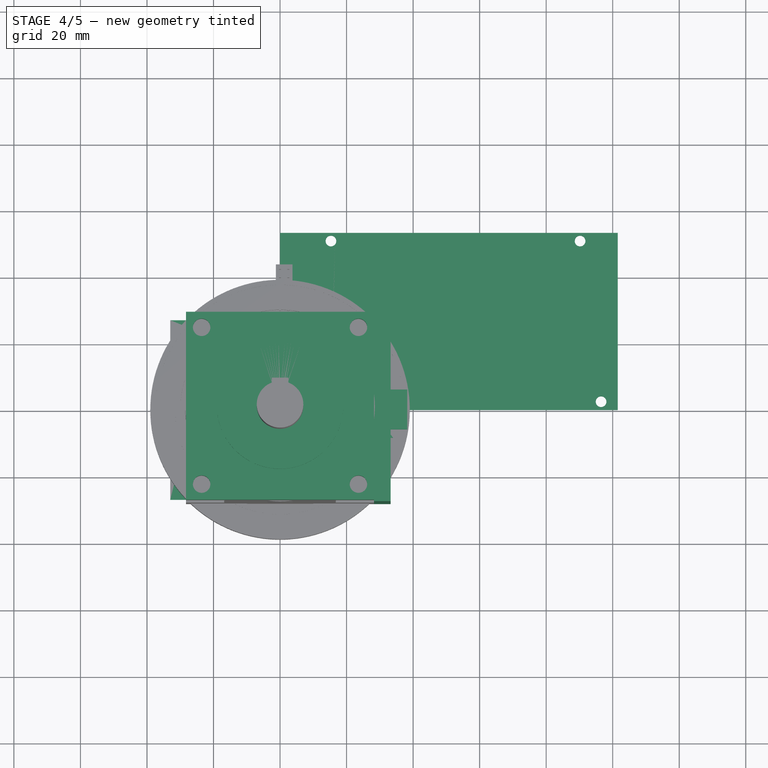
[diagram: stage 4 of 5 — top view after this stage's code; geometry added in this stage tinted green]
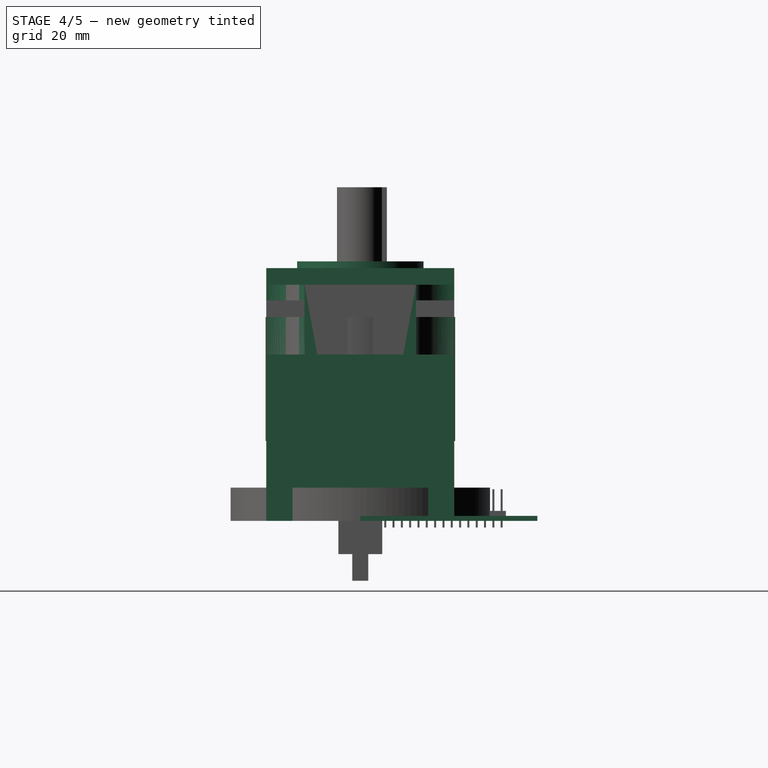
[diagram: stage 4 of 5 — right view after this stage's code; geometry added in this stage tinted green]
FEATURE [Sketcher::SketchObject] Sketch002  label="S_Nema17_33mm_Side"
  FullyConstrained = true
  MapMode = 5
  Placement = pos=(0,0,0) rot=(0.57735,0.57735,0.57735;2.0944rad)
  expr: Constraints[11] = <<S_Nema17_Master_Body>>.Constraints.BodyWidth
  sketch-geometry (6):
    g0: LineSegment StartX=21 StartY=0 StartZ=0 EndX=-21 EndY=0 EndZ=0
    g1: LineSegment StartX=21 StartY=0 StartZ=0 EndX=21 EndY=33 EndZ=0
    g2: LineSegment StartX=-21 StartY=33 StartZ=0 EndX=-21 EndY=0 EndZ=0
    g3: LineSegment StartX=1 StartY=53 StartZ=0 EndX=1 EndY=35 EndZ=0
    g4: LineSegment StartX=-16 StartY=33 StartZ=0 EndX=-16 EndY=28 EndZ=0
    g5: LineSegment StartX=16 StartY=35 StartZ=0 EndX=16 EndY=33 EndZ=0
  constraints (21):
    c: Coincident(g2,g0)
    c: Vertical(g2)
    c: Vertical(g1)
    c: Coincident(g0,g1)
    c: DistanceY(g2,g2) = 33  'BodyHeight'
    c: DistanceY(g3,g3) = 18  'ShaftLength'
    c: Vertical(g3)
    c: Vertical(g4)
    c: DistanceY(g4,g4) = 5  'HoleDepth'
    c: DistanceX(g2,g4) = 5
    c: Horizontal(g0)
    c: DistanceX(g0,g0) = 42
    c: Symmetric(g0,g0,g-1)
    c: Horizontal(g1,g2)
    c: Horizontal(g4,g2)
    c: Vertical(g5)
    c: Horizontal(g5,g3)
    c: Horizontal(g5,g1)
    c: DistanceY(g5,g5) = 2  'CircleInset'
    c: DistanceX(g5,g1) = 5
    c: DistanceX(g3,g1) = 20
FEATURE [Sketcher::SketchObject] Sketch003  label="S_Nema17_Master_Body"
  FullyConstrained = true
  MapMode = 5
  sketch-geometry (16):
    g0: LineSegment StartX=21 StartY=-15 StartZ=0 EndX=21 EndY=15 EndZ=0
    g1: LineSegment StartX=15 StartY=21 StartZ=0 EndX=-15 EndY=21 EndZ=0
    g2: LineSegment StartX=-15 StartY=15 StartZ=0 EndX=-15 EndY=-15 EndZ=0
    g3: LineSegment StartX=-15 StartY=15 StartZ=0 EndX=15 EndY=15 EndZ=0
    g4: LineSegment StartX=-15 StartY=-21 StartZ=0 EndX=15 EndY=-21 EndZ=0
    g5: LineSegment StartX=15 StartY=15 StartZ=0 EndX=21 EndY=15 EndZ=0
    g6: ArcOfCircle CenterX=15 CenterY=-15 CenterZ=0 NormalX=0 NormalY=0 NormalZ=1 AngleXU=0 Radius=6 StartAngle=4.71239 EndAngle=6.28319
    g7: LineSegment StartX=-15 StartY=-15 StartZ=0 EndX=-15 EndY=-21 EndZ=0
    g8: LineSegment StartX=-15 StartY=15 StartZ=0 EndX=-15 EndY=21 EndZ=0
    g9: LineSegment StartX=-15 StartY=15 StartZ=0 EndX=-21 EndY=15 EndZ=0
    g10: LineSegment StartX=15 StartY=15 StartZ=0 EndX=15 EndY=-15 EndZ=0
    g11: LineSegment StartX=15 StartY=-15 StartZ=0 EndX=-15 EndY=-15 EndZ=0
    g12: ArcOfCircle CenterX=15 CenterY=15 CenterZ=0 NormalX=0 NormalY=0 NormalZ=1 AngleXU=0 Radius=6 StartAngle=0 EndAngle=1.5708
    g13: LineSegment StartX=-21 StartY=15 StartZ=0 EndX=-21 EndY=-15 EndZ=0
    g14: ArcOfCircle CenterX=-15 CenterY=-15 CenterZ=0 NormalX=0 NormalY=0 NormalZ=1 AngleXU=0 Radius=6 StartAngle=3.14159 EndAngle=4.71239
    g15: ArcOfCircle CenterX=-15 CenterY=15 CenterZ=0 NormalX=0 NormalY=0 NormalZ=1 AngleXU=0 Radius=6 StartAngle=1.5708 EndAngle=3.14159
  constraints (35):
    c: Coincident(g7,g2)
    c: Coincident(g7,g4)
    c: Vertical(g7)
    c: Vertical(g2)
    c: Horizontal(g1)
    c: Coincident(g3,g2)
    c: Horizontal(g9)
    c: Equal(g9,g5)
    c: DistanceX(g9,g5) = 42  'BodyWidth'
    c: Coincident(g0,g5)
    c: Vertical(g0)
    c: Tangent(g0,g6) = -1.5708
    c: Tangent(g4,g6) = -1.5708
    c: Coincident(g1,g8)
    c: Vertical(g10)
    c: Tangent(g12,g1) = -1.5708
    c: Tangent(g12,g0) = -1.5708
    c: Coincident(g13,g9)
    c: Tangent(g14,g4) = -1.5708
    c: Tangent(g14,g13) = -1.5708
    c: Tangent(g15,g1) = -1.5708
    c: Tangent(g15,g13) = -1.5708
    c: Coincident(g2,g8)
    c: Coincident(g2,g9)
    c: Coincident(g2,g15)
    c: Coincident(g3,g5)
    c: Coincident(g3,g10)
    c: Coincident(g3,g12)
    c: Coincident(g6,g10)
    c: Coincident(g6,g11)
    c: Coincident(g2,g11)
    c: Coincident(g2,g14)
    c: Symmetric(g6,g15,g-1)
    c: Diameter(g12) = 12
    c: Equal(g1,g13)
FEATURE [Sketcher::SketchObject] Sketch004  label="S_Nema17_Master_Holes"
  FullyConstrained = true
  MapMode = 5
  sketch-geometry (8):
    g0: Circle CenterX=-15.5 CenterY=15.5 CenterZ=0 NormalX=0 NormalY=0 NormalZ=1 AngleXU=0 Radius=1.5
    g1: Circle CenterX=15.5 CenterY=15.5 CenterZ=0 NormalX=0 NormalY=0 NormalZ=1 AngleXU=0 Radius=1.5
    g2: Circle CenterX=15.5 CenterY=-15.5 CenterZ=0 NormalX=0 NormalY=0 NormalZ=1 AngleXU=0 Radius=1.5
    g3: Circle CenterX=-15.5 CenterY=-15.5 CenterZ=0 NormalX=0 NormalY=0 NormalZ=1 AngleXU=0 Radius=1.5
    g4: LineSegment StartX=-15.5 StartY=15.5 StartZ=0 EndX=-15.5 EndY=-15.5 EndZ=0
    g5: LineSegment StartX=-15.5 StartY=15.5 StartZ=0 EndX=15.5 EndY=15.5 EndZ=0
    g6: LineSegment StartX=15.5 StartY=15.5 StartZ=0 EndX=15.5 EndY=-15.5 EndZ=0
    g7: LineSegment StartX=15.5 StartY=-15.5 StartZ=0 EndX=-15.5 EndY=-15.5 EndZ=0
  constraints (19):
    c: Vertical(g4)
    c: Coincident(g5,g4)
    c: Coincident(g5,g0)
    c: Coincident(g3,g4)
    c: Horizontal(g5)
    c: Coincident(g1,g5)
    c: Coincident(g6,g1)
    c: Coincident(g6,g2)
    c: Vertical(g6)
    c: Coincident(g7,g2)
    c: Coincident(g7,g3)
    c: Horizontal(g7)
    c: DistanceX(g0,g1) = 31  'HoleSeparation'
    c: Diameter(g0) = 3
    c: Equal(g2,g0)
    c: Equal(g0,g1)
    c: Equal(g1,g3)
    c: Equal(g5,g4)
    c: Symmetric(g2,g0,g-1)
FEATURE [Sketcher::SketchObject] Sketch005  label="S_Nema17_Master_RaisedFace"
  FullyConstrained = true
  MapMode = 5
  sketch-geometry (1):
    g0: Circle CenterX=0 CenterY=0 CenterZ=0 NormalX=0 NormalY=0 NormalZ=1 AngleXU=0 Radius=11
  constraints (2):
    c: Diameter(g0) = 22
    c: Coincident(g-1,g0)
FEATURE [Sketcher::SketchObject] Sketch006  label="S_Nema17_Master_Shaft"
  FullyConstrained = true
  MapMode = 5
  sketch-geometry (2):
    g0: GeomPoint X=0 Y=0 Z=0
    g1: Circle CenterX=0 CenterY=0 CenterZ=0 NormalX=0 NormalY=0 NormalZ=1 AngleXU=0 Radius=2.5
  constraints (3):
    c: Diameter(g1) = 5  'ShaftDiameter'
    c: Coincident(g0,g-1)
    c: Coincident(g0,g1)
FEATURE [App::DocumentObjectGroup] Group001  label="Group_Nema17_Profiles"
  Group = -> [Sketch003,Sketch004,Sketch005,Sketch006]
FEATURE [PartDesign::SubShapeBinder] Binder  label="BIND_S_Nema17_20mm_Body"
  BindCopyOnChange = 0
  BindMode = 0
  ClaimChildren = false
  Context = -> Part [Body001.Binder.]
  Fuse = false
  MakeFace = true
  OffsetFill = false
  OffsetIntersection = false
  OffsetJoinType = 0
  OffsetOpenResult = false
  PartialLoad = false
  Relative = true
  Support = -> [Sketch003]
  _Version = 2
FEATURE [PartDesign::Pad] Pad  label="PAD_Nema17_20mm_Body"
  Direction = (0,0,1)
  Length = 20
  Length2 = 10
  Profile = -> Binder
  Type = 0
  expr: Length = <<S_Nema17_20mm_Side>>.Constraints.BodyHeight
FEATURE [PartDesign::SubShapeBinder] Binder001  label="BIND_S_Nema17_33mm_Body"
  BindCopyOnChange = 0
  BindMode = 0
  ClaimChildren = false
  Context = -> Part001 [Body002.Binder001.]
  Fuse = false
  MakeFace = true
  OffsetFill = false
  OffsetIntersection = false
  OffsetJoinType = 0
  OffsetOpenResult = false
  PartialLoad = false
  Relative = true
  Support = -> [Sketch003]
  _Version = 2
FEATURE [PartDesign::Pad] Pad001  label="PAD_Nema17_33mm_Body"
  Direction = (0,0,1)
  Length = 33
  Length2 = 10
  Profile = -> Binder001
  Type = 0
  expr: Length = <<S_Nema17_33mm_Side>>.Constraints.BodyHeight
FEATURE [PartDesign::SubShapeBinder] Binder002  label="BIND_S_Nema17_33mm_Holes"
  BindCopyOnChange = 0
  BindMode = 0
  ClaimChildren = false
  Context = -> Part001 [Body002.Binder002.]
  Fuse = false
  MakeFace = true
  OffsetFill = false
  OffsetIntersection = false
  OffsetJoinType = 0
  OffsetOpenResult = false
  PartialLoad = false
  Placement = pos=(0,0,33) rot=(0,0,1;0rad)
  Relative = true
  Support = -> [Sketch004]
  _Version = 2
  expr: .Placement.Base.z = <<S_Nema17_33mm_Side>>.Constraints.BodyHeight
FEATURE [PartDesign::Pocket] Pocket  label="PAD_Nema17_33mm_Holes"
  BaseFeature = -> Pad001
  Direction = (0,0,-1)
  Length = 5
  Length2 = 5
  Profile = -> Binder002
  Type = 0
  expr: Length = <<S_Nema17_33mm_Side>>.Constraints.HoleDepth
FEATURE [PartDesign::SubShapeBinder] Binder003  label="BIND_S_Nema17_33mm_RaisedFace"
  BindCopyOnChange = 0
  BindMode = 0
  ClaimChildren = false
  Context = -> Part001 [Body002.Binder003.]
  Fuse = false
  MakeFace = true
  OffsetFill = false
  OffsetIntersection = false
  OffsetJoinType = 0
  OffsetOpenResult = false
  PartialLoad = false
  Placement = pos=(0,0,33) rot=(0,0,1;0rad)
  Relative = true
  Support = -> [Sketch005]
  _Version = 2
  expr: .Placement.Base.z = <<S_Nema17_33mm_Side>>.Constraints.BodyHeight
FEATURE [PartDesign::Pad] Pad002  label="PAD_Nema17_33mm_RaisedFace"
  BaseFeature = -> Pocket
  Direction = (0,0,1)
  Length = 2
  Length2 = 10
  Profile = -> Binder003
  Type = 0
  expr: Length = <<S_Nema17_33mm_Side>>.Constraints.CircleInset
FEATURE [Sketcher::SketchObject] Sketch007  label="S_Nema17_20mm_Side"
  FullyConstrained = true
  MapMode = 5
  Placement = pos=(0,0,0) rot=(0.57735,0.57735,0.57735;2.0944rad)
  expr: Constraints[11] = <<S_Nema17_Master_Body>>.Constraints.BodyWidth
  sketch-geometry (6):
    g0: LineSegment StartX=21 StartY=0 StartZ=0 EndX=-21 EndY=0 EndZ=0
    g1: LineSegment StartX=21 StartY=0 StartZ=0 EndX=21 EndY=20 EndZ=0
    g2: LineSegment StartX=-21 StartY=20 StartZ=0 EndX=-21 EndY=0 EndZ=0
    g3: LineSegment StartX=1 StartY=40 StartZ=0 EndX=1 EndY=22 EndZ=0
    g4: LineSegment StartX=-16 StartY=20 StartZ=0 EndX=-16 EndY=15 EndZ=0
    g5: LineSegment StartX=16 StartY=22 StartZ=0 EndX=16 EndY=20 EndZ=0
  constraints (21):
    c: Coincident(g2,g0)
    c: Vertical(g2)
    c: Vertical(g1)
    c: Coincident(g0,g1)
    c: DistanceY(g2,g2) = 20  'BodyHeight'
    c: DistanceY(g3,g3) = 18  'ShaftLength'
    c: Vertical(g3)
    c: Vertical(g4)
    c: DistanceY(g4,g4) = 5  'HoleDepth'
    c: DistanceX(g2,g4) = 5
    c: Horizontal(g0)
    c: DistanceX(g0,g0) = 42
    c: Symmetric(g0,g0,g-1)
    c: Horizontal(g1,g2)
    c: Horizontal(g4,g2)
    c: Vertical(g5)
    c: Horizontal(g5,g3)
    c: Horizontal(g5,g1)
    c: DistanceY(g5,g5) = 2  'CircleInset'
    c: DistanceX(g5,g1) = 5
    c: DistanceX(g3,g1) = 20
FEATURE [PartDesign::SubShapeBinder] Binder004  label="BIND_S_Nema17_33mm_Shaft"
  BindCopyOnChange = 0
  BindMode = 0
  ClaimChildren = false
  Context = -> Part001 [Body002.Binder004.]
  Fuse = false
  MakeFace = true
  OffsetFill = false
  OffsetIntersection = false
  OffsetJoinType = 0
  OffsetOpenResult = false
  PartialLoad = false
  Placement = pos=(0,0,35) rot=(0,0,1;0rad)
  Relative = true
  Support = -> [Sketch006]
  _Version = 2
  expr: .Placement.Base.z = <<S_Nema17_33mm_Side>>.Constraints.BodyHeight + <<S_Nema17_33mm_Side>>.Constraints.CircleInset
FEATURE [PartDesign::Pad] Pad003  label="PAD_Nema17_33mm_Shaft"
  BaseFeature = -> Pad002
  Direction = (0,0,1)
  Length = 18
  Length2 = 10
  Profile = -> Binder004
  Type = 0
  expr: Length = <<S_Nema17_33mm_Side>>.Constraints.ShaftLength
FEATURE [PartDesign::Body] Body001  label="B_Nema17_20mm"
  Group = -> [Binder,Pad,Sketch007,Binder005,Binder006,Binder007,Pocket001,Pad004,Pad005,Sketch025,Pad012]
  Origin = -> Origin005
  Tip = -> Pad012
FEATURE [App::Part] Part  label="P_Nema17_20mm"
  DrawingName = standard-parts.FCStd
  Group = -> [Body001,LCS_Nema17_22_Base,LCS_Nema17_22mm_MountFace,LCS_Nema17_22mm_ShaftTip,LCS_Nema17_22mm_Hole0,LCS_Nema17_22mm_Hole001,LCS_Nema17_22mm_Hole002,LCS_Nema17_22mm_Hole003]
  Origin = -> Origin001
  PartDescription = B_Nema17_20mm
  PartID = standard-parts
FEATURE [Sketcher::SketchObject] Sketch026  label="S_Nema17_33mm_Power"
  AttachmentOffset = pos=(0,0,21) rot=(0,0,1;0rad)
  FullyConstrained = true
  MapMode = 5
  Placement = pos=(21,-4.7e-15,4.7e-15) rot=(0.57735,0.57735,0.57735;2.0944rad)
  Support = -> [YZ_Plane006]
  expr: .AttachmentOffset.Base.z = <<S_Nema17_Master_Body>>.Constraints.BodyWidth / 2
  sketch-geometry (4):
    g0: LineSegment StartX=-8.5 StartY=10 StartZ=0 EndX=8.5 EndY=10 EndZ=0
    g1: LineSegment StartX=8.5 StartY=10 StartZ=0 EndX=8.5 EndY=0 EndZ=0
    g2: LineSegment StartX=8.5 StartY=0 StartZ=0 EndX=-8.5 EndY=0 EndZ=0
    g3: LineSegment StartX=-8.5 StartY=0 StartZ=0 EndX=-8.5 EndY=10 EndZ=0
  constraints (11):
    c: Coincident(g0,g1)
    c: Coincident(g1,g2)
    c: Coincident(g2,g3)
    c: Coincident(g3,g0)
    c: Horizontal(g0)
    c: Horizontal(g2)
    c: Vertical(g1)
    c: Vertical(g3)
    c: DistanceY(g3,g3) = 10
    c: DistanceX(g0,g0) = 17
    c: Symmetric(g2,g1,g-1)
FEATURE [PartDesign::Pad] Pad013  label="PAD_Nema17_33mm_Power"
  BaseFeature = -> Pad003
  Direction = (1,-2e-16,3e-16)
  Length = 13
  Length2 = 10
  Profile = -> Sketch026
  ReferenceAxis = -> Sketch026 [N_Axis]
  Type = 0
FEATURE [PartDesign::Body] Body013  label="B_Fan_30mm"
  Group = -> [Sketch051,Pad022,Sketch052,Pad023,PolarPattern001]
  Origin = -> Origin033
  Tip = -> PolarPattern001
FEATURE [PartDesign::CoordinateSystem] LCS_Fan_30mm_Bolt0
  AttacherType = Attacher::AttachEngine3D
  MapMode = 11
  Placement = pos=(-11.875,-11.875,10) rot=(0,0,1;1.5708rad)
  Support = -> [PolarPattern001]
FEATURE [PartDesign::CoordinateSystem] LCS_Fan_30mm_Bolt2
  AttacherType = Attacher::AttachEngine3D
  MapMode = 11
  Placement = pos=(11.875,-11.875,10) rot=(0,0,1;1.5708rad)
  Support = -> [PolarPattern001]
FEATURE [PartDesign::CoordinateSystem] LCS_Fan_30mm_Bolt3
  AttacherType = Attacher::AttachEngine3D
  MapMode = 11
  Placement = pos=(11.875,11.875,10) rot=(0,0,1;1.5708rad)
  Support = -> [PolarPattern001]
FEATURE [App::Part] Part013  label="P_Fan_30mm"
  DrawingName = standard-parts.FCStd
  Group = -> [Body013,LCS_Fan_30mm_Bottom,LCS_Fan_30mm_Top,LCS_Fan_30mm_Bolt0,LCS_Fan_30mm_Bolt1,LCS_Fan_30mm_Bolt2,LCS_Fan_30mm_Bolt3]
  Origin = -> Origin032
  PartDescription = B_Fan_30mm
  PartID = standard-parts
FEATURE [Sketcher::SketchObject] Sketch055  label="S_Nema23_Master_Body"
  FullyConstrained = true
  sketch-geometry (5):
    g0: LineSegment StartX=-28.25 StartY=28.25 StartZ=0 EndX=-28.25 EndY=-28.25 EndZ=0
    g1: LineSegment StartX=-28.25 StartY=-28.25 StartZ=0 EndX=28.25 EndY=-28.25 EndZ=0
    g2: LineSegment StartX=28.25 StartY=-28.25 StartZ=0 EndX=28.25 EndY=28.25 EndZ=0
    g3: LineSegment StartX=28.25 StartY=28.25 StartZ=0 EndX=-28.25 EndY=28.25 EndZ=0
    g4: GeomPoint X=0 Y=-8e-16 Z=0
  constraints (12):
    c: Coincident(g0,g1)
    c: Coincident(g1,g2)
    c: Coincident(g2,g3)
    c: Coincident(g3,g0)
    c: Horizontal(g1)
    c: Horizontal(g3)
    c: Vertical(g0)
    c: Vertical(g2)
    c: Symmetric(g1,g0,g4)
    c: Coincident(g4,g-1)
    c: Equal(g3,g2)
    c: DistanceY(g2,g2) = 56.5  'BodyWidth'
FEATURE [Sketcher::SketchObject] Sketch056  label="S_Nema23_Master_Holes"
  FullyConstrained = true
  MapMode = 5
  sketch-geometry (8):
    g0: Circle CenterX=-23.57 CenterY=23.57 CenterZ=0 NormalX=0 NormalY=0 NormalZ=1 AngleXU=0 Radius=2.625
    g1: Circle CenterX=23.57 CenterY=23.57 CenterZ=0 NormalX=0 NormalY=0 NormalZ=1 AngleXU=0 Radius=2.625
    g2: Circle CenterX=23.57 CenterY=-23.57 CenterZ=0 NormalX=0 NormalY=0 NormalZ=1 AngleXU=0 Radius=2.625
    g3: Circle CenterX=-23.57 CenterY=-23.57 CenterZ=0 NormalX=0 NormalY=0 NormalZ=1 AngleXU=0 Radius=2.625
    g4: LineSegment StartX=-23.57 StartY=23.57 StartZ=0 EndX=-23.57 EndY=-23.57 EndZ=0
    g5: LineSegment StartX=-23.57 StartY=23.57 StartZ=0 EndX=23.57 EndY=23.57 EndZ=0
    g6: LineSegment StartX=23.57 StartY=23.57 StartZ=0 EndX=23.57 EndY=-23.57 EndZ=0
    g7: LineSegment StartX=23.57 StartY=-23.57 StartZ=0 EndX=-23.57 EndY=-23.57 EndZ=0
  constraints (19):
    c: Vertical(g4)
    c: Coincident(g5,g4)
    c: Coincident(g5,g0)
    c: Coincident(g3,g4)
    c: Horizontal(g5)
    c: Coincident(g1,g5)
    c: Coincident(g6,g1)
    c: Coincident(g6,g2)
    c: Vertical(g6)
    c: Coincident(g7,g2)
    c: Coincident(g7,g3)
    c: Horizontal(g7)
    c: DistanceX(g0,g1) = 47.14  'HoleSeparation'
    c: Diameter(g0) = 5.25
    c: Equal(g2,g0)
    c: Equal(g0,g1)
    c: Equal(g1,g3)
    c: Equal(g5,g4)
    c: Symmetric(g2,g0,g-1)
FEATURE [Sketcher::SketchObject] Sketch057  label="S_Nema23_Master_RaisedFace"
  FullyConstrained = true
  MapMode = 5
  sketch-geometry (1):
    g0: Circle CenterX=0 CenterY=0 CenterZ=0 NormalX=0 NormalY=0 NormalZ=1 AngleXU=0 Radius=19
  constraints (2):
    c: Diameter(g0) = 38
    c: Coincident(g-1,g0)
FEATURE [Sketcher::SketchObject] Sketch058  label="S_Nema23_Master_Shaft"
  FullyConstrained = true
  MapMode = 5
  sketch-geometry (2):
    g0: GeomPoint X=0 Y=0 Z=0
    g1: Circle CenterX=0 CenterY=0 CenterZ=0 NormalX=0 NormalY=0 NormalZ=1 AngleXU=0 Radius=3.175
  constraints (3):
    c: Diameter(g1) = 6.35  'ShaftDiameter'
    c: Coincident(g0,g-1)
    c: Coincident(g0,g1)
FEATURE [PartDesign::SubShapeBinder] Binder008  label="BIND_Nema23_76mm_Body"
  BindCopyOnChange = 0
  BindMode = 0
  ClaimChildren = false
  Context = -> Part015 [Body014.Binder008.]
  Fuse = false
  MakeFace = true
  OffsetFill = false
  OffsetIntersection = false
  OffsetJoinType = 0
  OffsetOpenResult = false
  PartialLoad = false
  Relative = true
  Support = -> [Sketch055]
  _Version = 2
FEATURE [PartDesign::SubShapeBinder] Binder009  label="BIND_Nema23_76mm_Holes"
  BindCopyOnChange = 0
  BindMode = 0
  ClaimChildren = false
  Context = -> Part015 [Body014.Binder009.]
  Fuse = false
  MakeFace = true
  OffsetFill = false
  OffsetIntersection = false
  OffsetJoinType = 0
  OffsetOpenResult = false
  PartialLoad = false
  Placement = pos=(0,0,76) rot=(0,0,1;0rad)
  Relative = true
  Support = -> [Sketch056]
  _Version = 2
  expr: .Placement.Base.z = <<S_Nema23_76mm_Side>>.Constraints.BodyHeight
FEATURE [PartDesign::SubShapeBinder] Binder010  label="BIND_Nema23_76mm_RaisedFace"
  BindCopyOnChange = 0
  BindMode = 0
  ClaimChildren = false
  Context = -> Part015 [Body014.Binder010.]
  Fuse = false
  MakeFace = true
  OffsetFill = false
  OffsetIntersection = false
  OffsetJoinType = 0
  OffsetOpenResult = false
  PartialLoad = false
  Placement = pos=(0,0,76) rot=(0,0,1;0rad)
  Relative = true
  Support = -> [Sketch057]
  _Version = 2
  expr: .Placement.Base.z = <<S_Nema23_76mm_Side>>.Constraints.BodyHeight
FEATURE [PartDesign::SubShapeBinder] Binder011  label="BIND_Nema23_76mm_Shaft"
  BindCopyOnChange = 0
  BindMode = 0
  ClaimChildren = false
  Context = -> Part015 [Body014.Binder011.]
  Fuse = false
  MakeFace = true
  OffsetFill = false
  OffsetIntersection = false
  OffsetJoinType = 0
  OffsetOpenResult = false
  PartialLoad = false
  Placement = pos=(0,0,78) rot=(0,0,1;0rad)
  Relative = true
  Support = -> [Sketch058]
  _Version = 2
  expr: .Placement.Base.z = <<S_Nema23_76mm_Side>>.Constraints.BodyHeight + <<S_Nema23_76mm_Side>>.Constraints.CircleInset
FEATURE [Sketcher::SketchObject] Sketch059  label="S_Nema23_76mm_Side"
  FullyConstrained = true
  MapMode = 5
  Placement = pos=(0,0,0) rot=(0.57735,0.57735,0.57735;2.0944rad)
  expr: Constraints[11] = <<S_Nema23_Master_Body>>.Constraints.BodyWidth
  sketch-geometry (7):
    g0: LineSegment StartX=28.25 StartY=0 StartZ=0 EndX=-28.25 EndY=0 EndZ=0
    g1: LineSegment StartX=28.25 StartY=0 StartZ=0 EndX=28.25 EndY=76 EndZ=0
    g2: LineSegment StartX=-28.25 StartY=76 StartZ=0 EndX=-28.25 EndY=0 EndZ=0
    g3: LineSegment StartX=8.25 StartY=97 StartZ=0 EndX=8.25 EndY=78 EndZ=0
    g4: LineSegment StartX=-23.25 StartY=76 StartZ=0 EndX=-23.25 EndY=66 EndZ=0
    g5: LineSegment StartX=23.25 StartY=78 StartZ=0 EndX=23.25 EndY=76 EndZ=0
    g6: LineSegment StartX=23.25 StartY=76 StartZ=0 EndX=23.25 EndY=71 EndZ=0
  constraints (25):
    c: Coincident(g2,g0)
    c: Vertical(g2)
    c: Vertical(g1)
    c: Coincident(g0,g1)
    c: DistanceY(g2,g2) = 76  'BodyHeight'
    c: DistanceY(g3,g3) = 19  'ShaftLength'
    c: Vertical(g3)
    c: Vertical(g4)
    c: DistanceY(g4,g4) = 10  'HoleDepth'
    c: DistanceX(g2,g4) = 5
    c: Horizontal(g0)
    c: DistanceX(g0,g0) = 56.5
    c: Symmetric(g0,g0,g-1)
    c: Horizontal(g1,g2)
    c: Horizontal(g4,g2)
    c: Vertical(g5)
    c: Horizontal(g5,g3)
    c: Horizontal(g5,g1)
    c: DistanceY(g5,g5) = 2  'CircleInset'
    c: DistanceX(g5,g1) = 5
    c: DistanceX(g3,g1) = 20
    c: Coincident(g6,g5)
    c: Vertical(g6)
    c: DistanceY(g6,g6) = 5  'TopPlateHeight'
    c: DistanceY(g0,g6) = 71  'BoltHoleCutout'
FEATURE [Sketcher::SketchObject] Sketch060  label="S_Nema23_Master_Body_BoltHoles"
  ExternalGeometry = -> [Sketch055]
  FullyConstrained = true
  sketch-geometry (4):
    g0: Circle CenterX=-28.25 CenterY=28.25 CenterZ=0 NormalX=0 NormalY=0 NormalZ=1 AngleXU=0 Radius=11.5
    g1: Circle CenterX=28.25 CenterY=28.25 CenterZ=0 NormalX=0 NormalY=0 NormalZ=1 AngleXU=0 Radius=11.5
    g2: Circle CenterX=28.25 CenterY=-28.25 CenterZ=0 NormalX=0 NormalY=0 NormalZ=1 AngleXU=0 Radius=11.5
    g3: Circle CenterX=-28.25 CenterY=-28.25 CenterZ=0 NormalX=0 NormalY=0 NormalZ=1 AngleXU=0 Radius=11.5
  constraints (8):
    c: Coincident(g0,g-3)
    c: Coincident(g1,g-4)
    c: Coincident(g2,g-5)
    c: Coincident(g3,g-6)
    c: Equal(g0,g1)
    c: Equal(g1,g2)
    c: Equal(g2,g3)
    c: Diameter(g0) = 23
FEATURE [App::DocumentObjectGroup] Group018  label="Group_Nema23_Profiles"
  Group = -> [Sketch055,Sketch056,Sketch057,Sketch058,Sketch060]
FEATURE [PartDesign::SubShapeBinder] Binder012  label="BIND_Nema23_76mm_Body_BoltHoles"
  BindCopyOnChange = 0
  BindMode = 0
  ClaimChildren = false
  Context = -> Part015 [Body014.Binder012.]
  Fuse = false
  MakeFace = true
  OffsetFill = false
  OffsetIntersection = false
  OffsetJoinType = 0
  OffsetOpenResult = false
  PartialLoad = false
  Relative = true
  Support = -> [Sketch060]
  _Version = 2
FEATURE [PartDesign::Pad] Pad026  label="PAD_Nema23_76mm_Body"
  Direction = (0,0,1)
  Length = 76
  Length2 = 10
  Profile = -> Binder008
  Type = 0
  expr: Length = <<S_Nema23_76mm_Side>>.Constraints.BodyHeight
FEATURE [PartDesign::Pocket] Pocket030  label="POCKET_Nema23_76mm_BoltHoles"
  BaseFeature = -> Pad026
  Direction = (0,0,-1)
  Length = 71
  Length2 = 5
  Profile = -> Binder012
  Reversed = true
  Type = 0
  expr: Length = <<S_Nema23_76mm_Side>>.Constraints.BoltHoleCutout
FEATURE [PartDesign::Pocket] Pocket031  label="POCKET_Nema23_76m_Holes"
  BaseFeature = -> Pocket030
  Direction = (0,0,-1)
  Length = 10
  Length2 = 5
  Profile = -> Binder009
  Type = 0
FEATURE [PartDesign::Pad] Pad027  label="PAD_Nema23_76mm_CircleInset"
  BaseFeature = -> Pocket031
  Direction = (0,0,1)
  Length = 2
  Length2 = 10
  Profile = -> Binder010
  Type = 0
  expr: Length = <<S_Nema23_76mm_Side>>.Constraints.CircleInset
FEATURE [PartDesign::Pad] Pad028  label="PAD_Nema23_76mm_Shaft"
  BaseFeature = -> Pad027
  Direction = (0,0,1)
  Length = 19
  Length2 = 10
  Profile = -> Binder011
  Type = 0
  expr: Length = <<S_Nema23_76mm_Side>>.Constraints.ShaftLength
FEATURE [PartDesign::CoordinateSystem] LCS_Nema23_76mm_Origin
  AttacherType = Attacher::AttachEngine3D
FEATURE [PartDesign::CoordinateSystem] LCS_Nema23_76mm_Shaft  label="LCS_Nema23_76mm_ShaftTip"
  AttacherType = Attacher::AttachEngine3D
  Placement = pos=(0,0,97) rot=(0,0,1;0rad)
  expr: .Placement.Base.z = <<S_Nema23_76mm_Side>>.Constraints.BodyHeight + <<S_Nema23_76mm_Side>>.Constraints.CircleInset + <<S_Nema23_76mm_Side>>.Constraints.ShaftLength
FEATURE [PartDesign::CoordinateSystem] LCS_Nema23_76mm_MountFace
  AttacherType = Attacher::AttachEngine3D
  Placement = pos=(0,0,76) rot=(0,0,1;0rad)
  expr: .Placement.Base.z = <<S_Nema23_76mm_Side>>.Constraints.BodyHeight
FEATURE [PartDesign::CoordinateSystem] LCS_Nema23_76mm_Hole0
  AttacherType = Attacher::AttachEngine3D
  Placement = pos=(23.57,23.57,76) rot=(0,0,1;0rad)
  expr: .Placement.Base.x = <<S_Nema23_Master_Holes>>.Constraints.HoleSeparation / 2
  expr: .Placement.Base.y = <<S_Nema23_Master_Holes>>.Constraints.HoleSeparation / 2
  expr: .Placement.Base.z = <<S_Nema23_76mm_Side>>.Constraints.BodyHeight
FEATURE [PartDesign::CoordinateSystem] LCS_Nema23_76mm_Hole1
  AttacherType = Attacher::AttachEngine3D
  Placement = pos=(-23.57,23.57,76) rot=(0,0,1;0rad)
  expr: .Placement.Base.x = -<<S_Nema23_Master_Holes>>.Constraints.HoleSeparation / 2
  expr: .Placement.Base.y = <<S_Nema23_Master_Holes>>.Constraints.HoleSeparation / 2
  expr: .Placement.Base.z = <<S_Nema23_76mm_Side>>.Constraints.BodyHeight
FEATURE [PartDesign::CoordinateSystem] LCS_Nema23_76mm_Hole2
  AttacherType = Attacher::AttachEngine3D
  Placement = pos=(23.57,-23.57,76) rot=(0,0,1;0rad)
  expr: .Placement.Base.x = <<S_Nema23_Master_Holes>>.Constraints.HoleSeparation / 2
  expr: .Placement.Base.y = -<<S_Nema23_Master_Holes>>.Constraints.HoleSeparation / 2
  expr: .Placement.Base.z = <<S_Nema23_76mm_Side>>.Constraints.BodyHeight
FEATURE [PartDesign::CoordinateSystem] LCS_Nema23_76mm_Hole3
  AttacherType = Attacher::AttachEngine3D
  Placement = pos=(-23.57,-23.57,76) rot=(0,0,1;0rad)
  expr: .Placement.Base.x = -<<S_Nema23_Master_Holes>>.Constraints.HoleSeparation / 2
  expr: .Placement.Base.y = -<<S_Nema23_Master_Holes>>.Constraints.HoleSeparation / 2
  expr: .Placement.Base.z = <<S_Nema23_76mm_Side>>.Constraints.BodyHeight
FEATURE [Sketcher::SketchObject] Sketch061  label="S_Nema23_76mm_Power"
  AttachmentOffset = pos=(0,0,28.25) rot=(0,0,1;0rad)
  FullyConstrained = true
  MapMode = 5
  Placement = pos=(28.25,-6.3e-15,6.3e-15) rot=(0.57735,0.57735,0.57735;2.0944rad)
  Support = -> [YZ_Plane036]
  expr: .AttachmentOffset.Base.z = <<S_Nema23_Master_Body>>.Constraints.BodyWidth / 2
  sketch-geometry (6):
    g0: LineSegment StartX=-6 StartY=12 StartZ=0 EndX=6 EndY=12 EndZ=0
    g1: LineSegment StartX=6 StartY=12 StartZ=0 EndX=6 EndY=1 EndZ=0
    g2: LineSegment StartX=6 StartY=1 StartZ=0 EndX=-6 EndY=1 EndZ=0
    g3: LineSegment StartX=-6 StartY=1 StartZ=0 EndX=-6 EndY=12 EndZ=0
    g4: LineSegment StartX=6 StartY=1 StartZ=0 EndX=0 EndY=0 EndZ=0
    g5: LineSegment StartX=0 StartY=0 StartZ=0 EndX=-6 EndY=1 EndZ=0
  constraints (16):
    c: Coincident(g0,g1)
    c: Coincident(g1,g2)
    c: Coincident(g2,g3)
    c: Coincident(g3,g0)
    c: Horizontal(g0)
    c: Horizontal(g2)
    c: Vertical(g1)
    c: Vertical(g3)
    c: DistanceX(g2,g2) = 12
    c: DistanceY(g1,g1) = 11
    c: DistanceY(g-1,g1) = 1
    c: Coincident(g4,g1)
    c: Coincident(g4,g-1)
    c: Coincident(g5,g2)
    c: Equal(g5,g4)
    c: Coincident(g4,g5)
FEATURE [PartDesign::Pad] Pad029  label="PAD_Nema23_76mm_Power"
  BaseFeature = -> Pad028
  Direction = (1,-2e-16,3e-16)
  Length = 10
  Length2 = 10
  Profile = -> Sketch061
  ReferenceAxis = -> Sketch061 [N_Axis]
  Type = 0
FEATURE [PartDesign::Body] Body014  label="B_Nema23_76mm"
  Group = -> [Binder008,Binder009,Binder010,Binder011,Sketch059,Binder012,Pad026,Pocket030,Pocket031,Pad027,Pad028,Sketch061,Pad029]
  Origin = -> Origin036
  Tip = -> Pad029
FEATURE [App::Part] Part015  label="P_Nema23_76mm"
  DrawingName = standard-parts.FCStd
  Group = -> [Body014,LCS_Nema23_76mm_Origin,LCS_Nema23_76mm_Shaft,LCS_Nema23_76mm_MountFace,LCS_Nema23_76mm_Hole0,LCS_Nema23_76mm_Hole1,LCS_Nema23_76mm_Hole2,LCS_Nema23_76mm_Hole3]
  Origin = -> Origin
  PartDescription = B_Nema23_76mm
  PartID = standard-parts
FEATURE [PartDesign::SubShapeBinder] Binder013  label="BIND_Nema23_MountBracket_Body"
  BindCopyOnChange = 0
  BindMode = 0
  ClaimChildren = false
  Context = -> Part016 [Body015.Binder013.]
  Fuse = false
  MakeFace = true
  OffsetFill = false
  OffsetIntersection = false
  OffsetJoinType = 0
  OffsetOpenResult = false
  PartialLoad = false
  Relative = true
  Support = -> [Sketch055]
  _Version = 2
FEATURE [PartDesign::Pad] Pad030  label="PAD_Nema23_MountBracket_Body"
  Direction = (0,0,1)
  Length = 5
  Length2 = 10
  Profile = -> Binder013
  Type = 0
FEATURE [PartDesign::SubShapeBinder] Binder014  label="BIND_Nema23_MountBracket_Holes"
  BindCopyOnChange = 0
  BindMode = 0
  ClaimChildren = false
  Context = -> Part016 [Body015.Binder014.]
  Fuse = false
  MakeFace = true
  OffsetFill = false
  OffsetIntersection = false
  OffsetJoinType = 0
  OffsetOpenResult = false
  PartialLoad = false
  Relative = true
  Support = -> [Sketch056]
  _Version = 2
FEATURE [PartDesign::SubShapeBinder] Binder015  label="BIND_Nema23_MountBracket_RaisedFace"
  BindCopyOnChange = 0
  BindMode = 0
  ClaimChildren = false
  Context = -> Part016 [Body015.Binder015.]
  Fuse = false
  MakeFace = true
  OffsetFill = false
  OffsetIntersection = false
  OffsetJoinType = 0
  OffsetOpenResult = false
  PartialLoad = false
  Relative = true
  Support = -> [Sketch057]
  _Version = 2
FEATURE [PartDesign::Pocket] Pocket032  label="POCKET_Nema23_MountBracket_Holes"
  BaseFeature = -> Pad030
  Direction = (0,0,-1)
  Length = 5
  Length2 = 5
  Profile = -> Binder014
  Reversed = true
  Type = 0
FEATURE [PartDesign::Pocket] Pocket033  label="POCKET_Nema23_MountBracket_RaisedFace"
  BaseFeature = -> Pocket032
  Direction = (0,0,-1)
  Length = 5
  Length2 = 5
  Profile = -> Binder015
  Reversed = true
  Type = 0
FEATURE [Sketcher::SketchObject] Sketch062  label="S_Nema23_MountBracket_AngleBracket"
  ExternalGeometry = -> [Binder013]
  FullyConstrained = true
  MapMode = 5
  Support = -> [XY_Plane038]
  sketch-geometry (4):
    g0: LineSegment StartX=28.25 StartY=28.25 StartZ=0 EndX=33.25 EndY=28.25 EndZ=0
    g1: LineSegment StartX=33.25 StartY=28.25 StartZ=0 EndX=33.25 EndY=-28.25 EndZ=0
    g2: LineSegment StartX=33.25 StartY=-28.25 StartZ=0 EndX=28.25 EndY=-28.25 EndZ=0
    g3: LineSegment StartX=28.25 StartY=-28.25 StartZ=0 EndX=28.25 EndY=28.25 EndZ=0
  constraints (10):
    c: Coincident(g0,g1)
    c: Coincident(g1,g2)
    c: Coincident(g2,g3)
    c: Coincident(g3,g0)
    c: Horizontal(g0)
    c: Horizontal(g2)
    c: Vertical(g1)
    c: Coincident(g0,g-3)
    c: Coincident(g2,g-3)
    c: DistanceX(g0,g0) = 5
FEATURE [PartDesign::Pad] Pad031  label="PAD_Nema23_MountBracket_AngleBracket"
  BaseFeature = -> Pocket033
  Direction = (0,0,1)
  Length = 50
  Length2 = 10
  Profile = -> Sketch062
  ReferenceAxis = -> Sketch062 [N_Axis]
  Type = 0
FEATURE [Sketcher::SketchObject] Sketch063  label="S_Nema23_MountBracket_Brace"
  FullyConstrained = false
  MapMode = 5
  Placement = pos=(0,0,0) rot=(1,0,0;1.5708rad)
  Support = -> [XZ_Plane038]
  sketch-geometry (4):
    g0: LineSegment StartX=-10.2929 StartY=4.01846 StartZ=0 EndX=5.99825 EndY=4.01846 EndZ=0
    g1: LineSegment StartX=5.99825 StartY=4.01846 StartZ=0 EndX=28.3795 EndY=24.1769 EndZ=0
    g2: LineSegment StartX=28.3795 StartY=24.1769 StartZ=0 EndX=28.3795 EndY=38.85 EndZ=0
    g3: LineSegment StartX=28.3795 StartY=38.85 StartZ=0 EndX=-10.2929 EndY=4.01846 EndZ=0
  constraints (7):
    c: Horizontal(g0)
    c: Coincident(g0,g1)
    c: Coincident(g1,g2)
    c: Vertical(g2)
    c: Coincident(g2,g3)
    c: Coincident(g3,g0)
    c: Parallel(g1,g3)
FEATURE [PartDesign::Pad] Pad032  label="PAD_Nema23_MountBracket_Brace"
  BaseFeature = -> Pad031
  Direction = (0,-1,-2e-16)
  Length = 3
  Length2 = 10
  Profile = -> Sketch063
  ReferenceAxis = -> Sketch063 [N_Axis]
  Type = 0
FEATURE [PartDesign::CoordinateSystem] LCS_Belt_Sprocket_GT2_6mm_5mm001  label="LCS_Belt_Sprocket_GT2_6mm_10mm_Bottom"
  AttacherType = Attacher::AttachEngine3D
FEATURE [PartDesign::CoordinateSystem] LCS_Belt_Sprocket_GT2_6mm_5mm_Center001  label="LCS_Belt_Sprocket_GT2_6mm_10mm_Center"
  AttacherType = Attacher::AttachEngine3D
  Placement = pos=(0,0,6.5) rot=(0,0,1;0rad)
  expr: .Placement.Base.z = (Sketch066.Constraints.Height + 2 * <<S_Belt_Sprocket_GT2_6mm_10mm_Profile>>.Constraints.EdgeHeight) / 2
FEATURE [PartDesign::CoordinateSystem] LCS_Belt_Sprocket_GT2_6mm_5mm_Top001  label="LCS_Belt_Sprocket_GT2_6mm_10mm_Top"
  AttacherType = Attacher::AttachEngine3D
  Placement = pos=(0,0,13) rot=(0,0,1;0rad)
  expr: .Placement.Base.z = Sketch066.Constraints.Height + 2 * <<S_Belt_Sprocket_GT2_6mm_10mm_Profile>>.Constraints.EdgeHeight
FEATURE [Sketcher::SketchObject] Sketch065  label="S_B_Belt_Sprocket_GT2_6mm_10mm_Tooth"
  AttachmentOffset = pos=(0,0,1) rot=(0,0,1;0rad)
  FullyConstrained = true
  MapMode = 5
  Placement = pos=(0,0,1) rot=(0,0,1;0rad)
  Support = -> [XY_Plane060]
  expr: .AttachmentOffset.Base.z = <<S_Belt_Sprocket_GT2_6mm_10mm_Profile>>.Constraints.EdgeHeight
  expr: Constraints[1] = <<S_Belt_Sprocket_GT2_6mm_10mm_Profile>>.Constraints.OuterRadius
  sketch-geometry (4):
    g0: ArcOfCircle CenterX=6.03 CenterY=0 CenterZ=0 NormalX=0 NormalY=0 NormalZ=1 AngleXU=0 Radius=0.5 StartAngle=4.18879 EndAngle=8.37758
    g1: GeomPoint X=5.78 Y=0.433013 Z=0
    g2: GeomPoint X=5.78 Y=-0.433013 Z=0
    g3: LineSegment StartX=5.78 StartY=0.433013 StartZ=0 EndX=5.78 EndY=-0.433013 EndZ=0
  constraints (9):
    c: PointOnObject(g0,g-1)
    c: DistanceX(g-1,g0) = 6.03
    c: Diameter(g0) = 1
    c: Coincident(g3,g1)
    c: Coincident(g3,g2)
    c: Vertical(g3)
    c: Coincident(g0,g3)
    c: Coincident(g0,g3)
    c: DistanceX(g0,g0) = 0.25
FEATURE [Sketcher::SketchObject] Sketch066  label="S_Belt_Sprocket_GT2_6mm_10mm_Profile"
  FullyConstrained = true
  MapMode = 5
  Placement = pos=(0,0,0) rot=(0.57735,0.57735,0.57735;2.0944rad)
  Support = -> [YZ_Plane060]
  sketch-geometry (8):
    g0: LineSegment StartX=2.5 StartY=0 StartZ=0 EndX=7.03 EndY=0 EndZ=0
    g1: LineSegment StartX=7.03 StartY=0 StartZ=0 EndX=7.03 EndY=1 EndZ=0
    g2: LineSegment StartX=7.03 StartY=1 StartZ=0 EndX=6.03 EndY=1 EndZ=0
    g3: LineSegment StartX=6.03 StartY=1 StartZ=0 EndX=6.03 EndY=12 EndZ=0
    g4: LineSegment StartX=6.03 StartY=12 StartZ=0 EndX=7.03 EndY=12 EndZ=0
    g5: LineSegment StartX=7.03 StartY=12 StartZ=0 EndX=7.03 EndY=13 EndZ=0
    g6: LineSegment StartX=7.03 StartY=13 StartZ=0 EndX=2.5 EndY=13 EndZ=0
    g7: LineSegment StartX=2.5 StartY=13 StartZ=0 EndX=2.5 EndY=0 EndZ=0
  constraints (24):
    c: Coincident(g0,g1)
    c: Vertical(g1)
    c: Coincident(g1,g2)
    c: Horizontal(g2)
    c: Coincident(g2,g3)
    c: Vertical(g3)
    c: Coincident(g3,g4)
    c: Horizontal(g4)
    c: Coincident(g4,g5)
    c: Coincident(g5,g6)
    c: Horizontal(g6)
    c: Coincident(g6,g7)
    c: Coincident(g7,g0)
    c: Vertical(g7)
    c: Vertical(g5)
    c: Vertical(g1,g4)
    c: Equal(g5,g1)
    c: Horizontal(g0)
    c: Horizontal(g-1,g0)
    c: DistanceX(g-1,g0) = 2.5  'InnerRadius'
    c: DistanceY(g1,g1) = 1  'EdgeHeight'
    c: DistanceY(g1,g4) = 11  'Height'
    c: DistanceX(g-1,g2) = 6.03  'OuterRadius'
    c: DistanceX(g2,g1) = 1
FEATURE [PartDesign::Revolution] Revolution003  label="REVOLVE_Belt_Sprocket_GT2_6mm_10mm_Profile"
  Angle = 360
  Axis = (-2e-16,3e-16,1)
  Base = (0,0,0)
  Placement = pos=(0,0,0) rot=(0.57735,0.57735,0.57735;2.0944rad)
  Profile = -> Sketch066
  ReferenceAxis = -> Sketch066 [V_Axis]
  Reversed = true
FEATURE [PartDesign::Pad] Pad033  label="PAD_Belt_Sprocket_GT2_6mm_10mm_Tooth"
  BaseFeature = -> Revolution003
  Direction = (0,0,1)
  Length = 11
  Length2 = 10
  Placement = pos=(0,0,0) rot=(0.57735,0.57735,0.57735;2.0944rad)
  Profile = -> Sketch065
  ReferenceAxis = -> Sketch065 [N_Axis]
  Type = 0
  expr: Length = <<S_Belt_Sprocket_GT2_6mm_10mm_Profile>>.Constraints.Height
FEATURE [PartDesign::PolarPattern] PolarPattern002  label="POLAR_Belt_Sprocket_GT2_6mm_10mm_Teeth"
  Angle = 360
  Axis = -> Sketch065 [N_Axis]
  BaseFeature = -> Pad033
  Occurrences = 19
  Originals = -> [Pad033]
  Placement = pos=(0,0,0) rot=(0.57735,0.57735,0.57735;2.0944rad)
FEATURE [Sketcher::SketchObject] Sketch067  label="S_Belt_Sprocket_GT2_6mm_10mm_ShaftHolder"
  FullyConstrained = true
  MapMode = 5
  Support = -> [XY_Plane060]
  expr: Constraints[2] = <<S_Belt_Sprocket_GT2_6mm_10mm_Profile>>.Constraints.InnerRadius - 0.5 mm
  expr: Constraints[3] = <<S_Belt_Sprocket_GT2_6mm_10mm_Profile>>.Constraints.InnerRadius * 2
  sketch-geometry (2):
    g0: ArcOfCircle CenterX=0 CenterY=0 CenterZ=0 NormalX=0 NormalY=0 NormalZ=1 AngleXU=0 Radius=2.5 StartAngle=5.63968 EndAngle=6.92669
    g1: LineSegment StartX=2 StartY=1.5 StartZ=0 EndX=2 EndY=-1.5 EndZ=0
  constraints (6):
    c: Coincident(g0,g-1)
    c: Vertical(g1)
    c: DistanceX(g0,g1) = 2
    c: Diameter(g0) = 5
    c: Coincident(g0,g1)
    c: Coincident(g0,g1)
FEATURE [PartDesign::Pad] Pad034  label="PAD_Belt_Sprocket_G2_6mm_10mm_ShaftHolder"
  BaseFeature = -> PolarPattern002
  Direction = (0,0,1)
  Length = 13
  Length2 = 10
  Placement = pos=(0,0,0) rot=(0.57735,0.57735,0.57735;2.0944rad)
  Profile = -> Sketch067
  ReferenceAxis = -> Sketch067 [N_Axis]
  Type = 0
  expr: Length = <<S_Belt_Sprocket_GT2_6mm_10mm_Profile>>.Constraints.Height + <<S_Belt_Sprocket_GT2_6mm_10mm_Profile>>.Constraints.EdgeHeight * 2
FEATURE [PartDesign::Body] Body016  label="B_Belt_Sprocket_GT2_6mm_10mm"
  Group = -> [Sketch065,Sketch066,Revolution003,Pad033,PolarPattern002,Sketch067,Pad034]
  Origin = -> Origin060
  Tip = -> Pad034
FEATURE [App::Part] Part038  label="P_Belt_Sprocket_GT2_6mm_10mm"
  DrawingName = standard-parts.FCStd
  Group = -> [Body016,LCS_Belt_Sprocket_GT2_6mm_5mm001,LCS_Belt_Sprocket_GT2_6mm_5mm_Top001,LCS_Belt_Sprocket_GT2_6mm_5mm_Center001]
  Origin = -> Origin061
  PartDescription = B_Belt_Sprocket_GT2_6mm_10mm
  PartID = standard-parts
FEATURE [App::DocumentObjectGroup] Group006  label="Sprockets"
  Group = -> [Part011,Part038]
FEATURE [App::DocumentObjectGroup] Group004  label="Belts"
  Group = -> [Group005,Group006]
FEATURE [Part::Feature] Part__Feature  label="Arduino Mega 2560 v50"
  shape: bbox 101.6 x 53.3 x 1.6 mm, 34 faces (baked)
FEATURE [Part::Feature] Part__Feature001  label="Arduino Mega 2560 v051"
  shape: bbox 26 x 2.4 x 8.5 mm, 46 faces (baked)
FEATURE [Part::Feature] Part__Feature002  label="Arduino Mega 2560 v052"
  shape: bbox 20.6 x 2.4 x 8.5 mm, 38 faces (baked)
FEATURE [Part::Feature] Part__Feature003  label="Arduino Mega 2560 v053"
  shape: bbox 20.6 x 2.4 x 8.5 mm, 38 faces (baked)
FEATURE [Part::Feature] Part__Feature004  label="Arduino Mega 2560 v054"
  shape: bbox 20.6 x 2.4 x 8.5 mm, 38 faces (baked)
FEATURE [Part::Feature] Part__Feature005  label="Arduino Mega 2560 v055"
  shape: bbox 20.6 x 2.4 x 8.5 mm, 38 faces (baked)
FEATURE [Part::Feature] Part__Feature006  label="Arduino Mega 2560 v056"
  shape: bbox 20.6 x 2.4 x 8.5 mm, 38 faces (baked)
FEATURE [Part::Feature] Part__Feature007  label="Arduino Mega 2560 v057"
  shape: bbox 16.4 x 12 x 10.9 mm, 61 faces (baked)
FEATURE [Part::Feature] Part__Feature008  label="Arduino Mega 2560 v058"
  shape: bbox 4.94 x 46 x 8.5 mm, 150 faces (baked)
FEATURE [Part::Feature] Part__Feature009  label="Arduino Mega 2560 v059"
  shape: bbox 17.46 x 17.46 x 1 mm, 1106 faces (baked)
FEATURE [Part::Feature] Part__Feature010  label="Arduino Mega 2560 v060"
  shape: bbox 5 x 7.62 x 7.45 mm, 78 faces (baked)
FEATURE [Part::Feature] Part__Feature011  label="Arduino Mega 2560 v061"
  shape: bbox 7.62 x 5 x 7.45 mm, 78 faces (baked)
FEATURE [Part::Feature] Part__Feature012  label="Arduino Mega 2560 v062"
  shape: bbox 13.4 x 8.85 x 10.85 mm, 13 faces (baked)
FEATURE [Part::Feature] Part__Feature013  label="Arduino Mega 2560 v063"
  shape: bbox 7.05 x 6.35 x 1.7 mm, 50 faces (baked)
FEATURE [Part::Feature] Part__Feature014  label="Arduino Mega 2560 v064"
  shape: bbox 6.2 x 6.2 x 0.9 mm, 134 faces (baked)
FEATURE [Part::Feature] Part__Feature015  label="Arduino Mega 2560 v065"
  shape: bbox 6.776 x 6.776 x 5.25 mm, 20 faces (baked)
FEATURE [Part::Feature] Part__Feature016  label="Arduino Mega 2560 v066"
  shape: bbox 6.776 x 6.776 x 5.25 mm, 20 faces (baked)
FEATURE [Part::Feature] Part__Feature017  label="Arduino Mega 2560 v067"
  shape: bbox 1.8 x 3.2 x 0.5 mm, 100 faces (baked)
FEATURE [Part::Feature] Part__Feature018  label="Arduino Mega 2560 v068"
  shape: bbox 1.8 x 3.2 x 0.5 mm, 100 faces (baked)
FEATURE [Part::Feature] Part__Feature019  label="Arduino Mega 2560 v069"
  shape: bbox 1.8 x 3.2 x 0.5 mm, 100 faces (baked)
FEATURE [Part::Feature] Part__Feature020  label="Arduino Mega 2560 v070"
  shape: bbox 3.4 x 1.25 x 0.75 mm, 14 faces (baked)
FEATURE [Part::Feature] Part__Feature021  label="Arduino Mega 2560 v071"
  shape: bbox 3.4 x 1.25 x 0.75 mm, 14 faces (baked)
FEATURE [Part::Feature] Part__Feature022  label="Arduino Mega 2560 v072"
  shape: bbox 3.4 x 1.25 x 0.75 mm, 14 faces (baked)
FEATURE [Part::Feature] Part__Feature023  label="Arduino Mega 2560 v073"
  shape: bbox 1.7 x 0.84 x 0.6 mm, 12 faces (baked)
FEATURE [Part::Feature] Part__Feature024  label="Arduino Mega 2560 v074"
  shape: bbox 1.7 x 0.84 x 0.6 mm, 12 faces (baked)
FEATURE [Part::Feature] Part__Feature025  label="Arduino Mega 2560 v075"
  shape: bbox 1.7 x 0.84 x 0.6 mm, 12 faces (baked)
FEATURE [Part::Feature] Part__Feature026  label="Arduino Mega 2560 v076"
  shape: bbox 1.7 x 0.84 x 0.6 mm, 12 faces (baked)
FEATURE [Part::Feature] Part__Feature027  label="Arduino Mega 2560 v077"
  shape: bbox 1.7 x 0.84 x 0.6 mm, 12 faces (baked)
FEATURE [Part::Feature] Part__Feature028  label="Arduino Mega 2560 v078"
  shape: bbox 1.7 x 0.84 x 0.6 mm, 12 faces (baked)
FEATURE [Part::Feature] Part__Feature029  label="Arduino Mega 2560 v079"
  shape: bbox 1.7 x 0.84 x 0.6 mm, 12 faces (baked)
FEATURE [Part::Feature] Part__Feature030  label="Arduino Mega 2560 v080"
  shape: bbox 1.7 x 0.84 x 0.6 mm, 12 faces (baked)
FEATURE [Part::Feature] Part__Feature031  label="Arduino Mega 2560 v081"
  shape: bbox 1.7 x 0.84 x 0.6 mm, 12 faces (baked)
FEATURE [Part::Feature] Part__Feature032  label="Arduino Mega 2560 v082"
  shape: bbox 1.7 x 0.84 x 0.6 mm, 12 faces (baked)
FEATURE [Part::Feature] Part__Feature033  label="Arduino Mega 2560 v083"
  shape: bbox 1.7 x 0.84 x 0.6 mm, 12 faces (baked)
FEATURE [Part::Feature] Part__Feature034  label="Arduino Mega 2560 v084"
  shape: bbox 6.4 x 9.5 x 3.5 mm, 63 faces (baked)
FEATURE [Part::Feature] Part__Feature035  label="Arduino Mega 2560 v085"
  shape: bbox 0.84 x 1.7 x 0.6 mm, 12 faces (baked)
FEATURE [Part::Feature] Part__Feature036  label="Arduino Mega 2560 v086"
  shape: bbox 3.2 x 4.5 x 0.6 mm, 8 faces (baked)
FEATURE [Part::Feature] Part__Feature037  label="Arduino Mega 2560 v087"
  shape: bbox 2.9 x 2.9 x 0.9 mm, 39 faces (baked)
FEATURE [Part::Feature] Part__Feature038  label="Arduino Mega 2560 v088"
  shape: bbox 11 x 4.5 x 3.3 mm, 29 faces (baked)
FEATURE [Part::Feature] Part__Feature039  label="Arduino Mega 2560 v089"
  shape: bbox 3.4 x 1.25 x 0.75 mm, 14 faces (baked)
FEATURE [Part::Feature] Part__Feature040  label="Arduino Mega 2560 v090"
  shape: bbox 1.7 x 0.84 x 0.6 mm, 12 faces (baked)
FEATURE [Part::Feature] Part__Feature041  label="Arduino Mega 2560 v091"
  shape: bbox 1.7 x 0.84 x 0.6 mm, 12 faces (baked)
FEATURE [Part::Feature] Part__Feature042  label="Arduino Mega 2560 v092"
  shape: bbox 1.8 x 3.2 x 0.5 mm, 100 faces (baked)
FEATURE [Part::Feature] Part__Feature043  label="Arduino Mega 2560 v093"
  shape: bbox 1.8 x 3.3 x 0.7 mm, 10 faces (baked)
FEATURE [Part::Feature] Part__Feature044  label="Arduino Mega 2560 v094"
  shape: bbox 1.8 x 3.3 x 0.7 mm, 10 faces (baked)
FEATURE [Part::Feature] Part__Feature045  label="Arduino Mega 2560 v095"
  shape: bbox 1.7 x 0.84 x 0.6 mm, 12 faces (baked)
FEATURE [Part::Feature] Part__Feature046  label="Arduino Mega 2560 v096"
  shape: bbox 1.7 x 0.84 x 0.6 mm, 12 faces (baked)
FEATURE [Part::Feature] Part__Feature047  label="Arduino Mega 2560 v097"
  shape: bbox 1.7 x 0.84 x 0.4 mm, 16 faces (baked)
FEATURE [Part::Feature] Part__Feature048  label="Arduino Mega 2560 v098"
  shape: bbox 2.15 x 1.3 x 0.8 mm, 12 faces (baked)
FEATURE [Part::Feature] Part__Feature049  label="Arduino Mega 2560 v099"
  shape: bbox 3 x 3.14 x 1.25 mm, 61 faces (baked)
FEATURE [Part::Feature] Part__Feature050  label="Arduino Mega 2560 v100"
  shape: bbox 5.4 x 2.9 x 1 mm, 94 faces (baked)
FEATURE [Part::Feature] Part__Feature051  label="Arduino Mega 2560 v101"
  shape: bbox 1.8 x 3.2 x 0.5 mm, 100 faces (baked)
FEATURE [Part::Feature] Part__Feature052  label="Arduino Mega 2560 v102"
  shape: bbox 4.8 x 2.3 x 2 mm, 28 faces (baked)
FEATURE [Part::Feature] Part__Feature053  label="Arduino Mega 2560 v103"
  shape: bbox 0.84 x 1.7 x 0.4 mm, 16 faces (baked)
FEATURE [Part::Feature] Part__Feature054  label="Arduino Mega 2560 v104"
  shape: bbox 0.84 x 1.7 x 0.6 mm, 12 faces (baked)
FEATURE [Part::Feature] Part__Feature055  label="Arduino Mega 2560 v105"
  shape: bbox 1.53 x 2.95 x 0.95 mm, 30 faces (baked)
FEATURE [Sketcher::SketchObject] Sketch068  label="S_Arduino_ProtoShield_Base"
  FullyConstrained = true
  MapMode = 5
  Support = -> [XY_Plane066]
  sketch-geometry (8):
    g0: Circle CenterX=15.3 CenterY=50.8 CenterZ=0 NormalX=0 NormalY=0 NormalZ=1 AngleXU=0 Radius=1.6
    g1: Circle CenterX=90.2 CenterY=50.8 CenterZ=0 NormalX=0 NormalY=0 NormalZ=1 AngleXU=0 Radius=1.6
    g2: Circle CenterX=96.5 CenterY=2.5 CenterZ=0 NormalX=0 NormalY=0 NormalZ=1 AngleXU=0 Radius=1.6
    g3: Circle CenterX=14 CenterY=2.5 CenterZ=0 NormalX=0 NormalY=0 NormalZ=1 AngleXU=0 Radius=1.6
    g4: LineSegment StartX=0 StartY=53.25 StartZ=0 EndX=101.5 EndY=53.25 EndZ=0
    g5: LineSegment StartX=101.5 StartY=53.25 StartZ=0 EndX=101.5 EndY=0 EndZ=0
    g6: LineSegment StartX=101.5 StartY=0 StartZ=0 EndX=0 EndY=0 EndZ=0
    g7: LineSegment StartX=0 StartY=0 StartZ=0 EndX=0 EndY=53.25 EndZ=0
  constraints (23):
    c: Diameter(g0) = 3.2
    c: Equal(g3,g0)
    c: Equal(g0,g1)
    c: Equal(g1,g2)
    c: Horizontal(g3,g2)
    c: Horizontal(g0,g1)
    c: DistanceX(g0,g1) = 74.9
    c: DistanceX(g3,g2) = 82.5
    c: Coincident(g4,g5)
    c: Coincident(g5,g6)
    c: Coincident(g6,g7)
    c: Coincident(g7,g4)
    c: Horizontal(g4)
    c: Vertical(g5)
    c: DistanceY(g7,g7) = 53.25  'Depth'
    c: DistanceX(g6,g6) = 101.5  'Width'
    c: DistanceX(g6,g0) = 15.3
    c: DistanceX(g6,g3) = 14
    c: DistanceY(g6,g3) = 2.5
    c: DistanceY(g3,g0) = 48.3
    c: Vertical(g7)
    c: Coincident(g6,g-1)
    c: Horizontal(g6)
FEATURE [PartDesign::Pad] Pad035  label="PAD_B_Arduino_ProtoShield_Base"
  Direction = (0,0,1)
  Length = 1.5
  Length2 = 10
  Profile = -> Sketch068
  ReferenceAxis = -> Sketch068 [N_Axis]
  Type = 0
FEATURE [PartDesign::Body] Body017  label="B_Arduino_ProtoShield"
  Group = -> [Sketch068,Pad035]
  Origin = -> Origin066
  Tip = -> Pad035
FEATURE [Part::Feature] Part__Feature059  label="Arduino Mega 2560 v109"
  shape: bbox 26 x 2.4 x 8.5 mm, 46 faces (baked)
FEATURE [Part::Feature] Part__Feature060  label="Arduino Mega 2560 v110"
  shape: bbox 20.6 x 2.4 x 8.5 mm, 38 faces (baked)
FEATURE [Part::Feature] Part__Feature061  label="Arduino Mega 2560 v111"
  shape: bbox 20.6 x 2.4 x 8.5 mm, 38 faces (baked)
FEATURE [Part::Feature] Part__Feature062  label="Arduino Mega 2560 v112"
  shape: bbox 20.6 x 2.4 x 8.5 mm, 38 faces (baked)
FEATURE [Part::Feature] Part__Feature063  label="Arduino Mega 2560 v113"
  shape: bbox 20.6 x 2.4 x 8.5 mm, 38 faces (baked)
FEATURE [Part::Feature] Part__Feature064  label="Arduino Mega 2560 v114"
  shape: bbox 20.6 x 2.4 x 8.5 mm, 38 faces (baked)
FEATURE [Part::Feature] Part__Feature065  label="Arduino Mega 2560 v115"
  shape: bbox 4.94 x 46 x 8.5 mm, 150 faces (baked)
FEATURE [App::DocumentObjectGroup] Group024  label="G_Arduino_ProtoShield_Connectors"
  Group = -> [Part__Feature059,Part__Feature060,Part__Feature061,Part__Feature062,Part__Feature063,Part__Feature064,Part__Feature065]
FEATURE [Sketcher::SketchObject] Sketch069  label="S_Arduino_StepperDriver_Body"
  AttachmentOffset = pos=(0,0,2) rot=(0,0,1;0rad)
  FullyConstrained = true
  MapMode = 5
  Placement = pos=(0,0,2) rot=(0,0,1;0rad)
  Support = -> [XY_Plane068]
  sketch-geometry (4):
    g0: LineSegment StartX=-10.25 StartY=7.5 StartZ=0 EndX=10.25 EndY=7.5 EndZ=0
    g1: LineSegment StartX=10.25 StartY=7.5 StartZ=0 EndX=10.25 EndY=-7.5 EndZ=0
    g2: LineSegment StartX=10.25 StartY=-7.5 StartZ=0 EndX=-10.25 EndY=-7.5 EndZ=0
    g3: LineSegment StartX=-10.25 StartY=-7.5 StartZ=0 EndX=-10.25 EndY=7.5 EndZ=0
  constraints (11):
    c: Coincident(g0,g1)
    c: Coincident(g1,g2)
    c: Coincident(g2,g3)
    c: Coincident(g3,g0)
    c: Horizontal(g0)
    c: Horizontal(g2)
    c: Vertical(g1)
    c: Vertical(g3)
    c: DistanceX(g0,g0) = 20.5
    c: DistanceY(g1,g1) = 15
    c: Symmetric(g0,g1,g-1)
FEATURE [PartDesign::Pad] Pad036  label="PAD_Arduino_StepperDriver_Body"
  Direction = (0,0,1)
  Length = 1.5
  Length2 = 10
  Profile = -> Sketch069
  ReferenceAxis = -> Sketch069 [N_Axis]
  Type = 0
FEATURE [Sketcher::SketchObject] Sketch070  label="S_Arduino_StepperDriver_PinHolders"
  AttachmentOffset = pos=(0,0,2) rot=(0,0,1;0rad)
  FullyConstrained = true
  MapMode = 5
  Placement = pos=(0,0,2) rot=(0,0,1;0rad)
  Support = -> [XY_Plane068]
  sketch-geometry (8):
    g0: LineSegment StartX=-10.25 StartY=7.5 StartZ=0 EndX=10.25 EndY=7.5 EndZ=0
    g1: LineSegment StartX=10.25 StartY=7.5 StartZ=0 EndX=10.25 EndY=5 EndZ=0
    g2: LineSegment StartX=10.25 StartY=5 StartZ=0 EndX=-10.25 EndY=5 EndZ=0
    g3: LineSegment StartX=-10.25 StartY=5 StartZ=0 EndX=-10.25 EndY=7.5 EndZ=0
    g4: LineSegment StartX=-10.25 StartY=-5 StartZ=0 EndX=10.25 EndY=-5 EndZ=0
    g5: LineSegment StartX=10.25 StartY=-5 StartZ=0 EndX=10.25 EndY=-7.5 EndZ=0
    g6: LineSegment StartX=10.25 StartY=-7.5 StartZ=0 EndX=-10.25 EndY=-7.5 EndZ=0
    g7: LineSegment StartX=-10.25 StartY=-7.5 StartZ=0 EndX=-10.25 EndY=-5 EndZ=0
  constraints (23):
    c: Coincident(g0,g1)
    c: Coincident(g1,g2)
    c: Coincident(g2,g3)
    c: Coincident(g3,g0)
    c: Horizontal(g0)
    c: Horizontal(g2)
    c: Vertical(g1)
    c: Vertical(g3)
    c: Coincident(g4,g5)
    c: Coincident(g5,g6)
    c: Coincident(g6,g7)
    c: Coincident(g7,g4)
    c: Horizontal(g4)
    c: Horizontal(g6)
    c: Vertical(g5)
    c: Vertical(g7)
    c: Equal(g3,g7)
    c: Vertical(g2,g4)
    c: Vertical(g1,g4)
    c: DistanceX(g0,g0) = 20.5
    c: DistanceY(g7,g7) = 2.5
    c: DistanceY(g5,g0) = 15
    c: Symmetric(g5,g0,g-1)
FEATURE [Sketcher::SketchObject] Sketch071  label="S_Arduino_StepperDriver_Pin"
  AttachmentOffset = pos=(-9.5,-6.2,2) rot=(0,0,1;0rad)
  FullyConstrained = true
  MapMode = 5
  Placement = pos=(-9.5,-6.2,2) rot=(0,0,1;0rad)
  Support = -> [XY_Plane068]
  sketch-geometry (4):
    g0: LineSegment StartX=-0.3 StartY=0.3 StartZ=0 EndX=0.3 EndY=0.3 EndZ=0
    g1: LineSegment StartX=0.3 StartY=0.3 StartZ=0 EndX=0.3 EndY=-0.3 EndZ=0
    g2: LineSegment StartX=0.3 StartY=-0.3 StartZ=0 EndX=-0.3 EndY=-0.3 EndZ=0
    g3: LineSegment StartX=-0.3 StartY=-0.3 StartZ=0 EndX=-0.3 EndY=0.3 EndZ=0
  constraints (11):
    c: Coincident(g0,g1)
    c: Coincident(g1,g2)
    c: Coincident(g2,g3)
    c: Coincident(g3,g0)
    c: Horizontal(g0)
    c: Horizontal(g2)
    c: Vertical(g1)
    c: Vertical(g3)
    c: Equal(g0,g1)
    c: DistanceY(g1,g1) = 0.6
    c: Symmetric(g0,g1,g-1)
FEATURE [PartDesign::Pad] Pad037  label="PAD_Arduino_StepperDriver_Pin"
  BaseFeature = -> Pad036
  Direction = (0,0,1)
  Length = 8
  Length2 = 10
  Profile = -> Sketch071
  ReferenceAxis = -> Sketch071 [N_Axis]
  Reversed = true
  Type = 0
FEATURE [PartDesign::LinearPattern] LinearPattern
  Direction = -> Sketch071 [H_Axis]
  Length = 18.4
  Occurrences = 8
FEATURE [PartDesign::Mirrored] Mirrored
  MirrorPlane = -> XZ_Plane068
FEATURE [PartDesign::MultiTransform] MultiTransform  label="PAT_Arduino_StepperDriver_Pins"
  BaseFeature = -> Pad037
  Originals = -> [Pad037]
  Transformations = -> [LinearPattern,Mirrored]
FEATURE [PartDesign::Pad] Pad038  label="PAD_Arduino_StepperDriver_PinHolders"
  BaseFeature = -> MultiTransform
  Direction = (0,0,1)
  Length = 2
  Length2 = 10
  Profile = -> Sketch070
  ReferenceAxis = -> Sketch070 [N_Axis]
  Reversed = true
  Type = 0
FEATURE [PartDesign::Body] Body020  label="B_HeatSink_15mm"
  Group = -> [Sketch072,Pad039,Sketch073,Pocket034,LinearPattern001]
  Origin = -> Origin070
  Tip = -> LinearPattern001
FEATURE [PartDesign::CoordinateSystem] LCS_HeatSink_15mm_Origin
  AttacherType = Attacher::AttachEngine3D
FEATURE [App::Part] Part042  label="P_HeatSink_15mm"
  DrawingName = standard-parts.FCStd
  Group = -> [Body020,LCS_HeatSink_15mm_Origin]
  Origin = -> Origin069
  PartDescription = B_HeatSink_15mm
  PartID = standard-parts
FEATURE [PartDesign::CoordinateSystem] LCS_Arduino_StepperDriver_Origin
  AttacherType = Attacher::AttachEngine3D
FEATURE [PartDesign::CoordinateSystem] LCS_HeatSink_15mm_HeatSink
  AttacherType = Attacher::AttachEngine3D
  Placement = pos=(0,0,4) rot=(0,0,1;0rad)
FEATURE [Sketcher::SketchObject] Sketch074  label="S_Arduino_StepperDriver_Pin1"
  AttachmentOffset = pos=(0,0,3.5) rot=(0,0,1;0rad)
  FullyConstrained = false
  MapMode = 5
  Placement = pos=(0,0,3.5) rot=(0,0,1;0rad)
  Support = -> [XY_Plane068]
  sketch-geometry (8):
    g0: LineSegment StartX=-9.90351 StartY=-4.56838 StartZ=0 EndX=-8.66359 EndY=-4.56838 EndZ=0
    g1: LineSegment StartX=-8.66359 StartY=-4.56838 StartZ=0 EndX=-8.66359 EndY=-6.9193 EndZ=0
    g2: LineSegment StartX=-8.66359 StartY=-6.9193 StartZ=0 EndX=-9.90351 EndY=-6.9193 EndZ=0
    g3: LineSegment StartX=-9.90351 StartY=-6.9193 StartZ=0 EndX=-9.90351 EndY=-4.56838 EndZ=0
    g4: LineSegment StartX=-3.19488 StartY=2.17074 StartZ=0 EndX=3.19488 EndY=2.17074 EndZ=0
    g5: LineSegment StartX=3.19488 StartY=2.17074 StartZ=0 EndX=3.19488 EndY=-2.17074 EndZ=0
    g6: LineSegment StartX=3.19488 StartY=-2.17074 StartZ=0 EndX=-3.19488 EndY=-2.17074 EndZ=0
    g7: LineSegment StartX=-3.19488 StartY=-2.17074 StartZ=0 EndX=-3.19488 EndY=2.17074 EndZ=0
  constraints (17):
    c: Coincident(g0,g1)
    c: Coincident(g1,g2)
    c: Coincident(g2,g3)
    c: Coincident(g3,g0)
    c: Horizontal(g0)
    c: Horizontal(g2)
    c: Vertical(g1)
    c: Vertical(g3)
    c: Coincident(g4,g5)
    c: Coincident(g5,g6)
    c: Coincident(g6,g7)
    c: Coincident(g7,g4)
    c: Horizontal(g4)
    c: Horizontal(g6)
    c: Vertical(g5)
    c: Vertical(g7)
    c: Symmetric(g4,g5,g-1)
FEATURE [PartDesign::Pad] Pad040  label="PAD_Arduino_StepperDriver_Pin1"
  BaseFeature = -> Pad038
  Direction = (0,0,1)
  Length = 0.5
  Length2 = 10
  Profile = -> Sketch074
  ReferenceAxis = -> Sketch074 [N_Axis]
  Type = 0
FEATURE [PartDesign::Body] Body019  label="B_Arduino_StepperDriver"
  Group = -> [Sketch069,Pad036,Sketch070,Sketch071,Pad037,MultiTransform,LinearPattern,Mirrored,Pad038,Sketch074,Pad040]
  Origin = -> Origin068
  Tip = -> Pad040
FEATURE [App::Part] Part040  label="P_Arduino_StepperDriver"
  DrawingName = standard-parts.FCStd
  Group = -> [Body019,LCS_Arduino_StepperDriver_Origin,LCS_HeatSink_15mm_HeatSink]
  Origin = -> Origin064
  PartDescription = B_Arduino_StepperDriver
  PartID = standard-parts
FEATURE [PartDesign::CoordinateSystem] LCS_Arduino_ProtoShield_Origin
  AttacherType = Attacher::AttachEngine3D
  Placement = pos=(50.75,26.625,0) rot=(0,0,1;0rad)
  expr: .Placement.Base.x = <<S_Arduino_ProtoShield_Base>>.Constraints.Width / 2
  expr: .Placement.Base.y = <<S_Arduino_ProtoShield_Base>>.Constraints.Depth / 2
FEATURE [App::Part] Part041  label="P_Arduino_ProtoShield"
  DrawingName = standard-parts.FCStd
  Group = -> [Body017,Group024,Part__Feature059,Part__Feature060,Part__Feature061,Part__Feature062,Part__Feature063,Part__Feature064,Part__Feature065,LCS_Arduino_ProtoShield_Origin]
  Origin = -> Origin065
  PartDescription = B_Arduino_ProtoShield
  PartID = standard-parts
FEATURE [PartDesign::CoordinateSystem] LCS_Arduino_Mega_2560_v106_Origin
  AttacherType = Attacher::AttachEngine3D
  Placement = pos=(57.75,26.63,0) rot=(0,0,1;0rad)
FEATURE [PartDesign::CoordinateSystem] LCS_Arduino_Mega_2560_v106_Origin001  label="LCS_Arduino_Mega_2560_v106_Shield"
  AttacherType = Attacher::AttachEngine3D
  Placement = pos=(57.75,26.63,10.5) rot=(0,0,1;0rad)
FEATURE [PartDesign::CoordinateSystem] LCS_Arduino_Mega_2560_v106_Hole0
  AttacherType = Attacher::AttachEngine3D
  MapMode = 11
  Placement = pos=(15.3,50.8,1.6) rot=(0.707107,0.707107,0;3.14159rad)
  Support = -> [Part__Feature]
FEATURE [PartDesign::CoordinateSystem] LCS_Arduino_Mega_2560_v106_Hole1
  AttacherType = Attacher::AttachEngine3D
  MapMode = 11
  Placement = pos=(90.2,50.8,1.6) rot=(0.707107,0.707107,0;3.14159rad)
  Support = -> [Part__Feature]
FEATURE [PartDesign::CoordinateSystem] LCS_Arduino_Mega_2560_v106_Hole2
  AttacherType = Attacher::AttachEngine3D
  MapMode = 11
  Placement = pos=(14,2.5,1.6) rot=(0.707107,0.707107,0;3.14159rad)
  Support = -> [Part__Feature]
FEATURE [PartDesign::CoordinateSystem] LCS_Arduino_Mega_2560_v106_Hole3
  AttacherType = Attacher::AttachEngine3D
  MapMode = 11
  Placement = pos=(96.5,2.5,1.6) rot=(0.707107,0.707107,0;3.14159rad)
  Support = -> [Part__Feature]
FEATURE [Sketcher::SketchObject] Sketch075  label="S_Arduino_CNCShield_Body"
  FullyConstrained = true
  MapMode = 5
  Support = -> [XY_Plane067]
  sketch-geometry (4):
    g0: LineSegment StartX=-33 StartY=27 StartZ=0 EndX=33 EndY=27 EndZ=0
    g1: LineSegment StartX=33 StartY=27 StartZ=0 EndX=33 EndY=-27 EndZ=0
    g2: LineSegment StartX=33 StartY=-27 StartZ=0 EndX=-33 EndY=-27 EndZ=0
    g3: LineSegment StartX=-33 StartY=-27 StartZ=0 EndX=-33 EndY=27 EndZ=0
  constraints (11):
    c: Coincident(g0,g1)
    c: Coincident(g1,g2)
    c: Coincident(g2,g3)
    c: Coincident(g3,g0)
    c: Horizontal(g0)
    c: Horizontal(g2)
    c: Vertical(g1)
    c: Vertical(g3)
    c: Symmetric(g0,g1,g-1)
    c: DistanceX(g2,g2) = 66
    c: DistanceY(g1,g1) = 54
FEATURE [PartDesign::Pad] Pad041  label="PAD_Arduino_CNCShield_Body"
  Direction = (0,0,1)
  Length = 1.5
  Length2 = 10
  Profile = -> Sketch075
  ReferenceAxis = -> Sketch075 [N_Axis]
  Type = 0
FEATURE [Sketcher::SketchObject] Sketch076  label="S_Arduino_CNCShield_MotorDriver"
  AttachmentOffset = pos=(-3,-13,0) rot=(0,0,1;0rad)
  FullyConstrained = true
  MapMode = 5
  Placement = pos=(-3,-13,0) rot=(0,0,1;0rad)
  Support = -> [XY_Plane067]
  sketch-geometry (10):
    g0: LineSegment StartX=-7.25 StartY=10.25 StartZ=0 EndX=-4.75 EndY=10.25 EndZ=0
    g1: LineSegment StartX=-4.75 StartY=10.25 StartZ=0 EndX=-4.75 EndY=-10.25 EndZ=0
    g2: LineSegment StartX=-4.75 StartY=-10.25 StartZ=0 EndX=-7.25 EndY=-10.25 EndZ=0
    g3: LineSegment StartX=-7.25 StartY=-10.25 StartZ=0 EndX=-7.25 EndY=10.25 EndZ=0
    g4: LineSegment StartX=4.75 StartY=10.25 StartZ=0 EndX=7.25 EndY=10.25 EndZ=0
    g5: LineSegment StartX=7.25 StartY=10.25 StartZ=0 EndX=7.25 EndY=-10.25 EndZ=0
    g6: LineSegment StartX=7.25 StartY=-10.25 StartZ=0 EndX=4.75 EndY=-10.25 EndZ=0
    g7: LineSegment StartX=4.75 StartY=-10.25 StartZ=0 EndX=4.75 EndY=10.25 EndZ=0
    g8: GeomPoint X=-6 Y=10.25 Z=0
    g9: GeomPoint X=6 Y=10.25 Z=0
  constraints (25):
    c: Coincident(g0,g1)
    c: Coincident(g1,g2)
    c: Coincident(g2,g3)
    c: Coincident(g3,g0)
    c: Horizontal(g0)
    c: Horizontal(g2)
    c: Vertical(g1)
    c: Vertical(g3)
    c: Coincident(g4,g5)
    c: Coincident(g5,g6)
    c: Coincident(g6,g7)
    c: Coincident(g7,g4)
    c: Horizontal(g4)
    c: Horizontal(g6)
    c: Vertical(g5)
    c: Vertical(g7)
    c: DistanceX(g8,g9) = 12
    c: Symmetric(g0,g0,g8)
    c: Symmetric(g4,g4,g9)
    c: Horizontal(g0,g4)
    c: Equal(g0,g4)
    c: Equal(g1,g7)
    c: DistanceX(g2,g2) = 2.5
    c: DistanceY(g5,g5) = 20.5
    c: Symmetric(g0,g5,g-1)
FEATURE [PartDesign::Pad] Pad042  label="PAD_Arduino_CNCShield_MotorDriver"
  BaseFeature = -> Pad041
  Direction = (0,0,1)
  Length = 7
  Length2 = 10
  Profile = -> Sketch076
  ReferenceAxis = -> Sketch076 [N_Axis]
  Type = 0
FEATURE [PartDesign::LinearPattern] LinearPattern002
  Direction = -> Sketch076 [H_Axis]
  Length = 25
  Occurrences = 2
FEATURE [PartDesign::LinearPattern] LinearPattern003
  Direction = -> Sketch076 [V_Axis]
  Length = 27
  Occurrences = 2
FEATURE [PartDesign::MultiTransform] MultiTransform001  label="PAT_Arduino_CNCShield_MotorDriver"
  BaseFeature = -> Pad042
  Originals = -> [Pad042]
  Transformations = -> [LinearPattern002,LinearPattern003]
FEATURE [PartDesign::CoordinateSystem] LCS_Arduino_CNCShield_Origin
  AttacherType = Attacher::AttachEngine3D
FEATURE [PartDesign::CoordinateSystem] LCS_Arduino_CNCShield_MotorDriver0
  AttacherType = Attacher::AttachEngine3D
  Placement = pos=(-3,13,7) rot=(0,0,1;0rad)
  Support = -> [MultiTransform001]
FEATURE [PartDesign::CoordinateSystem] LCS_Arduino_CNCShield_MotorDriver1
  AttacherType = Attacher::AttachEngine3D
  Placement = pos=(-3,-13,7) rot=(0,0,1;0rad)
FEATURE [PartDesign::CoordinateSystem] LCS_Arduino_CNCShield_MotorDriver2
  AttacherType = Attacher::AttachEngine3D
  Placement = pos=(22,13,7) rot=(0,0,1;0rad)
FEATURE [PartDesign::CoordinateSystem] LCS_Arduino_CNCShield_MotorDriver3
  AttacherType = Attacher::AttachEngine3D
  Placement = pos=(22,-13,7) rot=(0,0,1;0rad)
FEATURE [Sketcher::SketchObject] Sketch077  label="S_LCS_Arduino_CNCShield_Power"
  AttachmentOffset = pos=(0,0,1.5) rot=(0,0,1;0rad)
  FullyConstrained = false
  MapMode = 5
  Placement = pos=(0,0,1.5) rot=(0,0,1;0rad)
  Support = -> [XY_Plane067]
  sketch-geometry (6):
    g0: LineSegment StartX=-30.2388 StartY=-15.7986 StartZ=0 EndX=-21.3528 EndY=-15.7986 EndZ=0
    g1: LineSegment StartX=-21.3528 StartY=-15.7986 StartZ=0 EndX=-21.3528 EndY=-23.1731 EndZ=0
    g2: LineSegment StartX=-21.3528 StartY=-23.1731 StartZ=0 EndX=-30.2388 EndY=-23.1731 EndZ=0
    g3: LineSegment StartX=-30.2388 StartY=-23.1731 StartZ=0 EndX=-30.2388 EndY=-15.7986 EndZ=0
    g4: Circle CenterX=-28.0937 CenterY=-17.9557 CenterZ=0 NormalX=0 NormalY=0 NormalZ=1 AngleXU=0 Radius=0.972187
    g5: Circle CenterX=-23.5773 CenterY=-17.9557 CenterZ=0 NormalX=0 NormalY=0 NormalZ=1 AngleXU=0 Radius=0.972187
  constraints (10):
    c: Coincident(g0,g1)
    c: Coincident(g1,g2)
    c: Coincident(g2,g3)
    c: Coincident(g3,g0)
    c: Horizontal(g0)
    c: Horizontal(g2)
    c: Vertical(g1)
    c: Vertical(g3)
    c: Horizontal(g4,g5)
    c: Equal(g5,g4)
FEATURE [PartDesign::Pad] Pad043  label="PAD_LCS_Arduino_CNCShield_Power"
  BaseFeature = -> MultiTransform001
  Direction = (0,0,1)
  Length = 5
  Length2 = 10
  Profile = -> Sketch077
  ReferenceAxis = -> Sketch077 [N_Axis]
  Type = 0
FEATURE [Sketcher::SketchObject] Sketch078  label="S_Arduino_CNCShield_Holes"
  AttachmentOffset = pos=(0,0,1.5) rot=(0,0,1;0rad)
  ExternalGeometry = -> [Sketch075]
  FullyConstrained = true
  MapMode = 5
  Placement = pos=(0,0,1.5) rot=(0,0,1;0rad)
  Support = -> [XY_Plane067]
  sketch-geometry (5):
    g0: GeomPoint X=-18.75 Y=-24 Z=0
    g1: GeomPoint X=-18.75 Y=23 Z=0
    g2: GeomPoint X=21 Y=-1.7e-15 Z=0
    g3: Circle CenterX=-18.75 CenterY=23 CenterZ=0 NormalX=0 NormalY=0 NormalZ=1 AngleXU=0 Radius=1.5
    g4: Circle CenterX=-18.75 CenterY=-24 CenterZ=0 NormalX=0 NormalY=0 NormalZ=1 AngleXU=0 Radius=1.5
  constraints (10):
    c: DistanceY(g0,g1) = 47
    c: DistanceY(g0,g2) = 24
    c: DistanceX(g0,g2) = 39.75
    c: Vertical(g0,g1)
    c: DistanceY(g-3,g0) = 3
    c: DistanceX(g-3,g0) = 14.25
    c: Coincident(g3,g1)
    c: Coincident(g4,g0)
    c: Equal(g4,g3)
    c: Diameter(g3) = 3
FEATURE [PartDesign::Hole] Hole  label="HOLE_Arduino_CNCShield_Holes"
  BaseFeature = -> Pad043
  CustomThreadClearance = 0
  Depth = 25
  DepthType = 0
  Diameter = 3.4
  DrillForDepth = false
  DrillPoint = 1
  DrillPointAngle = 118
  HoleCutCountersinkAngle = 90
  HoleCutCustomValues = false
  HoleCutDepth = 0
  HoleCutDiameter = 6.1
  HoleCutType = 0
  ModelThread = false
  Profile = -> Sketch078
  Tapered = false
  TaperedAngle = 90
  ThreadClass = 0
  ThreadDepth = 25
  ThreadDepthType = 0
  ThreadDirection = 0
  ThreadFit = 0
  ThreadSize = 9
  ThreadType = 1
  Threaded = false
  UseCustomThreadClearance = false
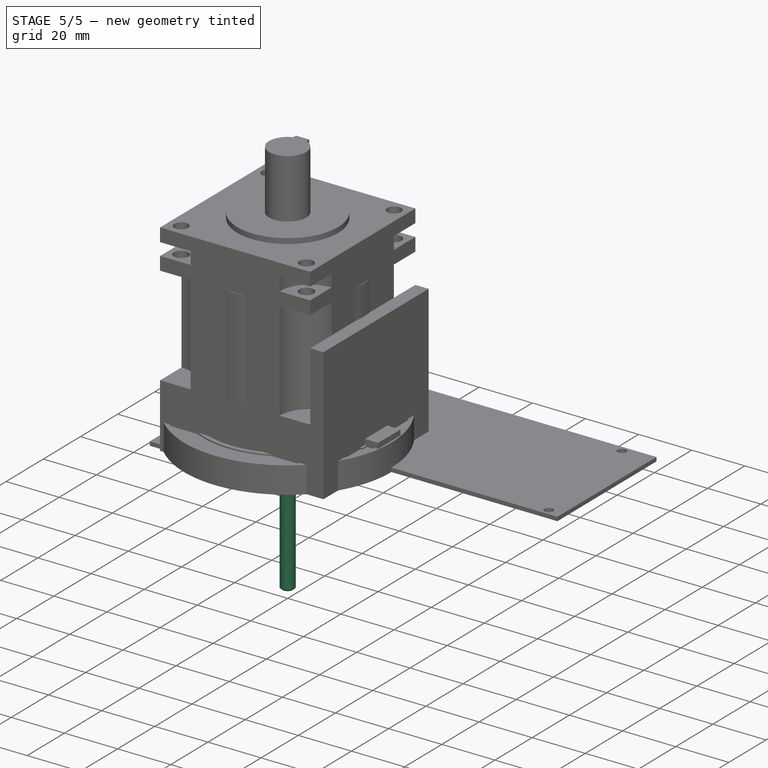
[diagram: stage 5 of 5 — iso view after this stage's code; geometry added in this stage tinted green]
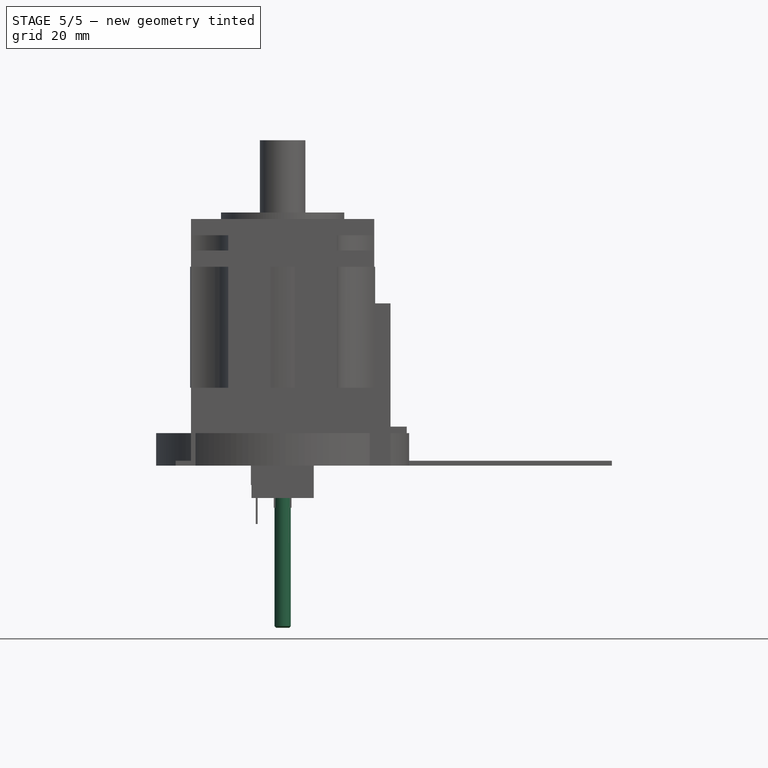
[diagram: stage 5 of 5 — front view after this stage's code; geometry added in this stage tinted green]
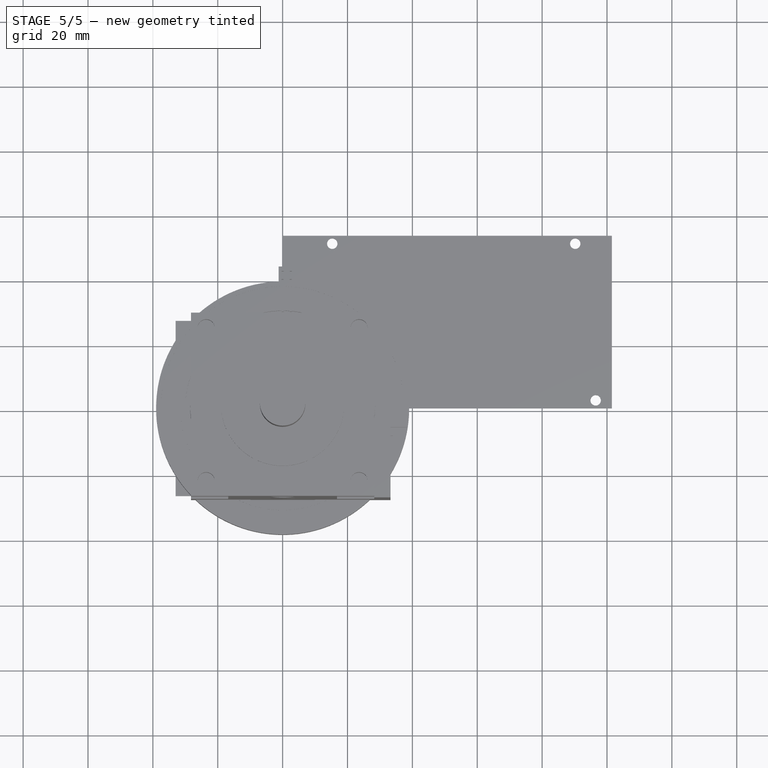
[diagram: stage 5 of 5 — top view after this stage's code; geometry added in this stage tinted green]
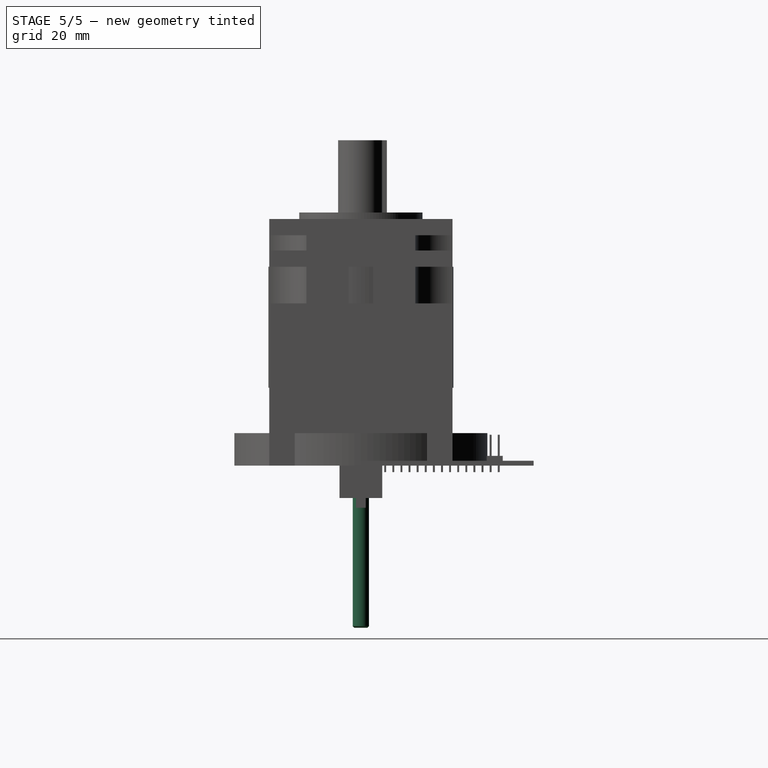
[diagram: stage 5 of 5 — right view after this stage's code; geometry added in this stage tinted green]
FEATURE [PartDesign::SubShapeBinder] Binder005  label="BIND_S_Nema17_20mm_Holes"
  BindCopyOnChange = 0
  BindMode = 0
  ClaimChildren = false
  Context = -> Part [Body001.Binder005.]
  Fuse = false
  MakeFace = true
  OffsetFill = false
  OffsetIntersection = false
  OffsetJoinType = 0
  OffsetOpenResult = false
  PartialLoad = false
  Placement = pos=(0,0,20) rot=(0,0,1;0rad)
  Relative = true
  Support = -> [Sketch004]
  _Version = 2
  expr: .Placement.Base.z = <<S_Nema17_20mm_Side>>.Constraints.BodyHeight
FEATURE [PartDesign::SubShapeBinder] Binder006  label="BIND_S_Nema17_20mm_RaisedFace"
  BindCopyOnChange = 0
  BindMode = 0
  ClaimChildren = false
  Context = -> Part [Body001.Binder006.]
  Fuse = false
  MakeFace = true
  OffsetFill = false
  OffsetIntersection = false
  OffsetJoinType = 0
  OffsetOpenResult = false
  PartialLoad = false
  Placement = pos=(0,0,20) rot=(0,0,1;0rad)
  Relative = true
  Support = -> [Sketch005]
  _Version = 2
  expr: .Placement.Base.z = <<S_Nema17_20mm_Side>>.Constraints.BodyHeight
FEATURE [PartDesign::SubShapeBinder] Binder007  label="BIND_S_Nema17_20mm_Shaft"
  BindCopyOnChange = 0
  BindMode = 0
  ClaimChildren = false
  Context = -> Part [Body001.Binder007.]
  Fuse = false
  MakeFace = true
  OffsetFill = false
  OffsetIntersection = false
  OffsetJoinType = 0
  OffsetOpenResult = false
  PartialLoad = false
  Placement = pos=(0,0,22) rot=(0,0,1;0rad)
  Relative = true
  Support = -> [Sketch006]
  _Version = 2
  expr: .Placement.Base.z = <<S_Nema17_20mm_Side>>.Constraints.BodyHeight + <<S_Nema17_20mm_Side>>.Constraints.CircleInset
FEATURE [PartDesign::Pocket] Pocket001  label="POCKET_Nema17_20mm_Holes"
  BaseFeature = -> Pad
  Direction = (0,0,-1)
  Length = 5
  Length2 = 5
  Profile = -> Binder005
  Type = 0
  expr: Length = <<S_Nema17_20mm_Side>>.Constraints.HoleDepth
FEATURE [PartDesign::Pad] Pad004  label="PAD_Nema17_20mm_RaisedFace"
  BaseFeature = -> Pocket001
  Direction = (0,0,1)
  Length = 2
  Length2 = 10
  Profile = -> Binder006
  Type = 0
  expr: Length = <<S_Nema17_20mm_Side>>.Constraints.CircleInset
FEATURE [PartDesign::Pad] Pad005  label="PAD_Nema17_20mm_Shaft"
  BaseFeature = -> Pad004
  Direction = (0,0,1)
  Length = 18
  Length2 = 10
  Profile = -> Binder007
  Type = 0
  expr: Length = <<S_Nema17_20mm_Side>>.Constraints.ShaftLength
FEATURE [PartDesign::Body] Body007  label="B_Bearing_30mm_42mm_7mm"
  Group = -> [Sketch022,Sketch023,Pad011,Pocket012,Sketch024,Pocket013]
  Origin = -> Origin018
  Tip = -> Pocket013
FEATURE [App::Part] Part007  label="P_Bearing_30mm_42mm_7mm"
  DrawingName = jrobot-3.FCStd
  Group = -> [Body007,LCS_Bearing_78mm_60mm_Bottom005,LCS_Bearing_78mm_60mm_Top005,LCS_Bearing_78mm_60mm_Center005]
  Origin = -> Origin017
  PartDescription = B_Bearing_30mm_42mm_7mm
  PartID = jrobot-3
FEATURE [Sketcher::SketchObject] Sketch025  label="S_Nema17_20mm_Power"
  AttachmentOffset = pos=(0,0,21) rot=(0,0,1;0rad)
  FullyConstrained = true
  MapMode = 5
  Placement = pos=(21,-4.7e-15,4.7e-15) rot=(0.57735,0.57735,0.57735;2.0944rad)
  Support = -> [YZ_Plane005]
  expr: .AttachmentOffset.Base.z = <<S_Nema17_Master_Body>>.Constraints.BodyWidth / 2
  expr: Constraints[11] = .Constraints.PowerWidth / 2
  sketch-geometry (4):
    g0: LineSegment StartX=-4 StartY=8 StartZ=0 EndX=4 EndY=8 EndZ=0
    g1: LineSegment StartX=4 StartY=8 StartZ=0 EndX=4 EndY=2 EndZ=0
    g2: LineSegment StartX=4 StartY=2 StartZ=0 EndX=-4 EndY=2 EndZ=0
    g3: LineSegment StartX=-4 StartY=2 StartZ=0 EndX=-4 EndY=8 EndZ=0
  constraints (12):
    c: Coincident(g0,g1)
    c: Coincident(g1,g2)
    c: Coincident(g2,g3)
    c: Coincident(g3,g0)
    c: Horizontal(g0)
    c: Vertical(g1)
    c: Vertical(g3)
    c: DistanceX(g0,g0) = 8  'PowerWidth'
    c: DistanceY(g1,g1) = 6
    c: DistanceY(g-1,g2) = 2
    c: Horizontal(g2)
    c: DistanceX(g-1,g1) = 4
FEATURE [PartDesign::Pad] Pad012  label="PAD_Nema17_20mm_Power"
  BaseFeature = -> Pad005
  Direction = (1,-2e-16,3e-16)
  Length = 5
  Length2 = 10
  Profile = -> Sketch025
  ReferenceAxis = -> Sketch025 [N_Axis]
  Type = 0
FEATURE [PartDesign::Body] Body002  label="B_Nema17_33mm"
  Group = -> [Binder001,Pad001,Binder002,Pocket,Binder003,Pad002,Sketch002,Binder004,Pad003,Sketch026,Pad013]
  Origin = -> Origin006
  Tip = -> Pad013
FEATURE [App::Part] Part001  label="P_Nema17_33mm"
  DrawingName = standard-parts.FCStd
  Group = -> [Body002,LCS_Nema17_42mm_Base,LCS_Nema17_42mm_MountFace,LCS_Nema17_42mm_ShaftTip,LCS_Nema17_42mm_Hole0,LCS_Nema17_42mm_Hole1,LCS_Nema17_42mm_Hole2,LCS_Nema17_42mm_Hole003]
  Origin = -> Origin002
  PartDescription = B_Nema17_33mm
  PartID = standard-parts
FEATURE [App::DocumentObjectGroup] Group002  label="Group_Nema17"
  Group = -> [Group001,Part,Part001]
FEATURE [Sketcher::SketchObject] Sketch027  label="S_Belt_Idler_GT2_6mm_5mm_Profile"
  FullyConstrained = true
  MapMode = 5
  Placement = pos=(0,0,0) rot=(0.57735,0.57735,0.57735;2.0944rad)
  Support = -> [YZ_Plane020]
  sketch-geometry (8):
    g0: LineSegment StartX=2.5 StartY=0 StartZ=0 EndX=2.5 EndY=8.5 EndZ=0
    g1: LineSegment StartX=2.5 StartY=8.5 StartZ=0 EndX=9 EndY=8.5 EndZ=0
    g2: LineSegment StartX=9 StartY=8.5 StartZ=0 EndX=9 EndY=7.5 EndZ=0
    g3: LineSegment StartX=9 StartY=7.5 StartZ=0 EndX=6.5 EndY=7.5 EndZ=0
    g4: LineSegment StartX=6.5 StartY=7.5 StartZ=0 EndX=6.5 EndY=1 EndZ=0
    g5: LineSegment StartX=6.5 StartY=1 StartZ=0 EndX=9 EndY=1 EndZ=0
    g6: LineSegment StartX=9 StartY=1 StartZ=0 EndX=9 EndY=0 EndZ=0
    g7: LineSegment StartX=9 StartY=0 StartZ=0 EndX=2.5 EndY=0 EndZ=0
  constraints (24):
    c: PointOnObject(g0,g-1)
    c: Vertical(g0)
    c: Coincident(g0,g1)
    c: Horizontal(g1)
    c: Coincident(g1,g2)
    c: Vertical(g2)
    c: Coincident(g2,g3)
    c: Horizontal(g3)
    c: Coincident(g3,g4)
    c: Vertical(g4)
    c: Coincident(g4,g5)
    c: Horizontal(g5)
    c: Coincident(g5,g6)
    c: PointOnObject(g6,g-1)
    c: Vertical(g6)
    c: Coincident(g6,g7)
    c: Coincident(g7,g0)
    c: DistanceY(g5,g2) = 6.5  'Height'
    c: DistanceX(g-1,g6) = 9
    c: DistanceX(g-1,g4) = 6.5
    c: DistanceX(g-1,g0) = 2.5
    c: Vertical(g2,g5)
    c: Equal(g2,g6)
    c: DistanceY(g2,g1) = 1  'EdgeHeight'
FEATURE [PartDesign::Revolution] Revolution  label="REV_Belt_Idler_GT2_6mm_5mm_Body"
  Angle = 360
  Axis = (-2e-16,3e-16,1)
  Base = (0,0,0)
  Placement = pos=(0,0,0) rot=(0.57735,0.57735,0.57735;2.0944rad)
  Profile = -> Sketch027
  ReferenceAxis = -> Sketch027 [V_Axis]
  Reversed = true
FEATURE [PartDesign::Body] Body008  label="B_Belt_Idler_GT2_6mm_5mm"
  Group = -> [Sketch027,Revolution]
  Origin = -> Origin020
  Tip = -> Revolution
FEATURE [Sketcher::SketchObject] Sketch028  label="S_Belt_Idler_GT2_10mm_5mm_Profile"
  FullyConstrained = true
  MapMode = 5
  Placement = pos=(0,0,0) rot=(0.57735,0.57735,0.57735;2.0944rad)
  Support = -> [YZ_Plane022]
  sketch-geometry (8):
    g0: LineSegment StartX=2.5 StartY=0 StartZ=0 EndX=2.5 EndY=13 EndZ=0
    g1: LineSegment StartX=2.5 StartY=13 StartZ=0 EndX=9 EndY=13 EndZ=0
    g2: LineSegment StartX=9 StartY=13 StartZ=0 EndX=9 EndY=12 EndZ=0
    g3: LineSegment StartX=9 StartY=12 StartZ=0 EndX=6.5 EndY=12 EndZ=0
    g4: LineSegment StartX=6.5 StartY=12 StartZ=0 EndX=6.5 EndY=1 EndZ=0
    g5: LineSegment StartX=6.5 StartY=1 StartZ=0 EndX=9 EndY=1 EndZ=0
    g6: LineSegment StartX=9 StartY=1 StartZ=0 EndX=9 EndY=0 EndZ=0
    g7: LineSegment StartX=9 StartY=0 StartZ=0 EndX=2.5 EndY=0 EndZ=0
  constraints (24):
    c: PointOnObject(g0,g-1)
    c: Vertical(g0)
    c: Coincident(g0,g1)
    c: Horizontal(g1)
    c: Coincident(g1,g2)
    c: Vertical(g2)
    c: Coincident(g2,g3)
    c: Horizontal(g3)
    c: Coincident(g3,g4)
    c: Vertical(g4)
    c: Coincident(g4,g5)
    c: Horizontal(g5)
    c: Coincident(g5,g6)
    c: PointOnObject(g6,g-1)
    c: Vertical(g6)
    c: Coincident(g6,g7)
    c: Coincident(g7,g0)
    c: DistanceY(g5,g2) = 11  'Height'
    c: DistanceX(g-1,g6) = 9
    c: DistanceX(g-1,g4) = 6.5
    c: DistanceX(g-1,g0) = 2.5
    c: Vertical(g2,g5)
    c: Equal(g2,g6)
    c: DistanceY(g2,g1) = 1  'EdgeHeight'
FEATURE [PartDesign::Revolution] Revolution001  label="REV_Belt_Idler_GT2_10mm_5mm"
  Angle = 360
  Axis = (-2e-16,3e-16,1)
  Base = (0,0,0)
  Placement = pos=(0,0,0) rot=(0.57735,0.57735,0.57735;2.0944rad)
  Profile = -> Sketch028
  ReferenceAxis = -> Sketch028 [V_Axis]
  Reversed = true
FEATURE [PartDesign::Body] Body009  label="B_Belt_Idler_GT2_10mm_5mm"
  Group = -> [Sketch028,Revolution001]
  Origin = -> Origin022
  Tip = -> Revolution001
FEATURE [PartDesign::CoordinateSystem] LCS_Belt_Idler_GT2_10mm_Bottom
  AttacherType = Attacher::AttachEngine3D
FEATURE [PartDesign::CoordinateSystem] LCS_Belt_Idler_GT2_10mm_Top
  AttacherType = Attacher::AttachEngine3D
  Placement = pos=(0,0,13) rot=(0,0,1;0rad)
  expr: .Placement.Base.z = <<S_Belt_Idler_GT2_10mm_5mm_Profile>>.Constraints.Height + 2 * <<S_Belt_Idler_GT2_10mm_5mm_Profile>>.Constraints.EdgeHeight
FEATURE [App::Part] Part009  label="P_Belt_Idler_GT2_10mm_5mm"
  DrawingName = standard-parts.FCStd
  Group = -> [Body009,LCS_Belt_Idler_GT2_10mm_Bottom,LCS_Belt_Idler_GT2_10mm_Top]
  Origin = -> Origin021
  PartDescription = B_Belt_Idler_GT2_10mm_5mm
  PartID = standard-parts
FEATURE [PartDesign::CoordinateSystem] LCS_Belt_Idler_GT2_6mm_5mm_Bottom
  AttacherType = Attacher::AttachEngine3D
FEATURE [PartDesign::CoordinateSystem] LCS_Belt_Idler_GT2_6mm_5mm_Top
  AttacherType = Attacher::AttachEngine3D
  Placement = pos=(0,0,8.5) rot=(0,0,1;0rad)
  expr: .Placement.Base.z = <<S_Belt_Idler_GT2_6mm_5mm_Profile>>.Constraints.Height + 2 * <<S_Belt_Idler_GT2_6mm_5mm_Profile>>.Constraints.EdgeHeight
FEATURE [PartDesign::CoordinateSystem] LCS_Belt_Idler_GT2_6mm_5mm_Center
  AttacherType = Attacher::AttachEngine3D
  Placement = pos=(0,0,4.25) rot=(0,0,1;0rad)
  expr: .Placement.Base.z = (<<S_Belt_Idler_GT2_6mm_5mm_Profile>>.Constraints.Height + 2 * <<S_Belt_Idler_GT2_6mm_5mm_Profile>>.Constraints.EdgeHeight) / 2
FEATURE [App::Part] Part008  label="P_Belt_Idler_GT2_6mm_5mm"
  DrawingName = standard-parts.FCStd
  Group = -> [Body008,LCS_Belt_Idler_GT2_6mm_5mm_Bottom,LCS_Belt_Idler_GT2_6mm_5mm_Top,LCS_Belt_Idler_GT2_6mm_5mm_Center]
  Origin = -> Origin019
  PartDescription = B_Belt_Idler_GT2_6mm_5mm
  PartID = standard-parts
FEATURE [App::DocumentObjectGroup] Group005  label="Idlers"
  Group = -> [Part008,Part009]
FEATURE [Sketcher::SketchObject] Sketch029  label="S_B_Belt_Sprocket_GT2_6mm_5mm_Tooth"
  AttachmentOffset = pos=(0,0,1) rot=(0,0,1;0rad)
  FullyConstrained = true
  MapMode = 5
  Placement = pos=(0,0,1) rot=(0,0,1;0rad)
  Support = -> [XY_Plane024]
  expr: Constraints[1] = <<S_Belt_Sprocket_GT2_6mm_5mm_Profile>>.Constraints.OuterRadius
  sketch-geometry (4):
    g0: ArcOfCircle CenterX=6.03 CenterY=0 CenterZ=0 NormalX=0 NormalY=0 NormalZ=1 AngleXU=0 Radius=0.5 StartAngle=4.18879 EndAngle=8.37758
    g1: GeomPoint X=5.78 Y=0.433013 Z=0
    g2: GeomPoint X=5.78 Y=-0.433013 Z=0
    g3: LineSegment StartX=5.78 StartY=0.433013 StartZ=0 EndX=5.78 EndY=-0.433013 EndZ=0
  constraints (9):
    c: PointOnObject(g0,g-1)
    c: DistanceX(g-1,g0) = 6.03
    c: Diameter(g0) = 1
    c: Coincident(g3,g1)
    c: Coincident(g3,g2)
    c: Vertical(g3)
    c: Coincident(g0,g3)
    c: Coincident(g0,g3)
    c: DistanceX(g0,g0) = 0.25
FEATURE [Sketcher::SketchObject] Sketch031  label="S_Belt_Sprocket_GT2_6mm_5mm_Profile"
  FullyConstrained = true
  MapMode = 5
  Placement = pos=(0,0,0) rot=(0.57735,0.57735,0.57735;2.0944rad)
  Support = -> [YZ_Plane024]
  sketch-geometry (8):
    g0: LineSegment StartX=2.5 StartY=0 StartZ=0 EndX=7.03 EndY=0 EndZ=0
    g1: LineSegment StartX=7.03 StartY=0 StartZ=0 EndX=7.03 EndY=1 EndZ=0
    g2: LineSegment StartX=7.03 StartY=1 StartZ=0 EndX=6.03 EndY=1 EndZ=0
    g3: LineSegment StartX=6.03 StartY=1 StartZ=0 EndX=6.03 EndY=7.5 EndZ=0
    g4: LineSegment StartX=6.03 StartY=7.5 StartZ=0 EndX=7.03 EndY=7.5 EndZ=0
    g5: LineSegment StartX=7.03 StartY=7.5 StartZ=0 EndX=7.03 EndY=8.5 EndZ=0
    g6: LineSegment StartX=7.03 StartY=8.5 StartZ=0 EndX=2.5 EndY=8.5 EndZ=0
    g7: LineSegment StartX=2.5 StartY=8.5 StartZ=0 EndX=2.5 EndY=0 EndZ=0
  constraints (24):
    c: Coincident(g0,g1)
    c: Vertical(g1)
    c: Coincident(g1,g2)
    c: Horizontal(g2)
    c: Coincident(g2,g3)
    c: Vertical(g3)
    c: Coincident(g3,g4)
    c: Horizontal(g4)
    c: Coincident(g4,g5)
    c: Coincident(g5,g6)
    c: Horizontal(g6)
    c: Coincident(g6,g7)
    c: Coincident(g7,g0)
    c: Vertical(g7)
    c: Vertical(g5)
    c: Vertical(g1,g4)
    c: Equal(g5,g1)
    c: Horizontal(g0)
    c: Horizontal(g-1,g0)
    c: DistanceX(g-1,g0) = 2.5  'InnerRadius'
    c: DistanceY(g1,g1) = 1  'EdgeHeight'
    c: DistanceY(g1,g4) = 6.5  'Height'
    c: DistanceX(g-1,g2) = 6.03  'OuterRadius'
    c: DistanceX(g2,g1) = 1
FEATURE [PartDesign::Revolution] Revolution002  label="REVOLVE_Belt_Sprocket_GT2_6mm_5mm_Profile"
  Angle = 360
  Axis = (-2e-16,3e-16,1)
  Base = (0,0,0)
  Placement = pos=(0,0,0) rot=(0.57735,0.57735,0.57735;2.0944rad)
  Profile = -> Sketch031
  ReferenceAxis = -> Sketch031 [V_Axis]
  Reversed = true
FEATURE [PartDesign::Pad] Pad014  label="PAD_Belt_Sprocket_GT2_6mm_5mm_Tooth"
  BaseFeature = -> Revolution002
  Direction = (0,0,1)
  Length = 6.5
  Length2 = 10
  Placement = pos=(0,0,0) rot=(0.57735,0.57735,0.57735;2.0944rad)
  Profile = -> Sketch029
  ReferenceAxis = -> Sketch029 [N_Axis]
  Type = 0
FEATURE [PartDesign::PolarPattern] PolarPattern  label="POLAR_Belt_Sprocket_GT2_6mm_5mm_Teeth"
  Angle = 360
  Axis = -> Sketch029 [N_Axis]
  BaseFeature = -> Pad014
  Occurrences = 19
  Originals = -> [Pad014]
  Placement = pos=(0,0,0) rot=(0.57735,0.57735,0.57735;2.0944rad)
FEATURE [PartDesign::CoordinateSystem] LCS_Belt_Sprocket_GT2_6mm_5mm  label="LCS_Belt_Sprocket_GT2_6mm_5mm_Bottom"
  AttacherType = Attacher::AttachEngine3D
FEATURE [PartDesign::CoordinateSystem] LCS_Belt_Sprocket_GT2_6mm_5mm_Top
  AttacherType = Attacher::AttachEngine3D
  Placement = pos=(0,0,8.5) rot=(0,0,1;0rad)
  expr: .Placement.Base.z = Sketch031.Constraints.Height + 2 * <<S_Belt_Sprocket_GT2_6mm_5mm_Profile>>.Constraints.EdgeHeight
FEATURE [PartDesign::CoordinateSystem] LCS_Belt_Sprocket_GT2_6mm_5mm_Center
  AttacherType = Attacher::AttachEngine3D
  Placement = pos=(0,0,4.25) rot=(0,0,1;0rad)
  expr: .Placement.Base.z = (Sketch031.Constraints.Height + 2 * <<S_Belt_Sprocket_GT2_6mm_5mm_Profile>>.Constraints.EdgeHeight) / 2
FEATURE [Sketcher::SketchObject] Sketch032  label="S_Belt_Sprocket_GT2_6mm_5mm_ShaftHolder"
  FullyConstrained = true
  MapMode = 5
  Support = -> [XY_Plane024]
  expr: Constraints[2] = <<S_Belt_Sprocket_GT2_6mm_5mm_Profile>>.Constraints.InnerRadius - 0.5 mm
  expr: Constraints[3] = <<S_Belt_Sprocket_GT2_6mm_5mm_Profile>>.Constraints.InnerRadius * 2
  sketch-geometry (2):
    g0: ArcOfCircle CenterX=0 CenterY=0 CenterZ=0 NormalX=0 NormalY=0 NormalZ=1 AngleXU=0 Radius=2.5 StartAngle=5.63968 EndAngle=6.92669
    g1: LineSegment StartX=2 StartY=1.5 StartZ=0 EndX=2 EndY=-1.5 EndZ=0
  constraints (6):
    c: Coincident(g0,g-1)
    c: Vertical(g1)
    c: DistanceX(g0,g1) = 2
    c: Diameter(g0) = 5
    c: Coincident(g0,g1)
    c: Coincident(g0,g1)
FEATURE [PartDesign::Pad] Pad015  label="PAD_Belt_Sprocket_G2_6mm_5mm_ShaftHolder"
  BaseFeature = -> PolarPattern
  Direction = (0,0,1)
  Length = 8.5
  Length2 = 10
  Placement = pos=(0,0,0) rot=(0.57735,0.57735,0.57735;2.0944rad)
  Profile = -> Sketch032
  ReferenceAxis = -> Sketch032 [N_Axis]
  Type = 0
  expr: Length = Sketch031.Constraints.Height + <<S_Belt_Sprocket_GT2_6mm_5mm_Profile>>.Constraints.EdgeHeight * 2
FEATURE [PartDesign::Body] Body015  label="B_Nema23_MountBracket"
  Group = -> [Binder013,Pad030,Binder014,Binder015,Pocket032,Pocket033,Sketch062,Pad031,Sketch063,Pad032]
  Origin = -> Origin038
  Tip = -> Pad032
FEATURE [App::Part] Part016  label="P_Nema23_MountBracket"
  DrawingName = standard-parts.FCStd
  Group = -> [Body015]
  Origin = -> Origin037
  PartDescription = B_Nema23_MountBracket
  PartID = standard-parts
FEATURE [Sketcher::SketchObject] Sketch064  label="S_LimitSwitch_ClearanceReference"
  ExternalGeometry = -> [S_LimitSwitch,Sketch054,Sketch053]
  FullyConstrained = false
  MapMode = 5
  Support = -> [XY_Plane035]
  sketch-geometry (5):
    g0: Circle CenterX=0.040391 CenterY=49.8 CenterZ=0 NormalX=0 NormalY=0 NormalZ=1 AngleXU=0 Radius=40
    g1: GeomPoint X=0 Y=-8.5 Z=0
    g2: GeomPoint X=0 Y=8.5 Z=0
    g3: GeomPoint X=26.1537 Y=80.1001 Z=0
    g4: GeomPoint X=0 Y=49.8 Z=0
  constraints (10):
    c: Radius(g0) = 40
    c: PointOnObject(g1,g-3)
    c: PointOnObject(g1,g-2)
    c: PointOnObject(g2,g-4)
    c: PointOnObject(g2,g-2)
    c: PointOnObject(g3,g0)
    c: DistanceX(g-5,g-1) = 2.75
    c: PointOnObject(g4,g-2)
    c: Horizontal(g4,g0)
    c: DistanceY(g-5,g4) = 44
FEATURE [PartDesign::Body] Body_LimitSwitch  label="B_LimitSwitch"
  Group = -> [LCS_Origin008,S_LimitSwitch,Pad024,Sketch053,Pad025,Sketch054,Pocket029,Sketch064]
  Origin = -> Origin035
  Tip = -> Pocket029
FEATURE [Part::FeaturePython] Screw002  label="M3x10-Screw"  # Fasteners workbench fastener (typed FeaturePython)
  diameter = 4
  invert = false
  leftHanded = false
  length = 3
  lengthCustom = 10
  matchOuter = false
  offset = 0
  thread = false
  type = 70
FEATURE [Part::FeaturePython] Screw003  label="M3x12-Screw"  # Fasteners workbench fastener (typed FeaturePython)
  diameter = 4
  invert = false
  leftHanded = false
  length = 4
  lengthCustom = 12
  matchOuter = false
  offset = 0
  thread = false
  type = 70
FEATURE [Part::FeaturePython] Screw004  label="M3x14-Screw"  # Fasteners workbench fastener (typed FeaturePython)
  diameter = 4
  invert = false
  leftHanded = false
  length = 5
  lengthCustom = 14
  matchOuter = false
  offset = 0
  thread = false
  type = 70
FEATURE [Part::FeaturePython] Screw  label="M3x16-Screw"  # Fasteners workbench fastener (typed FeaturePython)
  diameter = 4
  invert = false
  leftHanded = false
  length = 6
  lengthCustom = 16
  matchOuter = false
  offset = 0
  thread = false
  type = 70
FEATURE [Part::FeaturePython] Screw005  label="M3x20-Screw"  # Fasteners workbench fastener (typed FeaturePython)
  diameter = 4
  invert = false
  leftHanded = false
  length = 7
  lengthCustom = 20
  matchOuter = false
  offset = 0
  thread = false
  type = 70
FEATURE [Part::FeaturePython] Screw006  label="M3x25-Screw"  # Fasteners workbench fastener (typed FeaturePython)
  diameter = 4
  invert = false
  leftHanded = false
  length = 8
  lengthCustom = 25
  matchOuter = false
  offset = 0
  thread = false
  type = 70
FEATURE [PartDesign::CoordinateSystem] LCS_M3_10  label="LCS_M3_10_Screw"
  AttacherType = Attacher::AttachEngine3D
FEATURE [PartDesign::CoordinateSystem] LCS_M3_16_Screw
  AttacherType = Attacher::AttachEngine3D
FEATURE [PartDesign::CoordinateSystem] LCS_M3_14_Screw
  AttacherType = Attacher::AttachEngine3D
FEATURE [PartDesign::CoordinateSystem] LCS_M3_12_Screw
  AttacherType = Attacher::AttachEngine3D
FEATURE [Part::FeaturePython] Screw007  label="M3x30-Screw"  # Fasteners workbench fastener (typed FeaturePython)
  diameter = 4
  invert = false
  leftHanded = false
  length = 9
  lengthCustom = 30
  matchOuter = false
  offset = 0
  thread = false
  type = 70
FEATURE [Part::FeaturePython] Nut  label="M3-Nut"  # Fasteners workbench fastener (typed FeaturePython)
  diameter = 4
  invert = false
  leftHanded = false
  matchOuter = false
  offset = 0
  thread = false
  type = 31
FEATURE [PartDesign::CoordinateSystem] LCS_M3_20_Screw
  AttacherType = Attacher::AttachEngine3D
FEATURE [PartDesign::CoordinateSystem] LCS_M3_25_Screw
  AttacherType = Attacher::AttachEngine3D
FEATURE [PartDesign::CoordinateSystem] LCS_M3_30_Screw
  AttacherType = Attacher::AttachEngine3D
FEATURE [PartDesign::CoordinateSystem] LCS_M3_Nut
  AttacherType = Attacher::AttachEngine3D
FEATURE [PartDesign::CoordinateSystem] LCS_LimitSwitch_Hole0_Top
  AttacherType = Attacher::AttachEngine3D
  MapMode = 11
  Placement = pos=(-2.75,5.8,2) rot=(0,0,1;1.5708rad)
  Support = -> [Pocket029]
FEATURE [PartDesign::CoordinateSystem] LCS_LimitSwitch_Hole1_Top
  AttacherType = Attacher::AttachEngine3D
  MapMode = 11
  Placement = pos=(16.5,5.8,2) rot=(0,0,1;1.5708rad)
  Support = -> [Pocket029]
FEATURE [App::Part] Part014  label="P_LimitSwitch"
  DrawingName = standard-parts.FCStd
  Group = -> [Body_LimitSwitch,LCS_LimitSwitch_Hole0,LCS_LimitSwitch_Hole1,LCS_LimitSwitch_Hole0_Top,LCS_LimitSwitch_Hole1_Top]
  Origin = -> Origin034
  PartDescription = B_LimitSwitch
  PartID = standard-parts
FEATURE [Part::FeaturePython] Screw008  label="M5x8-Screw"  # Fasteners workbench fastener (typed FeaturePython)
  diameter = 6
  invert = false
  leftHanded = false
  length = 0
  lengthCustom = 8
  matchOuter = false
  offset = 0
  thread = false
  type = 70
FEATURE [PartDesign::CoordinateSystem] LCS_M5_10_Screw
  AttacherType = Attacher::AttachEngine3D
FEATURE [PartDesign::CoordinateSystem] LCS_M5_10_Screw001
  AttacherType = Attacher::AttachEngine3D
FEATURE [Part::FeaturePython] Screw009  label="M5x10-Screw"  # Fasteners workbench fastener (typed FeaturePython)
  diameter = 6
  invert = false
  leftHanded = false
  length = 1
  lengthCustom = 10
  matchOuter = false
  offset = 0
  thread = false
  type = 70
FEATURE [Part::FeaturePython] Screw010  label="M5x12-Screw"  # Fasteners workbench fastener (typed FeaturePython)
  diameter = 6
  invert = false
  leftHanded = false
  length = 2
  lengthCustom = 12
  matchOuter = false
  offset = 0
  thread = false
  type = 70
FEATURE [PartDesign::CoordinateSystem] LCS_M5_12_Screw
  AttacherType = Attacher::AttachEngine3D
FEATURE [PartDesign::CoordinateSystem] LCS_M5_14_Screw
  AttacherType = Attacher::AttachEngine3D
FEATURE [Part::FeaturePython] Screw011  label="M5x14-Screw"  # Fasteners workbench fastener (typed FeaturePython)
  diameter = 6
  invert = false
  leftHanded = false
  length = 3
  lengthCustom = 14
  matchOuter = false
  offset = 0
  thread = false
  type = 70
FEATURE [PartDesign::CoordinateSystem] LCS_M5_17_Screw  label="LCS_M5_16_Screw"
  AttacherType = Attacher::AttachEngine3D
FEATURE [Part::FeaturePython] Screw012  label="M5x16-Screw"  # Fasteners workbench fastener (typed FeaturePython)
  diameter = 6
  invert = false
  leftHanded = false
  length = 4
  lengthCustom = 16
  matchOuter = false
  offset = 0
  thread = false
  type = 70
FEATURE [Part::FeaturePython] Screw013  label="M5x20-Screw"  # Fasteners workbench fastener (typed FeaturePython)
  diameter = 6
  invert = false
  leftHanded = false
  length = 5
  lengthCustom = 20
  matchOuter = false
  offset = 0
  thread = false
  type = 70
FEATURE [PartDesign::CoordinateSystem] LCS_M5_20_Screw
  AttacherType = Attacher::AttachEngine3D
FEATURE [Part::FeaturePython] Screw014  label="M5x25-Screw"  # Fasteners workbench fastener (typed FeaturePython)
  diameter = 6
  invert = false
  leftHanded = false
  length = 6
  lengthCustom = 25
  matchOuter = false
  offset = 0
  thread = false
  type = 70
FEATURE [PartDesign::CoordinateSystem] LCS_M5_25_Screw
  AttacherType = Attacher::AttachEngine3D
FEATURE [Part::FeaturePython] Screw015  label="M5x30-Screw"  # Fasteners workbench fastener (typed FeaturePython)
  diameter = 6
  invert = false
  leftHanded = false
  length = 7
  lengthCustom = 30
  matchOuter = false
  offset = 0
  thread = false
  type = 70
FEATURE [PartDesign::CoordinateSystem] LCS_M5_30_Screw
  AttacherType = Attacher::AttachEngine3D
FEATURE [Part::FeaturePython] Screw016  label="M5x35-Screw"  # Fasteners workbench fastener (typed FeaturePython)
  diameter = 6
  invert = false
  leftHanded = false
  length = 8
  lengthCustom = 35
  matchOuter = false
  offset = 0
  thread = false
  type = 70
FEATURE [PartDesign::CoordinateSystem] LCS_M5_35_Screw
  AttacherType = Attacher::AttachEngine3D
FEATURE [Part::FeaturePython] Screw017  label="M5x40-Screw"  # Fasteners workbench fastener (typed FeaturePython)
  diameter = 6
  invert = false
  leftHanded = false
  length = 9
  lengthCustom = 40
  matchOuter = false
  offset = 0
  thread = false
  type = 70
FEATURE [PartDesign::CoordinateSystem] LCS_M5_40_Screw
  AttacherType = Attacher::AttachEngine3D
FEATURE [Part::FeaturePython] Screw018  label="M5x45-Screw"  # Fasteners workbench fastener (typed FeaturePython)
  diameter = 6
  invert = false
  leftHanded = false
  length = 10
  lengthCustom = 45
  matchOuter = false
  offset = 0
  thread = false
  type = 70
FEATURE [PartDesign::CoordinateSystem] LCS_M5_45_Screw
  AttacherType = Attacher::AttachEngine3D
FEATURE [PartDesign::CoordinateSystem] LCS_M5_45_Screw001  label="LCS_M5_50_Screw"
  AttacherType = Attacher::AttachEngine3D
FEATURE [Part::FeaturePython] Screw019  label="M5x50-Screw"  # Fasteners workbench fastener (typed FeaturePython)
  diameter = 6
  invert = false
  leftHanded = false
  length = 11
  lengthCustom = 50
  matchOuter = false
  offset = 0
  thread = false
  type = 70
FEATURE [PartDesign::CoordinateSystem] LCS_M3_Nut001  label="LCS_M5_Nut"
  AttacherType = Attacher::AttachEngine3D
FEATURE [Part::FeaturePython] Nut001  label="M5-Nut"  # Fasteners workbench fastener (typed FeaturePython)
  diameter = 7
  invert = false
  leftHanded = false
  matchOuter = false
  offset = 0
  thread = false
  type = 31
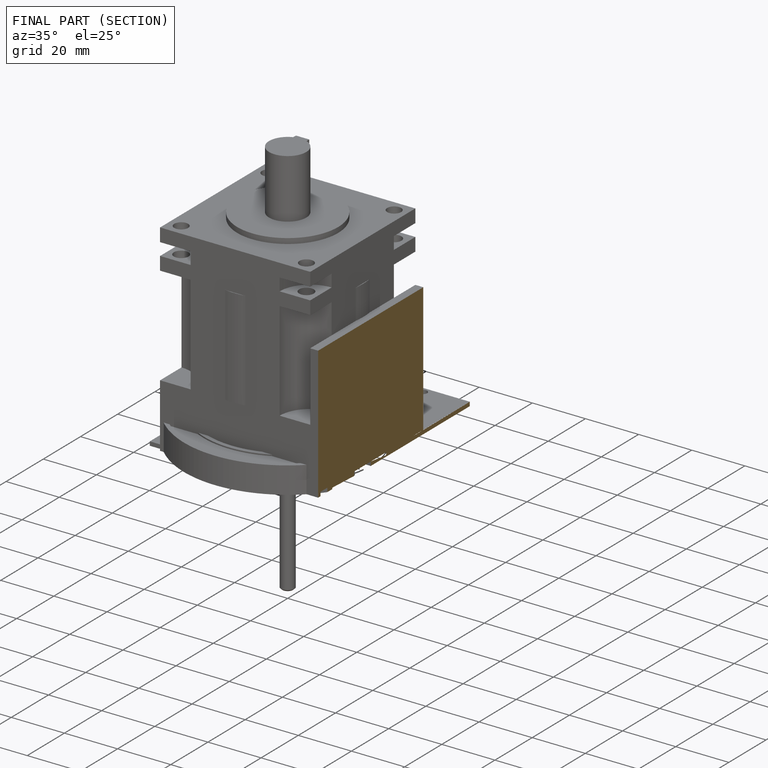
[diagram: finished part — half-section view (interior)]
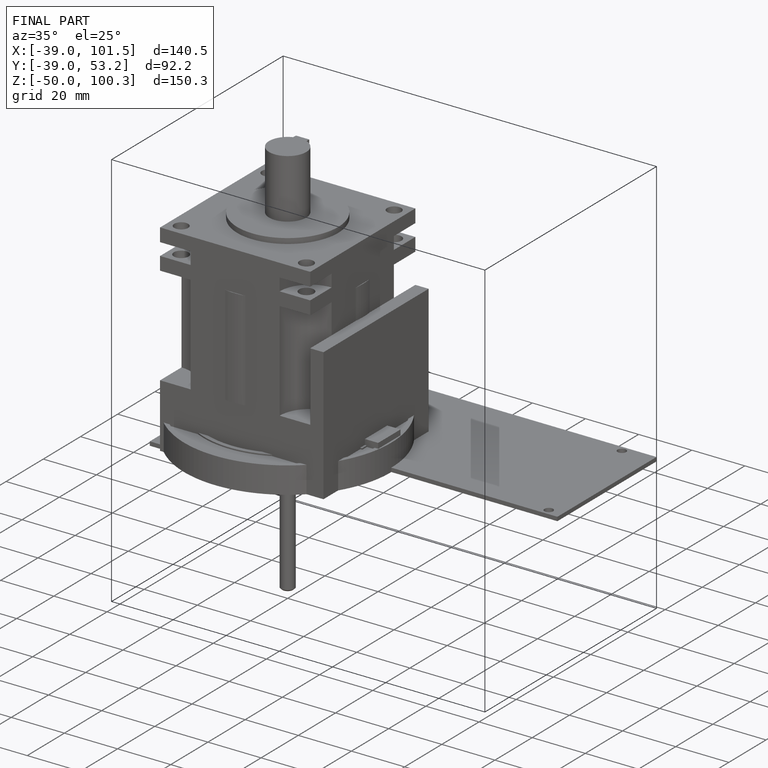
[diagram: finished part — iso view with bounding-box wireframe]
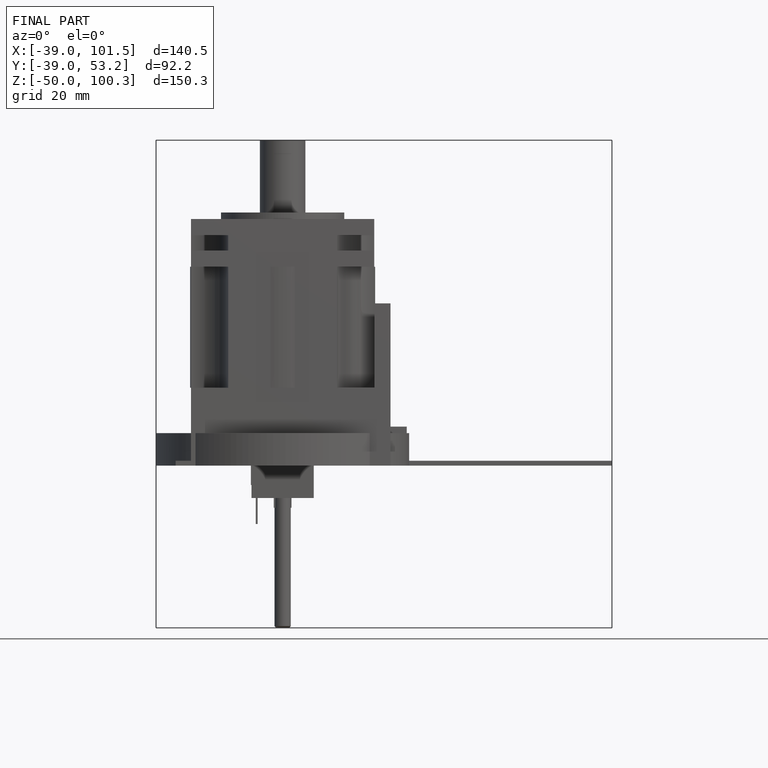
[diagram: finished part — front view with bounding-box wireframe]
